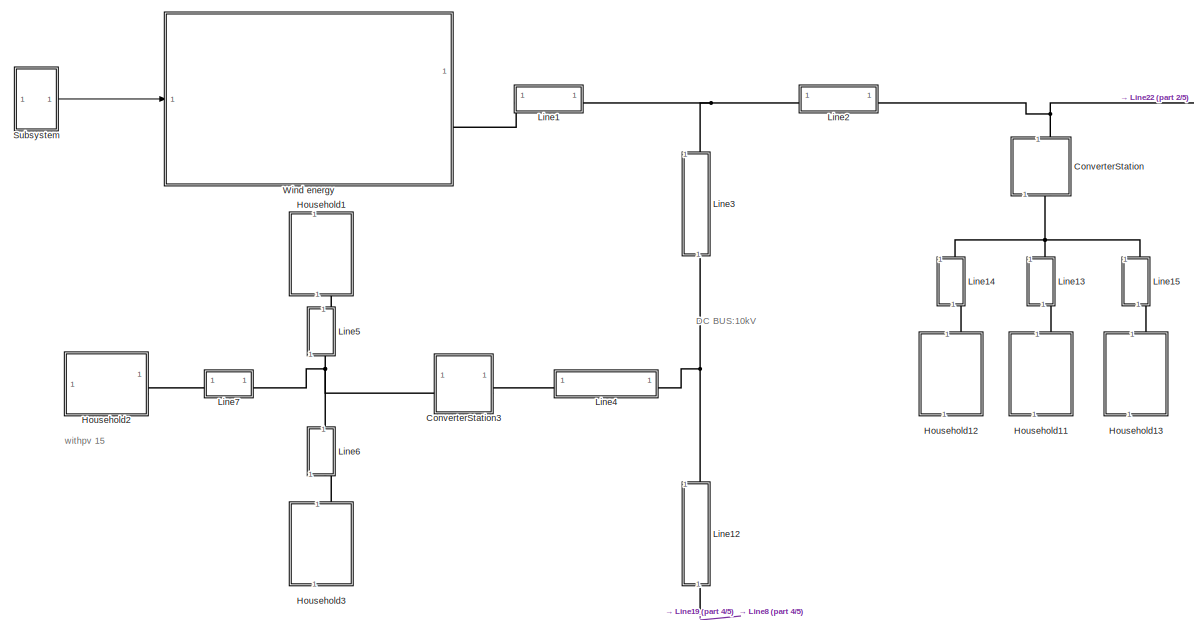
[diagram: root canvas - part 1/5, top center region]
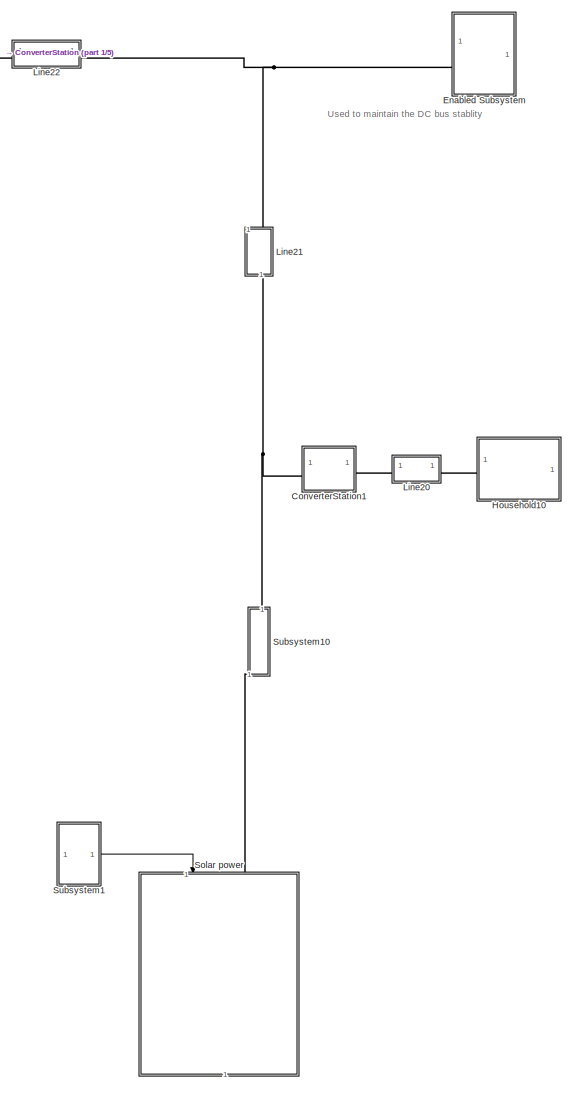
[diagram: root canvas - part 2/5, right side, full height]
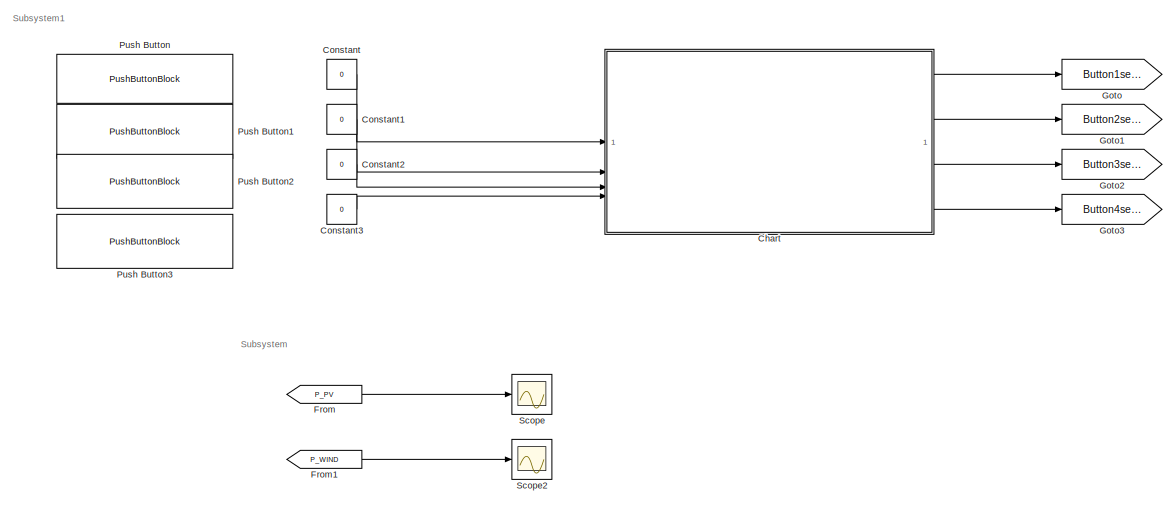
[diagram: root canvas - part 3/5, top left region]
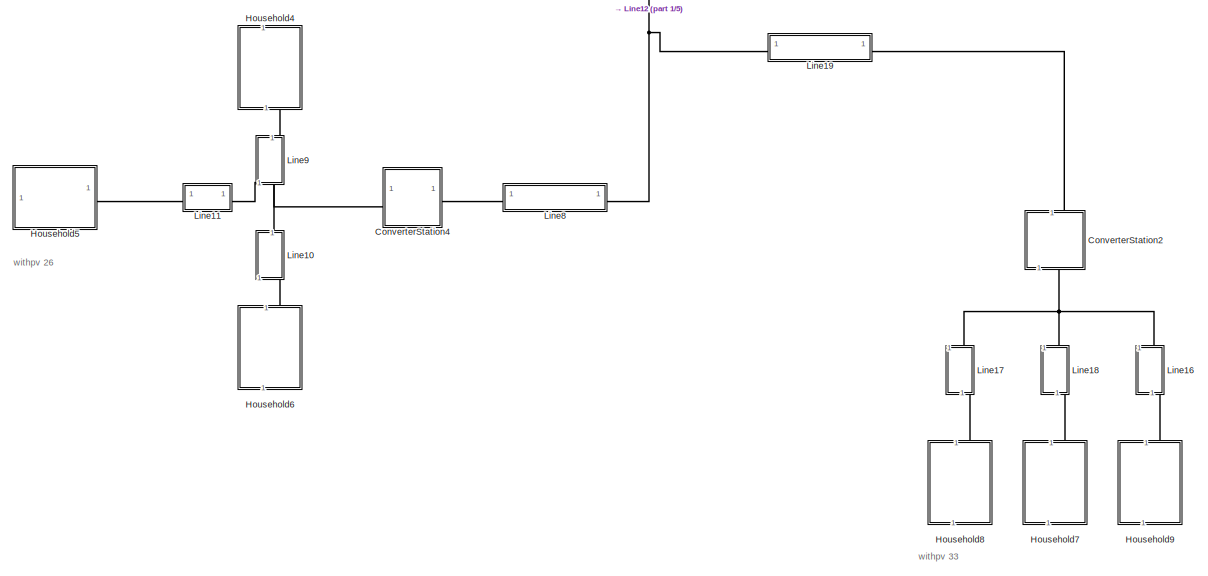
[diagram: root canvas - part 4/5, bottom center region]
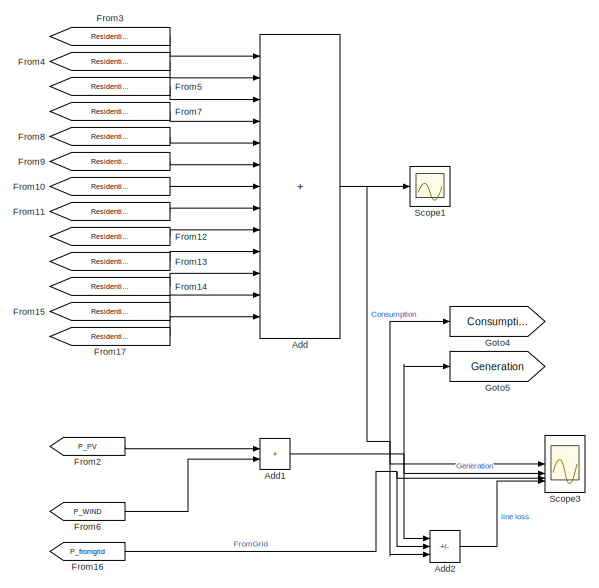
[diagram: root canvas - part 5/5, bottom left region]
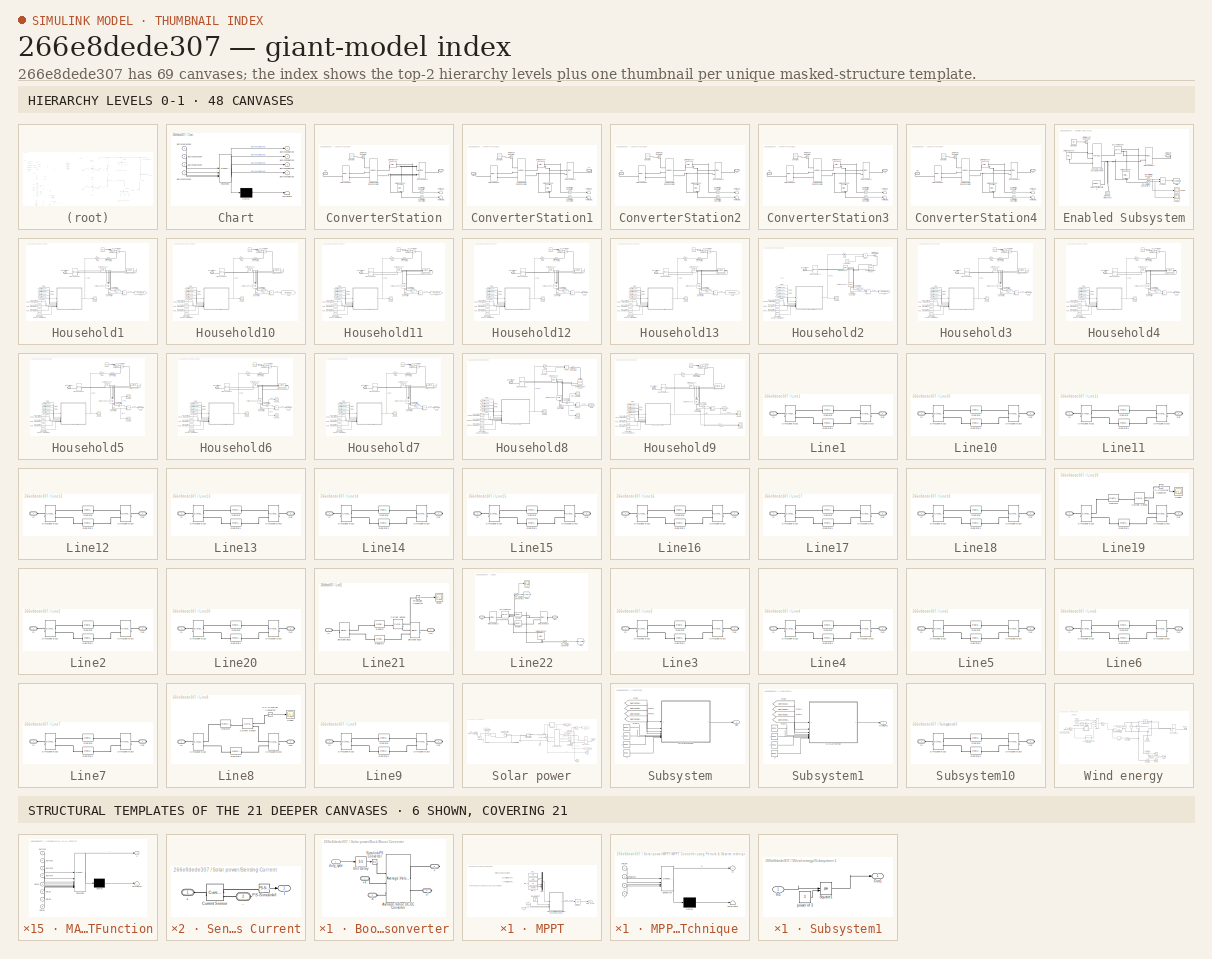
[diagram: thumbnail index - top-2 hierarchy levels (48 canvases) + 6 structural-template representatives of the remaining 21 canvases]
MODEL slx_266e8dede307
KIND model
CONFIG AbsTol = auto
CONFIG EnableMultiTasking = off
CONFIG FixedStep = 0.01
CONFIG MaxStep = auto
CONFIG MinStep = auto
CONFIG RelTol = 1e-3
CONFIG SampleTimeConstraint = Unconstrained
CONFIG SolverName = FixedStepAuto
CONFIG StartTime = 0.0
CONFIG StopTime = 48*4
BLOCK [Sum] Add
  IconShape = rectangular
  Inputs = +++++++++++++
BLOCK [Sum] Add1
  IconShape = rectangular
BLOCK [Sum] Add2
  IconShape = rectangular
  Inputs = ++-
BLOCK [SubSystem] Chart
  ErrorFcn = Stateflow.Translate.translate
  PermitHierarchicalResolution = ExplicitOnly
  SFBlockType = Chart
  TreatAsAtomicUnit = on
BLOCK [Outport] Chart/ Button1selected
BLOCK [Outport] Chart/ Button2selected
  Port = 2
BLOCK [Outport] Chart/ Button3selected
  Port = 3
BLOCK [Outport] Chart/ Button4selected
  Port = 4
BLOCK [Demux] Chart/ Demux 
  Outputs = 1
BLOCK [S-Function] Chart/ SFunction 
  EnableBusSupport = on
  FunctionName = sf_sfun
  PortCounts = [4 5]
  SFcnIsStateOwnerBlock = off
  SFunctionDeploymentMode = off
  Tag = Stateflow S-Function 4
BLOCK [Terminator] Chart/ Terminator 
BLOCK [Inport] Chart/Button1pressed
BLOCK [Inport] Chart/Button2pressed
  Port = 2
BLOCK [Inport] Chart/Button3pressed
  Port = 3
BLOCK [Inport] Chart/Button4pressed
  Port = 4
BLOCK [Constant] Constant
  OutDataTypeStr = boolean
  Value = 0
BLOCK [Constant] Constant1
  OutDataTypeStr = boolean
  Value = 0
BLOCK [Constant] Constant2
  OutDataTypeStr = boolean
  Value = 0
BLOCK [Constant] Constant3
  OutDataTypeStr = boolean
  Value = 0
BLOCK [SubSystem] ConverterStation
  NameLocation = right
BLOCK [Reference] ConverterStation/Average-Value DC-DC Converter  REF=ee_lib/Semiconductors &
Converters/Converters/Average-Value DC-DC
Converter
  SourceBlock = ee_lib/Semiconductors &\nConverters/Converters/Average-Value DC-DC\nConverter
  SourceType = Average-Value DC-DC\nConverter
BLOCK [Constant] ConverterStation/Constant
  Value = LV
BLOCK [Reference] ConverterStation/Current Sensor  REF=fl_lib/Electrical/Electrical Sensors/Current Sensor
  SourceBlock = fl_lib/Electrical/Electrical Sensors/Current Sensor
  SourceType = Current Sensor
BLOCK [PMIOPort] ConverterStation/LV
  NameLocation = top
  Side = Left
BLOCK [PMIOPort] ConverterStation/MV
  Port = 2
  Side = Right
BLOCK [Reference] ConverterStation/PS-Simulink Converter  REF=nesl_utility/PS-Simulink
Converter
  SourceBlock = nesl_utility/PS-Simulink\nConverter
  SourceType = PS-Simulink\nConverter
BLOCK [Reference] ConverterStation/PS-Simulink Converter1  REF=nesl_utility/PS-Simulink
Converter
  SourceBlock = nesl_utility/PS-Simulink\nConverter
  SourceType = PS-Simulink\nConverter
BLOCK [SimscapeBus] ConverterStation/Simscape Bus1
  HierarchyStrings = High;Low
BLOCK [SimscapeBus] ConverterStation/Simscape Bus2
  HierarchyStrings = High;Low
  NameLocation = top
BLOCK [Reference] ConverterStation/Simulink-PS Converter  REF=nesl_utility/Simulink-PS
Converter
  SourceBlock = nesl_utility/Simulink-PS\nConverter
  SourceType = Simulink-PS\nConverter
BLOCK [Terminator] ConverterStation/Terminator
BLOCK [Terminator] ConverterStation/Terminator1
BLOCK [Reference] ConverterStation/Voltage Sensor  REF=fl_lib/Electrical/Electrical Sensors/Voltage Sensor
  NameLocation = right
  SourceBlock = fl_lib/Electrical/Electrical Sensors/Voltage Sensor
  SourceType = Voltage Sensor
BLOCK [SubSystem] ConverterStation1
BLOCK [Reference] ConverterStation1/Average-Value DC-DC Converter  REF=ee_lib/Semiconductors &
Converters/Converters/Average-Value DC-DC
Converter
  SourceBlock = ee_lib/Semiconductors &\nConverters/Converters/Average-Value DC-DC\nConverter
  SourceType = Average-Value DC-DC\nConverter
BLOCK [Constant] ConverterStation1/Constant
  Value = LV
BLOCK [Reference] ConverterStation1/Current Sensor  REF=fl_lib/Electrical/Electrical Sensors/Current Sensor
  SourceBlock = fl_lib/Electrical/Electrical Sensors/Current Sensor
  SourceType = Current Sensor
BLOCK [PMIOPort] ConverterStation1/LV
  NameLocation = top
  Port = 2
  Side = Right
BLOCK [PMIOPort] ConverterStation1/MV
  Side = Left
BLOCK [Reference] ConverterStation1/PS-Simulink Converter  REF=nesl_utility/PS-Simulink
Converter
  SourceBlock = nesl_utility/PS-Simulink\nConverter
  SourceType = PS-Simulink\nConverter
BLOCK [Reference] ConverterStation1/PS-Simulink Converter1  REF=nesl_utility/PS-Simulink
Converter
  SourceBlock = nesl_utility/PS-Simulink\nConverter
  SourceType = PS-Simulink\nConverter
BLOCK [SimscapeBus] ConverterStation1/Simscape Bus1
  HierarchyStrings = High;Low
BLOCK [SimscapeBus] ConverterStation1/Simscape Bus2
  HierarchyStrings = High;Low
  NameLocation = top
BLOCK [Reference] ConverterStation1/Simulink-PS Converter  REF=nesl_utility/Simulink-PS
Converter
  SourceBlock = nesl_utility/Simulink-PS\nConverter
  SourceType = Simulink-PS\nConverter
BLOCK [Terminator] ConverterStation1/Terminator
BLOCK [Terminator] ConverterStation1/Terminator1
BLOCK [Reference] ConverterStation1/Voltage Sensor  REF=fl_lib/Electrical/Electrical Sensors/Voltage Sensor
  NameLocation = right
  SourceBlock = fl_lib/Electrical/Electrical Sensors/Voltage Sensor
  SourceType = Voltage Sensor
BLOCK [SubSystem] ConverterStation2
  NameLocation = right
BLOCK [Reference] ConverterStation2/Average-Value DC-DC Converter  REF=ee_lib/Semiconductors &
Converters/Converters/Average-Value DC-DC
Converter
  SourceBlock = ee_lib/Semiconductors &\nConverters/Converters/Average-Value DC-DC\nConverter
  SourceType = Average-Value DC-DC\nConverter
BLOCK [Constant] ConverterStation2/Constant
  Value = LV
BLOCK [Reference] ConverterStation2/Current Sensor  REF=fl_lib/Electrical/Electrical Sensors/Current Sensor
  SourceBlock = fl_lib/Electrical/Electrical Sensors/Current Sensor
  SourceType = Current Sensor
BLOCK [PMIOPort] ConverterStation2/LV
  NameLocation = top
  Side = Left
BLOCK [PMIOPort] ConverterStation2/MV
  Port = 2
  Side = Right
BLOCK [Reference] ConverterStation2/PS-Simulink Converter  REF=nesl_utility/PS-Simulink
Converter
  SourceBlock = nesl_utility/PS-Simulink\nConverter
  SourceType = PS-Simulink\nConverter
BLOCK [Reference] ConverterStation2/PS-Simulink Converter1  REF=nesl_utility/PS-Simulink
Converter
  SourceBlock = nesl_utility/PS-Simulink\nConverter
  SourceType = PS-Simulink\nConverter
BLOCK [SimscapeBus] ConverterStation2/Simscape Bus1
  HierarchyStrings = High;Low
BLOCK [SimscapeBus] ConverterStation2/Simscape Bus2
  HierarchyStrings = High;Low
  NameLocation = top
BLOCK [Reference] ConverterStation2/Simulink-PS Converter  REF=nesl_utility/Simulink-PS
Converter
  SourceBlock = nesl_utility/Simulink-PS\nConverter
  SourceType = Simulink-PS\nConverter
BLOCK [Terminator] ConverterStation2/Terminator
BLOCK [Terminator] ConverterStation2/Terminator1
BLOCK [Reference] ConverterStation2/Voltage Sensor  REF=fl_lib/Electrical/Electrical Sensors/Voltage Sensor
  NameLocation = right
  SourceBlock = fl_lib/Electrical/Electrical Sensors/Voltage Sensor
  SourceType = Voltage Sensor
BLOCK [SubSystem] ConverterStation3
BLOCK [Reference] ConverterStation3/Average-Value DC-DC Converter  REF=ee_lib/Semiconductors &
Converters/Converters/Average-Value DC-DC
Converter
  SourceBlock = ee_lib/Semiconductors &\nConverters/Converters/Average-Value DC-DC\nConverter
  SourceType = Average-Value DC-DC\nConverter
BLOCK [Constant] ConverterStation3/Constant
  Value = LV
BLOCK [Reference] ConverterStation3/Current Sensor  REF=fl_lib/Electrical/Electrical Sensors/Current Sensor
  SourceBlock = fl_lib/Electrical/Electrical Sensors/Current Sensor
  SourceType = Current Sensor
BLOCK [PMIOPort] ConverterStation3/LV
  NameLocation = top
  Side = Left
BLOCK [PMIOPort] ConverterStation3/MV
  Port = 2
  Side = Right
BLOCK [Reference] ConverterStation3/PS-Simulink Converter  REF=nesl_utility/PS-Simulink
Converter
  SourceBlock = nesl_utility/PS-Simulink\nConverter
  SourceType = PS-Simulink\nConverter
BLOCK [Reference] ConverterStation3/PS-Simulink Converter1  REF=nesl_utility/PS-Simulink
Converter
  SourceBlock = nesl_utility/PS-Simulink\nConverter
  SourceType = PS-Simulink\nConverter
BLOCK [SimscapeBus] ConverterStation3/Simscape Bus1
  HierarchyStrings = High;Low
BLOCK [SimscapeBus] ConverterStation3/Simscape Bus2
  HierarchyStrings = High;Low
  NameLocation = top
BLOCK [Reference] ConverterStation3/Simulink-PS Converter  REF=nesl_utility/Simulink-PS
Converter
  SourceBlock = nesl_utility/Simulink-PS\nConverter
  SourceType = Simulink-PS\nConverter
BLOCK [Terminator] ConverterStation3/Terminator
BLOCK [Terminator] ConverterStation3/Terminator1
BLOCK [Reference] ConverterStation3/Voltage Sensor  REF=fl_lib/Electrical/Electrical Sensors/Voltage Sensor
  NameLocation = right
  SourceBlock = fl_lib/Electrical/Electrical Sensors/Voltage Sensor
  SourceType = Voltage Sensor
BLOCK [SubSystem] ConverterStation4
BLOCK [Reference] ConverterStation4/Average-Value DC-DC Converter  REF=ee_lib/Semiconductors &
Converters/Converters/Average-Value DC-DC
Converter
  SourceBlock = ee_lib/Semiconductors &\nConverters/Converters/Average-Value DC-DC\nConverter
  SourceType = Average-Value DC-DC\nConverter
BLOCK [Constant] ConverterStation4/Constant
  Value = LV
BLOCK [Reference] ConverterStation4/Current Sensor  REF=fl_lib/Electrical/Electrical Sensors/Current Sensor
  SourceBlock = fl_lib/Electrical/Electrical Sensors/Current Sensor
  SourceType = Current Sensor
BLOCK [PMIOPort] ConverterStation4/LV
  NameLocation = top
  Side = Left
BLOCK [PMIOPort] ConverterStation4/MV
  Port = 2
  Side = Right
BLOCK [Reference] ConverterStation4/PS-Simulink Converter  REF=nesl_utility/PS-Simulink
Converter
  SourceBlock = nesl_utility/PS-Simulink\nConverter
  SourceType = PS-Simulink\nConverter
BLOCK [Reference] ConverterStation4/PS-Simulink Converter1  REF=nesl_utility/PS-Simulink
Converter
  SourceBlock = nesl_utility/PS-Simulink\nConverter
  SourceType = PS-Simulink\nConverter
BLOCK [SimscapeBus] ConverterStation4/Simscape Bus1
  HierarchyStrings = High;Low
BLOCK [SimscapeBus] ConverterStation4/Simscape Bus2
  HierarchyStrings = High;Low
  NameLocation = top
BLOCK [Reference] ConverterStation4/Simulink-PS Converter  REF=nesl_utility/Simulink-PS
Converter
  SourceBlock = nesl_utility/Simulink-PS\nConverter
  SourceType = Simulink-PS\nConverter
BLOCK [Terminator] ConverterStation4/Terminator
BLOCK [Terminator] ConverterStation4/Terminator1
BLOCK [Reference] ConverterStation4/Voltage Sensor  REF=fl_lib/Electrical/Electrical Sensors/Voltage Sensor
  NameLocation = right
  SourceBlock = fl_lib/Electrical/Electrical Sensors/Voltage Sensor
  SourceType = Voltage Sensor
BLOCK [SubSystem] Enabled Subsystem
  NameLocation = top
BLOCK [Reference] Enabled Subsystem/Average-Value DC-DC Converter  REF=ee_lib/Semiconductors &
Converters/Converters/Average-Value DC-DC
Converter
  SourceBlock = ee_lib/Semiconductors &\nConverters/Converters/Average-Value DC-DC\nConverter
  SourceType = Average-Value DC-DC\nConverter
BLOCK [Constant] Enabled Subsystem/Constant
  Value = MV
BLOCK [Reference] Enabled Subsystem/Current Sensor  REF=fl_lib/Electrical/Electrical Sensors/Current Sensor
  SourceBlock = fl_lib/Electrical/Electrical Sensors/Current Sensor
  SourceType = Current Sensor
BLOCK [Reference] Enabled Subsystem/Electrical Reference  REF=fl_lib/Electrical/Electrical Elements/Electrical Reference
  NameLocation = right
  SourceBlock = fl_lib/Electrical/Electrical Elements/Electrical Reference
  SourceType = Electrical Reference
BLOCK [Goto] Enabled Subsystem/Goto
  GotoTag = P_fromgrid
  TagVisibility = global
BLOCK [PMIOPort] Enabled Subsystem/Maingrid
  NameLocation = top
  Side = Right
BLOCK [Reference] Enabled Subsystem/PS-Simulink Converter  REF=nesl_utility/PS-Simulink
Converter
  SourceBlock = nesl_utility/PS-Simulink\nConverter
  SourceType = PS-Simulink\nConverter
BLOCK [Reference] Enabled Subsystem/PS-Simulink Converter1  REF=nesl_utility/PS-Simulink
Converter
  SourceBlock = nesl_utility/PS-Simulink\nConverter
  SourceType = PS-Simulink\nConverter
BLOCK [Product] Enabled Subsystem/Product
BLOCK [Scope] Enabled Subsystem/Scope
  Floating = off
  NumInputPorts = 1
  ScopeSpecificationString = Simulink.scopes.TimeScopeBlockCfg('CurrentConfiguration', extmgr.ConfigurationSet(extmgr.Configuration('Core','General UI',true),extmgr.Configuration('Core','Source UI',true),extmgr.Configuration('Sources','WiredSimulink',true,'DataLoggingVariableName','ScopeData1'),extmgr.Configuration('Visuals','Time Domain',true,'SerializedDisplays',{struct('MinYLimReal','-6548.04684','MaxYLimReal','58264.81243...<+1477ch>
BLOCK [Scope] Enabled Subsystem/Scope1
  Floating = off
  NumInputPorts = 1
  ScopeSpecificationString = Simulink.scopes.TimeScopeBlockCfg('CurrentConfiguration', extmgr.ConfigurationSet(extmgr.Configuration('Core','General UI',true),extmgr.Configuration('Core','Source UI',true),extmgr.Configuration('Sources','WiredSimulink',true,'DataLoggingVariableName','ScopeData1'),extmgr.Configuration('Visuals','Time Domain',true,'SerializedDisplays',{struct('MinYLimReal','9000.00000','MaxYLimReal','11000.00000'...<+1407ch>
BLOCK [SimscapeBus] Enabled Subsystem/Simscape Bus1
  HierarchyStrings = High;Low
BLOCK [Reference] Enabled Subsystem/Simulink-PS Converter  REF=nesl_utility/Simulink-PS
Converter
  SourceBlock = nesl_utility/Simulink-PS\nConverter
  SourceType = Simulink-PS\nConverter
BLOCK [Reference] Enabled Subsystem/Solver Configuration  REF=nesl_utility/Solver
Configuration
  SourceBlock = nesl_utility/Solver\nConfiguration
  SourceType = Solver\nConfiguration
BLOCK [Reference] Enabled Subsystem/Voltage Sensor  REF=fl_lib/Electrical/Electrical Sensors/Voltage Sensor
  NameLocation = right
  SourceBlock = fl_lib/Electrical/Electrical Sensors/Voltage Sensor
  SourceType = Voltage Sensor
BLOCK [Reference] Enabled Subsystem/Voltage Source  REF=ee_lib/Sources/Voltage Source
  NameLocation = right
  SourceBlock = ee_lib/Sources/Voltage Source
  SourceType = Voltage Source
BLOCK [From] From
  GotoTag = P_PV
  TagVisibility = global
BLOCK [From] From1
  GotoTag = P_WIND
  TagVisibility = global
BLOCK [From] From10
  GotoTag = Residential_power7
  TagVisibility = global
BLOCK [From] From11
  GotoTag = Residential_power8
  TagVisibility = global
BLOCK [From] From12
  GotoTag = Residential_power9
  TagVisibility = global
BLOCK [From] From13
  GotoTag = Residential_power11
  TagVisibility = global
BLOCK [From] From14
  GotoTag = Residential_power12
  TagVisibility = global
BLOCK [From] From15
  GotoTag = Residential_power13
  TagVisibility = global
BLOCK [From] From16
  GotoTag = P_fromgrid
  TagVisibility = global
BLOCK [From] From17
  GotoTag = Residential_power14
  TagVisibility = global
BLOCK [From] From2
  GotoTag = P_PV
  TagVisibility = global
BLOCK [From] From3
  GotoTag = Residential_power1
  TagVisibility = global
BLOCK [From] From4
  GotoTag = Residential_power2
  TagVisibility = global
BLOCK [From] From5
  GotoTag = Residential_power3
  TagVisibility = global
BLOCK [From] From6
  GotoTag = P_WIND
  TagVisibility = global
BLOCK [From] From7
  GotoTag = Residential_power4
  TagVisibility = global
BLOCK [From] From8
  GotoTag = Residential_power5
  TagVisibility = global
BLOCK [From] From9
  GotoTag = Residential_power6
  TagVisibility = global
BLOCK [Goto] Goto
  GotoTag = Button1selected
  TagVisibility = global
BLOCK [Goto] Goto1
  GotoTag = Button2selected
  TagVisibility = global
BLOCK [Goto] Goto2
  GotoTag = Button3selected
  TagVisibility = global
BLOCK [Goto] Goto3
  GotoTag = Button4selected
  TagVisibility = global
BLOCK [Goto] Goto4
  GotoTag = Consumption
  TagVisibility = global
BLOCK [Goto] Goto5
  GotoTag = Generation
  TagVisibility = global
BLOCK [SubSystem] Household1
  NameLocation = left
BLOCK [Reference] Household1/Current Sensor  REF=fl_lib/Electrical/Electrical Sensors/Current Sensor
  SourceBlock = fl_lib/Electrical/Electrical Sensors/Current Sensor
  SourceType = Current Sensor
BLOCK [From] Household1/From
  GotoTag = Button1selected
  TagVisibility = global
BLOCK [From] Household1/From1
  GotoTag = Button2selected
  TagVisibility = global
BLOCK [From] Household1/From2
  GotoTag = Button3selected
  TagVisibility = global
BLOCK [From] Household1/From3
  GotoTag = Button4selected
  TagVisibility = global
BLOCK [Gain] Household1/Gain
  Gain = Scaling_factor
BLOCK [Goto] Household1/Goto
  GotoTag = Residential_power1
  TagVisibility = global
BLOCK [PMIOPort] Household1/IndustrialOut
  Side = Right
BLOCK [SubSystem] Household1/MATLAB Function
  ErrorFcn = Stateflow.Translate.translate
  LibrarySourceBlock = simulink/User-Defined\nFunctions/MATLAB Function
  PermitHierarchicalResolution = ExplicitOnly
  SFBlockType = MATLAB Function
  TreatAsAtomicUnit = on
BLOCK [Demux] Household1/MATLAB Function/ Demux 
  Outputs = 1
BLOCK [S-Function] Household1/MATLAB Function/ SFunction 
  EnableBusSupport = on
  FunctionName = sf_sfun
  PortCounts = [8 2]
  SFcnIsStateOwnerBlock = off
  SFunctionDeploymentMode = off
  Tag = Stateflow S-Function 5
BLOCK [Terminator] Household1/MATLAB Function/ Terminator 
BLOCK [Inport] Household1/MATLAB Function/button1
BLOCK [Inport] Household1/MATLAB Function/button2
  Port = 2
BLOCK [Inport] Household1/MATLAB Function/button3
  Port = 3
BLOCK [Inport] Household1/MATLAB Function/button4
  Port = 4
BLOCK [Inport] Household1/MATLAB Function/data1
  Port = 5
BLOCK [Inport] Household1/MATLAB Function/data2
  Port = 6
BLOCK [Inport] Household1/MATLAB Function/data3
  Port = 7
BLOCK [Inport] Household1/MATLAB Function/data4
  Port = 8
BLOCK [Outport] Household1/MATLAB Function/y
BLOCK [Reference] Household1/PS Divide  REF=fl_lib/Physical Signals/Functions/PS Divide
  SourceBlock = fl_lib/Physical Signals/Functions/PS Divide
  SourceType = PS Divide
BLOCK [Reference] Household1/PS Product  REF=fl_lib/Physical Signals/Functions/PS Product
  SourceBlock = fl_lib/Physical Signals/Functions/PS Product
  SourceType = PS Product
BLOCK [Reference] Household1/PS-Simulink Converter  REF=nesl_utility/PS-Simulink
Converter
  SourceBlock = nesl_utility/PS-Simulink\nConverter
  SourceType = PS-Simulink\nConverter
BLOCK [Reference] Household1/PS-Simulink Converter1  REF=nesl_utility/PS-Simulink
Converter
  SourceBlock = nesl_utility/PS-Simulink\nConverter
  SourceType = PS-Simulink\nConverter
BLOCK [Product] Household1/Product
BLOCK [Reference] Household1/Repeating Sequence Interpolated  REF=simulink/Sources/Repeating
Sequence
Interpolated
  SourceBlock = simulink/Sources/Repeating\nSequence\nInterpolated
  SourceType = Repeating Sequence Interpolated
BLOCK [Reference] Household1/Repeating Sequence Interpolated1  REF=simulink/Sources/Repeating
Sequence
Interpolated
  SourceBlock = simulink/Sources/Repeating\nSequence\nInterpolated
  SourceType = Repeating Sequence Interpolated
BLOCK [Reference] Household1/Repeating Sequence Interpolated2  REF=simulink/Sources/Repeating
Sequence
Interpolated
  SourceBlock = simulink/Sources/Repeating\nSequence\nInterpolated
  SourceType = Repeating Sequence Interpolated
BLOCK [Reference] Household1/Repeating Sequence Interpolated3  REF=simulink/Sources/Repeating
Sequence
Interpolated
  SourceBlock = simulink/Sources/Repeating\nSequence\nInterpolated
  SourceType = Repeating Sequence Interpolated
BLOCK [Scope] Household1/Scope
  Floating = off
  NumInputPorts = 1
  ScopeSpecificationString = Simulink.scopes.TimeScopeBlockCfg('CurrentConfiguration', extmgr.ConfigurationSet(extmgr.Configuration('Core','General UI',true),extmgr.Configuration('Core','Source UI',true),extmgr.Configuration('Sources','WiredSimulink',true,'DataLoggingVariableName','ScopeData1'),extmgr.Configuration('Visuals','Time Domain',true,'SerializedDisplays',{struct('MinYLimReal','-499.54464','MaxYLimReal','5406.4776','...<+1476ch>
BLOCK [SimscapeBus] Household1/Simscape Bus1
  HierarchyStrings = High;Low
  NameLocation = top
BLOCK [Reference] Household1/Simulink-PS Converter1  REF=nesl_utility/Simulink-PS
Converter
  SourceBlock = nesl_utility/Simulink-PS\nConverter
  SourceType = Simulink-PS\nConverter
BLOCK [Reference] Household1/Variable Resistor  REF=fl_lib/Electrical/Electrical Elements/Variable Resistor
  SourceBlock = fl_lib/Electrical/Electrical Elements/Variable Resistor
  SourceType = Variable Resistor
BLOCK [Reference] Household1/Vnom  REF=fl_lib/Physical Signals/Sources/PS Constant
  SourceBlock = fl_lib/Physical Signals/Sources/PS Constant
  SourceType = PS Constant
BLOCK [Reference] Household1/Voltage Sensor  REF=fl_lib/Electrical/Electrical Sensors/Voltage Sensor
  NameLocation = right
  SourceBlock = fl_lib/Electrical/Electrical Sensors/Voltage Sensor
  SourceType = Voltage Sensor
BLOCK [SubSystem] Household10
  NameLocation = top
BLOCK [Reference] Household10/Current Sensor  REF=fl_lib/Electrical/Electrical Sensors/Current Sensor
  SourceBlock = fl_lib/Electrical/Electrical Sensors/Current Sensor
  SourceType = Current Sensor
BLOCK [From] Household10/From
  GotoTag = Button1selected
  TagVisibility = global
BLOCK [From] Household10/From1
  GotoTag = Button2selected
  TagVisibility = global
BLOCK [From] Household10/From2
  GotoTag = Button3selected
  TagVisibility = global
BLOCK [From] Household10/From3
  GotoTag = Button4selected
  TagVisibility = global
BLOCK [Gain] Household10/Gain
  Gain = Scaling_factor
BLOCK [Goto] Household10/Goto
  GotoTag = Residential_power14
  TagVisibility = global
BLOCK [PMIOPort] Household10/IndustrialOut
  Side = Right
BLOCK [SubSystem] Household10/MATLAB Function
  ErrorFcn = Stateflow.Translate.translate
  LibrarySourceBlock = simulink/User-Defined\nFunctions/MATLAB Function
  PermitHierarchicalResolution = ExplicitOnly
  SFBlockType = MATLAB Function
  TreatAsAtomicUnit = on
BLOCK [Demux] Household10/MATLAB Function/ Demux 
  Outputs = 1
BLOCK [S-Function] Household10/MATLAB Function/ SFunction 
  EnableBusSupport = on
  FunctionName = sf_sfun
  PortCounts = [8 2]
  SFcnIsStateOwnerBlock = off
  SFunctionDeploymentMode = off
  Tag = Stateflow S-Function 1
BLOCK [Terminator] Household10/MATLAB Function/ Terminator 
BLOCK [Inport] Household10/MATLAB Function/button1
BLOCK [Inport] Household10/MATLAB Function/button2
  Port = 2
BLOCK [Inport] Household10/MATLAB Function/button3
  Port = 3
BLOCK [Inport] Household10/MATLAB Function/button4
  Port = 4
BLOCK [Inport] Household10/MATLAB Function/data1
  Port = 5
BLOCK [Inport] Household10/MATLAB Function/data2
  Port = 6
BLOCK [Inport] Household10/MATLAB Function/data3
  Port = 7
BLOCK [Inport] Household10/MATLAB Function/data4
  Port = 8
BLOCK [Outport] Household10/MATLAB Function/y
BLOCK [Reference] Household10/PS Divide  REF=fl_lib/Physical Signals/Functions/PS Divide
  SourceBlock = fl_lib/Physical Signals/Functions/PS Divide
  SourceType = PS Divide
BLOCK [Reference] Household10/PS Product  REF=fl_lib/Physical Signals/Functions/PS Product
  SourceBlock = fl_lib/Physical Signals/Functions/PS Product
  SourceType = PS Product
BLOCK [Reference] Household10/PS-Simulink Converter  REF=nesl_utility/PS-Simulink
Converter
  SourceBlock = nesl_utility/PS-Simulink\nConverter
  SourceType = PS-Simulink\nConverter
BLOCK [Reference] Household10/PS-Simulink Converter1  REF=nesl_utility/PS-Simulink
Converter
  SourceBlock = nesl_utility/PS-Simulink\nConverter
  SourceType = PS-Simulink\nConverter
BLOCK [Product] Household10/Product
BLOCK [Reference] Household10/Repeating Sequence Interpolated  REF=simulink/Sources/Repeating
Sequence
Interpolated
  SourceBlock = simulink/Sources/Repeating\nSequence\nInterpolated
  SourceType = Repeating Sequence Interpolated
BLOCK [Reference] Household10/Repeating Sequence Interpolated1  REF=simulink/Sources/Repeating
Sequence
Interpolated
  SourceBlock = simulink/Sources/Repeating\nSequence\nInterpolated
  SourceType = Repeating Sequence Interpolated
BLOCK [Reference] Household10/Repeating Sequence Interpolated2  REF=simulink/Sources/Repeating
Sequence
Interpolated
  SourceBlock = simulink/Sources/Repeating\nSequence\nInterpolated
  SourceType = Repeating Sequence Interpolated
BLOCK [Reference] Household10/Repeating Sequence Interpolated3  REF=simulink/Sources/Repeating
Sequence
Interpolated
  SourceBlock = simulink/Sources/Repeating\nSequence\nInterpolated
  SourceType = Repeating Sequence Interpolated
BLOCK [Scope] Household10/Scope
  Floating = off
  NumInputPorts = 1
  ScopeSpecificationString = Simulink.scopes.TimeScopeBlockCfg('CurrentConfiguration', extmgr.ConfigurationSet(extmgr.Configuration('Core','General UI',true),extmgr.Configuration('Core','Source UI',true),extmgr.Configuration('Sources','WiredSimulink',true,'DataLoggingVariableName','ScopeData1'),extmgr.Configuration('Visuals','Time Domain',true,'SerializedDisplays',{struct('MinYLimReal','0.5','MaxYLimReal','5.5','YLabelReal','...<+1489ch>  <repeated x8 — deduplicated; at blocks: Scope>
BLOCK [SimscapeBus] Household10/Simscape Bus1
  HierarchyStrings = High;Low
  NameLocation = top
BLOCK [Reference] Household10/Simulink-PS Converter1  REF=nesl_utility/Simulink-PS
Converter
  SourceBlock = nesl_utility/Simulink-PS\nConverter
  SourceType = Simulink-PS\nConverter
BLOCK [Reference] Household10/Variable Resistor  REF=fl_lib/Electrical/Electrical Elements/Variable Resistor
  SourceBlock = fl_lib/Electrical/Electrical Elements/Variable Resistor
  SourceType = Variable Resistor
BLOCK [Reference] Household10/Vnom  REF=fl_lib/Physical Signals/Sources/PS Constant
  SourceBlock = fl_lib/Physical Signals/Sources/PS Constant
  SourceType = PS Constant
BLOCK [Reference] Household10/Voltage Sensor  REF=fl_lib/Electrical/Electrical Sensors/Voltage Sensor
  NameLocation = right
  SourceBlock = fl_lib/Electrical/Electrical Sensors/Voltage Sensor
  SourceType = Voltage Sensor
BLOCK [SubSystem] Household11
  NameLocation = right
BLOCK [Reference] Household11/Current Sensor  REF=fl_lib/Electrical/Electrical Sensors/Current Sensor
  SourceBlock = fl_lib/Electrical/Electrical Sensors/Current Sensor
  SourceType = Current Sensor
BLOCK [From] Household11/From
  GotoTag = Button1selected
  TagVisibility = global
BLOCK [From] Household11/From1
  GotoTag = Button2selected
  TagVisibility = global
BLOCK [From] Household11/From2
  GotoTag = Button3selected
  TagVisibility = global
BLOCK [From] Household11/From3
  GotoTag = Button4selected
  TagVisibility = global
BLOCK [Gain] Household11/Gain
  Gain = Scaling_factor
BLOCK [Goto] Household11/Goto
  GotoTag = Residential_power11
  TagVisibility = global
BLOCK [PMIOPort] Household11/IndustrialOut
  Side = Right
BLOCK [SubSystem] Household11/MATLAB Function
  ErrorFcn = Stateflow.Translate.translate
  LibrarySourceBlock = simulink/User-Defined\nFunctions/MATLAB Function
  PermitHierarchicalResolution = ExplicitOnly
  SFBlockType = MATLAB Function
  TreatAsAtomicUnit = on
BLOCK [Demux] Household11/MATLAB Function/ Demux 
  Outputs = 1
BLOCK [S-Function] Household11/MATLAB Function/ SFunction 
  EnableBusSupport = on
  FunctionName = sf_sfun
  PortCounts = [8 2]
  SFcnIsStateOwnerBlock = off
  SFunctionDeploymentMode = off
  Tag = Stateflow S-Function 14
BLOCK [Terminator] Household11/MATLAB Function/ Terminator 
BLOCK [Inport] Household11/MATLAB Function/button1
BLOCK [Inport] Household11/MATLAB Function/button2
  Port = 2
BLOCK [Inport] Household11/MATLAB Function/button3
  Port = 3
BLOCK [Inport] Household11/MATLAB Function/button4
  Port = 4
BLOCK [Inport] Household11/MATLAB Function/data1
  Port = 5
BLOCK [Inport] Household11/MATLAB Function/data2
  Port = 6
BLOCK [Inport] Household11/MATLAB Function/data3
  Port = 7
BLOCK [Inport] Household11/MATLAB Function/data4
  Port = 8
BLOCK [Outport] Household11/MATLAB Function/y
BLOCK [Reference] Household11/PS Divide  REF=fl_lib/Physical Signals/Functions/PS Divide
  SourceBlock = fl_lib/Physical Signals/Functions/PS Divide
  SourceType = PS Divide
BLOCK [Reference] Household11/PS Product  REF=fl_lib/Physical Signals/Functions/PS Product
  SourceBlock = fl_lib/Physical Signals/Functions/PS Product
  SourceType = PS Product
BLOCK [Reference] Household11/PS-Simulink Converter  REF=nesl_utility/PS-Simulink
Converter
  SourceBlock = nesl_utility/PS-Simulink\nConverter
  SourceType = PS-Simulink\nConverter
BLOCK [Reference] Household11/PS-Simulink Converter1  REF=nesl_utility/PS-Simulink
Converter
  SourceBlock = nesl_utility/PS-Simulink\nConverter
  SourceType = PS-Simulink\nConverter
BLOCK [Product] Household11/Product
BLOCK [Reference] Household11/Repeating Sequence Interpolated  REF=simulink/Sources/Repeating
Sequence
Interpolated
  SourceBlock = simulink/Sources/Repeating\nSequence\nInterpolated
  SourceType = Repeating Sequence Interpolated
BLOCK [Reference] Household11/Repeating Sequence Interpolated1  REF=simulink/Sources/Repeating
Sequence
Interpolated
  SourceBlock = simulink/Sources/Repeating\nSequence\nInterpolated
  SourceType = Repeating Sequence Interpolated
BLOCK [Reference] Household11/Repeating Sequence Interpolated2  REF=simulink/Sources/Repeating
Sequence
Interpolated
  SourceBlock = simulink/Sources/Repeating\nSequence\nInterpolated
  SourceType = Repeating Sequence Interpolated
BLOCK [Reference] Household11/Repeating Sequence Interpolated3  REF=simulink/Sources/Repeating
Sequence
Interpolated
  SourceBlock = simulink/Sources/Repeating\nSequence\nInterpolated
  SourceType = Repeating Sequence Interpolated
BLOCK [Scope] Household11/Scope
  Floating = off
  NumInputPorts = 1
BLOCK [SimscapeBus] Household11/Simscape Bus1
  HierarchyStrings = High;Low
  NameLocation = top
BLOCK [Reference] Household11/Simulink-PS Converter1  REF=nesl_utility/Simulink-PS
Converter
  SourceBlock = nesl_utility/Simulink-PS\nConverter
  SourceType = Simulink-PS\nConverter
BLOCK [Reference] Household11/Variable Resistor  REF=fl_lib/Electrical/Electrical Elements/Variable Resistor
  SourceBlock = fl_lib/Electrical/Electrical Elements/Variable Resistor
  SourceType = Variable Resistor
BLOCK [Reference] Household11/Vnom  REF=fl_lib/Physical Signals/Sources/PS Constant
  SourceBlock = fl_lib/Physical Signals/Sources/PS Constant
  SourceType = PS Constant
BLOCK [Reference] Household11/Voltage Sensor  REF=fl_lib/Electrical/Electrical Sensors/Voltage Sensor
  NameLocation = right
  SourceBlock = fl_lib/Electrical/Electrical Sensors/Voltage Sensor
  SourceType = Voltage Sensor
BLOCK [SubSystem] Household12
  NameLocation = right
BLOCK [Reference] Household12/Current Sensor  REF=fl_lib/Electrical/Electrical Sensors/Current Sensor
  SourceBlock = fl_lib/Electrical/Electrical Sensors/Current Sensor
  SourceType = Current Sensor
BLOCK [From] Household12/From
  GotoTag = Button1selected
  TagVisibility = global
BLOCK [From] Household12/From1
  GotoTag = Button2selected
  TagVisibility = global
BLOCK [From] Household12/From2
  GotoTag = Button3selected
  TagVisibility = global
BLOCK [From] Household12/From3
  GotoTag = Button4selected
  TagVisibility = global
BLOCK [Gain] Household12/Gain
  Gain = Scaling_factor
BLOCK [Goto] Household12/Goto
  GotoTag = Residential_power12
  TagVisibility = global
BLOCK [PMIOPort] Household12/IndustrialOut
  Side = Right
BLOCK [SubSystem] Household12/MATLAB Function
  ErrorFcn = Stateflow.Translate.translate
  LibrarySourceBlock = simulink/User-Defined\nFunctions/MATLAB Function
  PermitHierarchicalResolution = ExplicitOnly
  SFBlockType = MATLAB Function
  TreatAsAtomicUnit = on
BLOCK [Demux] Household12/MATLAB Function/ Demux 
  Outputs = 1
BLOCK [S-Function] Household12/MATLAB Function/ SFunction 
  EnableBusSupport = on
  FunctionName = sf_sfun
  PortCounts = [8 2]
  SFcnIsStateOwnerBlock = off
  SFunctionDeploymentMode = off
  Tag = Stateflow S-Function 15
BLOCK [Terminator] Household12/MATLAB Function/ Terminator 
BLOCK [Inport] Household12/MATLAB Function/button1
BLOCK [Inport] Household12/MATLAB Function/button2
  Port = 2
BLOCK [Inport] Household12/MATLAB Function/button3
  Port = 3
BLOCK [Inport] Household12/MATLAB Function/button4
  Port = 4
BLOCK [Inport] Household12/MATLAB Function/data1
  Port = 5
BLOCK [Inport] Household12/MATLAB Function/data2
  Port = 6
BLOCK [Inport] Household12/MATLAB Function/data3
  Port = 7
BLOCK [Inport] Household12/MATLAB Function/data4
  Port = 8
BLOCK [Outport] Household12/MATLAB Function/y
BLOCK [Reference] Household12/PS Divide  REF=fl_lib/Physical Signals/Functions/PS Divide
  SourceBlock = fl_lib/Physical Signals/Functions/PS Divide
  SourceType = PS Divide
BLOCK [Reference] Household12/PS Product  REF=fl_lib/Physical Signals/Functions/PS Product
  SourceBlock = fl_lib/Physical Signals/Functions/PS Product
  SourceType = PS Product
BLOCK [Reference] Household12/PS-Simulink Converter  REF=nesl_utility/PS-Simulink
Converter
  SourceBlock = nesl_utility/PS-Simulink\nConverter
  SourceType = PS-Simulink\nConverter
BLOCK [Reference] Household12/PS-Simulink Converter1  REF=nesl_utility/PS-Simulink
Converter
  SourceBlock = nesl_utility/PS-Simulink\nConverter
  SourceType = PS-Simulink\nConverter
BLOCK [Product] Household12/Product
BLOCK [Reference] Household12/Repeating Sequence Interpolated  REF=simulink/Sources/Repeating
Sequence
Interpolated
  SourceBlock = simulink/Sources/Repeating\nSequence\nInterpolated
  SourceType = Repeating Sequence Interpolated
BLOCK [Reference] Household12/Repeating Sequence Interpolated1  REF=simulink/Sources/Repeating
Sequence
Interpolated
  SourceBlock = simulink/Sources/Repeating\nSequence\nInterpolated
  SourceType = Repeating Sequence Interpolated
BLOCK [Reference] Household12/Repeating Sequence Interpolated2  REF=simulink/Sources/Repeating
Sequence
Interpolated
  SourceBlock = simulink/Sources/Repeating\nSequence\nInterpolated
  SourceType = Repeating Sequence Interpolated
BLOCK [Reference] Household12/Repeating Sequence Interpolated3  REF=simulink/Sources/Repeating
Sequence
Interpolated
  SourceBlock = simulink/Sources/Repeating\nSequence\nInterpolated
  SourceType = Repeating Sequence Interpolated
BLOCK [Scope] Household12/Scope
  Floating = off
  NumInputPorts = 1
BLOCK [SimscapeBus] Household12/Simscape Bus1
  HierarchyStrings = High;Low
  NameLocation = top
BLOCK [Reference] Household12/Simulink-PS Converter1  REF=nesl_utility/Simulink-PS
Converter
  SourceBlock = nesl_utility/Simulink-PS\nConverter
  SourceType = Simulink-PS\nConverter
BLOCK [Reference] Household12/Variable Resistor  REF=fl_lib/Electrical/Electrical Elements/Variable Resistor
  SourceBlock = fl_lib/Electrical/Electrical Elements/Variable Resistor
  SourceType = Variable Resistor
BLOCK [Reference] Household12/Vnom  REF=fl_lib/Physical Signals/Sources/PS Constant
  SourceBlock = fl_lib/Physical Signals/Sources/PS Constant
  SourceType = PS Constant
BLOCK [Reference] Household12/Voltage Sensor  REF=fl_lib/Electrical/Electrical Sensors/Voltage Sensor
  NameLocation = right
  SourceBlock = fl_lib/Electrical/Electrical Sensors/Voltage Sensor
  SourceType = Voltage Sensor
BLOCK [SubSystem] Household13
  NameLocation = right
BLOCK [Reference] Household13/Current Sensor  REF=fl_lib/Electrical/Electrical Sensors/Current Sensor
  SourceBlock = fl_lib/Electrical/Electrical Sensors/Current Sensor
  SourceType = Current Sensor
BLOCK [From] Household13/From
  GotoTag = Button1selected
  TagVisibility = global
BLOCK [From] Household13/From1
  GotoTag = Button2selected
  TagVisibility = global
BLOCK [From] Household13/From2
  GotoTag = Button3selected
  TagVisibility = global
BLOCK [From] Household13/From3
  GotoTag = Button4selected
  TagVisibility = global
BLOCK [Gain] Household13/Gain
  Gain = Scaling_factor
BLOCK [Goto] Household13/Goto
  GotoTag = Residential_power13
  TagVisibility = global
BLOCK [PMIOPort] Household13/IndustrialOut
  Side = Right
BLOCK [SubSystem] Household13/MATLAB Function
  ErrorFcn = Stateflow.Translate.translate
  LibrarySourceBlock = simulink/User-Defined\nFunctions/MATLAB Function
  PermitHierarchicalResolution = ExplicitOnly
  SFBlockType = MATLAB Function
  TreatAsAtomicUnit = on
BLOCK [Demux] Household13/MATLAB Function/ Demux 
  Outputs = 1
BLOCK [S-Function] Household13/MATLAB Function/ SFunction 
  EnableBusSupport = on
  FunctionName = sf_sfun
  PortCounts = [8 2]
  SFcnIsStateOwnerBlock = off
  SFunctionDeploymentMode = off
  Tag = Stateflow S-Function 16
BLOCK [Terminator] Household13/MATLAB Function/ Terminator 
BLOCK [Inport] Household13/MATLAB Function/button1
BLOCK [Inport] Household13/MATLAB Function/button2
  Port = 2
BLOCK [Inport] Household13/MATLAB Function/button3
  Port = 3
BLOCK [Inport] Household13/MATLAB Function/button4
  Port = 4
BLOCK [Inport] Household13/MATLAB Function/data1
  Port = 5
BLOCK [Inport] Household13/MATLAB Function/data2
  Port = 6
BLOCK [Inport] Household13/MATLAB Function/data3
  Port = 7
BLOCK [Inport] Household13/MATLAB Function/data4
  Port = 8
BLOCK [Outport] Household13/MATLAB Function/y
BLOCK [Reference] Household13/PS Divide  REF=fl_lib/Physical Signals/Functions/PS Divide
  SourceBlock = fl_lib/Physical Signals/Functions/PS Divide
  SourceType = PS Divide
BLOCK [Reference] Household13/PS Product  REF=fl_lib/Physical Signals/Functions/PS Product
  SourceBlock = fl_lib/Physical Signals/Functions/PS Product
  SourceType = PS Product
BLOCK [Reference] Household13/PS-Simulink Converter  REF=nesl_utility/PS-Simulink
Converter
  SourceBlock = nesl_utility/PS-Simulink\nConverter
  SourceType = PS-Simulink\nConverter
BLOCK [Reference] Household13/PS-Simulink Converter1  REF=nesl_utility/PS-Simulink
Converter
  SourceBlock = nesl_utility/PS-Simulink\nConverter
  SourceType = PS-Simulink\nConverter
BLOCK [Product] Household13/Product
BLOCK [Reference] Household13/Repeating Sequence Interpolated  REF=simulink/Sources/Repeating
Sequence
Interpolated
  SourceBlock = simulink/Sources/Repeating\nSequence\nInterpolated
  SourceType = Repeating Sequence Interpolated
BLOCK [Reference] Household13/Repeating Sequence Interpolated1  REF=simulink/Sources/Repeating
Sequence
Interpolated
  SourceBlock = simulink/Sources/Repeating\nSequence\nInterpolated
  SourceType = Repeating Sequence Interpolated
BLOCK [Reference] Household13/Repeating Sequence Interpolated2  REF=simulink/Sources/Repeating
Sequence
Interpolated
  SourceBlock = simulink/Sources/Repeating\nSequence\nInterpolated
  SourceType = Repeating Sequence Interpolated
BLOCK [Reference] Household13/Repeating Sequence Interpolated3  REF=simulink/Sources/Repeating
Sequence
Interpolated
  SourceBlock = simulink/Sources/Repeating\nSequence\nInterpolated
  SourceType = Repeating Sequence Interpolated
BLOCK [Scope] Household13/Scope
  Floating = off
  NumInputPorts = 1
BLOCK [SimscapeBus] Household13/Simscape Bus1
  HierarchyStrings = High;Low
  NameLocation = top
BLOCK [Reference] Household13/Simulink-PS Converter1  REF=nesl_utility/Simulink-PS
Converter
  SourceBlock = nesl_utility/Simulink-PS\nConverter
  SourceType = Simulink-PS\nConverter
BLOCK [Reference] Household13/Variable Resistor  REF=fl_lib/Electrical/Electrical Elements/Variable Resistor
  SourceBlock = fl_lib/Electrical/Electrical Elements/Variable Resistor
  SourceType = Variable Resistor
BLOCK [Reference] Household13/Vnom  REF=fl_lib/Physical Signals/Sources/PS Constant
  SourceBlock = fl_lib/Physical Signals/Sources/PS Constant
  SourceType = PS Constant
BLOCK [Reference] Household13/Voltage Sensor  REF=fl_lib/Electrical/Electrical Sensors/Voltage Sensor
  NameLocation = right
  SourceBlock = fl_lib/Electrical/Electrical Sensors/Voltage Sensor
  SourceType = Voltage Sensor
BLOCK [SubSystem] Household2
BLOCK [Constant] Household2/Constant
  Value = LV
BLOCK [Reference] Household2/Controlled Current Source  REF=fl_lib/Electrical/Electrical Sources/Controlled Current
Source
  NameLocation = left
  SourceBlock = fl_lib/Electrical/Electrical Sources/Controlled Current\nSource
  SourceType = Controlled Current\nSource
BLOCK [Reference] Household2/Current Sensor  REF=fl_lib/Electrical/Electrical Sensors/Current Sensor
  SourceBlock = fl_lib/Electrical/Electrical Sensors/Current Sensor
  SourceType = Current Sensor
BLOCK [Product] Household2/Divide
  Inputs = */
BLOCK [From] Household2/From
  GotoTag = Button1selected
  TagVisibility = global
BLOCK [From] Household2/From1
  GotoTag = Button2selected
  TagVisibility = global
BLOCK [From] Household2/From2
  GotoTag = Button3selected
  TagVisibility = global
BLOCK [From] Household2/From3
  GotoTag = Button4selected
  TagVisibility = global
BLOCK [Gain] Household2/Gain
  Gain = Scaling_factor
BLOCK [Goto] Household2/Goto
  GotoTag = Residential_power2
  TagVisibility = global
BLOCK [PMIOPort] Household2/IndustrialOut
  Side = Right
BLOCK [SubSystem] Household2/MATLAB Function
  ErrorFcn = Stateflow.Translate.translate
  LibrarySourceBlock = simulink/User-Defined\nFunctions/MATLAB Function
  PermitHierarchicalResolution = ExplicitOnly
  SFBlockType = MATLAB Function
  TreatAsAtomicUnit = on
BLOCK [Demux] Household2/MATLAB Function/ Demux 
  Outputs = 1
BLOCK [S-Function] Household2/MATLAB Function/ SFunction 
  EnableBusSupport = on
  FunctionName = sf_sfun
  PortCounts = [8 2]
  SFcnIsStateOwnerBlock = off
  SFunctionDeploymentMode = off
  Tag = Stateflow S-Function 6
BLOCK [Terminator] Household2/MATLAB Function/ Terminator 
BLOCK [Inport] Household2/MATLAB Function/button1
BLOCK [Inport] Household2/MATLAB Function/button2
  Port = 2
BLOCK [Inport] Household2/MATLAB Function/button3
  Port = 3
BLOCK [Inport] Household2/MATLAB Function/button4
  Port = 4
BLOCK [Inport] Household2/MATLAB Function/data1
  Port = 5
BLOCK [Inport] Household2/MATLAB Function/data2
  Port = 6
BLOCK [Inport] Household2/MATLAB Function/data3
  Port = 7
BLOCK [Inport] Household2/MATLAB Function/data4
  Port = 8
BLOCK [Outport] Household2/MATLAB Function/y
BLOCK [Reference] Household2/PS-Simulink Converter  REF=nesl_utility/PS-Simulink
Converter
  SourceBlock = nesl_utility/PS-Simulink\nConverter
  SourceType = PS-Simulink\nConverter
BLOCK [Reference] Household2/PS-Simulink Converter1  REF=nesl_utility/PS-Simulink
Converter
  SourceBlock = nesl_utility/PS-Simulink\nConverter
  SourceType = PS-Simulink\nConverter
BLOCK [Product] Household2/Product
BLOCK [Reference] Household2/Repeating Sequence Interpolated  REF=simulink/Sources/Repeating
Sequence
Interpolated
  SourceBlock = simulink/Sources/Repeating\nSequence\nInterpolated
  SourceType = Repeating Sequence Interpolated
BLOCK [Reference] Household2/Repeating Sequence Interpolated1  REF=simulink/Sources/Repeating
Sequence
Interpolated
  SourceBlock = simulink/Sources/Repeating\nSequence\nInterpolated
  SourceType = Repeating Sequence Interpolated
BLOCK [Reference] Household2/Repeating Sequence Interpolated2  REF=simulink/Sources/Repeating
Sequence
Interpolated
  SourceBlock = simulink/Sources/Repeating\nSequence\nInterpolated
  SourceType = Repeating Sequence Interpolated
BLOCK [Reference] Household2/Repeating Sequence Interpolated3  REF=simulink/Sources/Repeating
Sequence
Interpolated
  SourceBlock = simulink/Sources/Repeating\nSequence\nInterpolated
  SourceType = Repeating Sequence Interpolated
BLOCK [Scope] Household2/Scope
  Floating = off
  NumInputPorts = 1
BLOCK [SimscapeBus] Household2/Simscape Bus1
  HierarchyStrings = High;Low
  NameLocation = top
BLOCK [Reference] Household2/Simulink-PS Converter1  REF=nesl_utility/Simulink-PS
Converter
  SourceBlock = nesl_utility/Simulink-PS\nConverter
  SourceType = Simulink-PS\nConverter
BLOCK [Reference] Household2/Voltage Sensor  REF=fl_lib/Electrical/Electrical Sensors/Voltage Sensor
  NameLocation = right
  SourceBlock = fl_lib/Electrical/Electrical Sensors/Voltage Sensor
  SourceType = Voltage Sensor
BLOCK [SubSystem] Household3
  NameLocation = right
BLOCK [Reference] Household3/Current Sensor  REF=fl_lib/Electrical/Electrical Sensors/Current Sensor
  SourceBlock = fl_lib/Electrical/Electrical Sensors/Current Sensor
  SourceType = Current Sensor
BLOCK [From] Household3/From
  GotoTag = Button1selected
  TagVisibility = global
BLOCK [From] Household3/From1
  GotoTag = Button2selected
  TagVisibility = global
BLOCK [From] Household3/From2
  GotoTag = Button3selected
  TagVisibility = global
BLOCK [From] Household3/From3
  GotoTag = Button4selected
  TagVisibility = global
BLOCK [Gain] Household3/Gain
  Gain = Scaling_factor
BLOCK [Goto] Household3/Goto
  GotoTag = Residential_power3
  TagVisibility = global
BLOCK [PMIOPort] Household3/IndustrialOut
  Side = Right
BLOCK [SubSystem] Household3/MATLAB Function
  ErrorFcn = Stateflow.Translate.translate
  LibrarySourceBlock = simulink/User-Defined\nFunctions/MATLAB Function
  PermitHierarchicalResolution = ExplicitOnly
  SFBlockType = MATLAB Function
  TreatAsAtomicUnit = on
BLOCK [Demux] Household3/MATLAB Function/ Demux 
  Outputs = 1
BLOCK [S-Function] Household3/MATLAB Function/ SFunction 
  EnableBusSupport = on
  FunctionName = sf_sfun
  PortCounts = [8 2]
  SFcnIsStateOwnerBlock = off
  SFunctionDeploymentMode = off
  Tag = Stateflow S-Function 7
BLOCK [Terminator] Household3/MATLAB Function/ Terminator 
BLOCK [Inport] Household3/MATLAB Function/button1
BLOCK [Inport] Household3/MATLAB Function/button2
  Port = 2
BLOCK [Inport] Household3/MATLAB Function/button3
  Port = 3
BLOCK [Inport] Household3/MATLAB Function/button4
  Port = 4
BLOCK [Inport] Household3/MATLAB Function/data1
  Port = 5
BLOCK [Inport] Household3/MATLAB Function/data2
  Port = 6
BLOCK [Inport] Household3/MATLAB Function/data3
  Port = 7
BLOCK [Inport] Household3/MATLAB Function/data4
  Port = 8
BLOCK [Outport] Household3/MATLAB Function/y
BLOCK [Reference] Household3/PS Divide  REF=fl_lib/Physical Signals/Functions/PS Divide
  SourceBlock = fl_lib/Physical Signals/Functions/PS Divide
  SourceType = PS Divide
BLOCK [Reference] Household3/PS Product  REF=fl_lib/Physical Signals/Functions/PS Product
  SourceBlock = fl_lib/Physical Signals/Functions/PS Product
  SourceType = PS Product
BLOCK [Reference] Household3/PS-Simulink Converter  REF=nesl_utility/PS-Simulink
Converter
  SourceBlock = nesl_utility/PS-Simulink\nConverter
  SourceType = PS-Simulink\nConverter
BLOCK [Reference] Household3/PS-Simulink Converter1  REF=nesl_utility/PS-Simulink
Converter
  SourceBlock = nesl_utility/PS-Simulink\nConverter
  SourceType = PS-Simulink\nConverter
BLOCK [Product] Household3/Product
BLOCK [Reference] Household3/Repeating Sequence Interpolated  REF=simulink/Sources/Repeating
Sequence
Interpolated
  SourceBlock = simulink/Sources/Repeating\nSequence\nInterpolated
  SourceType = Repeating Sequence Interpolated
BLOCK [Reference] Household3/Repeating Sequence Interpolated1  REF=simulink/Sources/Repeating
Sequence
Interpolated
  SourceBlock = simulink/Sources/Repeating\nSequence\nInterpolated
  SourceType = Repeating Sequence Interpolated
BLOCK [Reference] Household3/Repeating Sequence Interpolated2  REF=simulink/Sources/Repeating
Sequence
Interpolated
  SourceBlock = simulink/Sources/Repeating\nSequence\nInterpolated
  SourceType = Repeating Sequence Interpolated
BLOCK [Reference] Household3/Repeating Sequence Interpolated3  REF=simulink/Sources/Repeating
Sequence
Interpolated
  SourceBlock = simulink/Sources/Repeating\nSequence\nInterpolated
  SourceType = Repeating Sequence Interpolated
BLOCK [Scope] Household3/Scope
  Floating = off
  NumInputPorts = 1
BLOCK [SimscapeBus] Household3/Simscape Bus1
  HierarchyStrings = High;Low
  NameLocation = top
BLOCK [Reference] Household3/Simulink-PS Converter1  REF=nesl_utility/Simulink-PS
Converter
  SourceBlock = nesl_utility/Simulink-PS\nConverter
  SourceType = Simulink-PS\nConverter
BLOCK [Reference] Household3/Variable Resistor  REF=fl_lib/Electrical/Electrical Elements/Variable Resistor
  SourceBlock = fl_lib/Electrical/Electrical Elements/Variable Resistor
  SourceType = Variable Resistor
BLOCK [Reference] Household3/Vnom  REF=fl_lib/Physical Signals/Sources/PS Constant
  SourceBlock = fl_lib/Physical Signals/Sources/PS Constant
  SourceType = PS Constant
BLOCK [Reference] Household3/Voltage Sensor  REF=fl_lib/Electrical/Electrical Sensors/Voltage Sensor
  NameLocation = right
  SourceBlock = fl_lib/Electrical/Electrical Sensors/Voltage Sensor
  SourceType = Voltage Sensor
BLOCK [SubSystem] Household4
  NameLocation = left
BLOCK [Reference] Household4/Current Sensor  REF=fl_lib/Electrical/Electrical Sensors/Current Sensor
  SourceBlock = fl_lib/Electrical/Electrical Sensors/Current Sensor
  SourceType = Current Sensor
BLOCK [From] Household4/From
  GotoTag = Button1selected
  TagVisibility = global
BLOCK [From] Household4/From1
  GotoTag = Button2selected
  TagVisibility = global
BLOCK [From] Household4/From2
  GotoTag = Button3selected
  TagVisibility = global
BLOCK [From] Household4/From3
  GotoTag = Button4selected
  TagVisibility = global
BLOCK [Gain] Household4/Gain
  Gain = Scaling_factor
BLOCK [Goto] Household4/Goto
  GotoTag = Residential_power4
  TagVisibility = global
BLOCK [PMIOPort] Household4/IndustrialOut
  Side = Right
BLOCK [SubSystem] Household4/MATLAB Function
  ErrorFcn = Stateflow.Translate.translate
  LibrarySourceBlock = simulink/User-Defined\nFunctions/MATLAB Function
  PermitHierarchicalResolution = ExplicitOnly
  SFBlockType = MATLAB Function
  TreatAsAtomicUnit = on
BLOCK [Demux] Household4/MATLAB Function/ Demux 
  Outputs = 1
BLOCK [S-Function] Household4/MATLAB Function/ SFunction 
  EnableBusSupport = on
  FunctionName = sf_sfun
  PortCounts = [8 2]
  SFcnIsStateOwnerBlock = off
  SFunctionDeploymentMode = off
  Tag = Stateflow S-Function 8
BLOCK [Terminator] Household4/MATLAB Function/ Terminator 
BLOCK [Inport] Household4/MATLAB Function/button1
BLOCK [Inport] Household4/MATLAB Function/button2
  Port = 2
BLOCK [Inport] Household4/MATLAB Function/button3
  Port = 3
BLOCK [Inport] Household4/MATLAB Function/button4
  Port = 4
BLOCK [Inport] Household4/MATLAB Function/data1
  Port = 5
BLOCK [Inport] Household4/MATLAB Function/data2
  Port = 6
BLOCK [Inport] Household4/MATLAB Function/data3
  Port = 7
BLOCK [Inport] Household4/MATLAB Function/data4
  Port = 8
BLOCK [Outport] Household4/MATLAB Function/y
BLOCK [Reference] Household4/PS Divide  REF=fl_lib/Physical Signals/Functions/PS Divide
  SourceBlock = fl_lib/Physical Signals/Functions/PS Divide
  SourceType = PS Divide
BLOCK [Reference] Household4/PS Product  REF=fl_lib/Physical Signals/Functions/PS Product
  SourceBlock = fl_lib/Physical Signals/Functions/PS Product
  SourceType = PS Product
BLOCK [Reference] Household4/PS-Simulink Converter  REF=nesl_utility/PS-Simulink
Converter
  SourceBlock = nesl_utility/PS-Simulink\nConverter
  SourceType = PS-Simulink\nConverter
BLOCK [Reference] Household4/PS-Simulink Converter1  REF=nesl_utility/PS-Simulink
Converter
  SourceBlock = nesl_utility/PS-Simulink\nConverter
  SourceType = PS-Simulink\nConverter
BLOCK [Product] Household4/Product
BLOCK [Reference] Household4/Repeating Sequence Interpolated  REF=simulink/Sources/Repeating
Sequence
Interpolated
  SourceBlock = simulink/Sources/Repeating\nSequence\nInterpolated
  SourceType = Repeating Sequence Interpolated
BLOCK [Reference] Household4/Repeating Sequence Interpolated1  REF=simulink/Sources/Repeating
Sequence
Interpolated
  SourceBlock = simulink/Sources/Repeating\nSequence\nInterpolated
  SourceType = Repeating Sequence Interpolated
BLOCK [Reference] Household4/Repeating Sequence Interpolated2  REF=simulink/Sources/Repeating
Sequence
Interpolated
  SourceBlock = simulink/Sources/Repeating\nSequence\nInterpolated
  SourceType = Repeating Sequence Interpolated
BLOCK [Reference] Household4/Repeating Sequence Interpolated3  REF=simulink/Sources/Repeating
Sequence
Interpolated
  SourceBlock = simulink/Sources/Repeating\nSequence\nInterpolated
  SourceType = Repeating Sequence Interpolated
BLOCK [Scope] Household4/Scope
  Floating = off
  NumInputPorts = 1
  ScopeSpecificationString = Simulink.scopes.TimeScopeBlockCfg('CurrentConfiguration', extmgr.ConfigurationSet(extmgr.Configuration('Core','General UI',true),extmgr.Configuration('Core','Source UI',true),extmgr.Configuration('Sources','WiredSimulink',true,'DataLoggingVariableName','ScopeData1'),extmgr.Configuration('Visuals','Time Domain',true,'SerializedDisplays',{struct('MinYLimReal','48.94205','MaxYLimReal','1606.42073','Y...<+1498ch>
BLOCK [SimscapeBus] Household4/Simscape Bus1
  HierarchyStrings = High;Low
  NameLocation = top
BLOCK [Reference] Household4/Simulink-PS Converter1  REF=nesl_utility/Simulink-PS
Converter
  SourceBlock = nesl_utility/Simulink-PS\nConverter
  SourceType = Simulink-PS\nConverter
BLOCK [Reference] Household4/Variable Resistor  REF=fl_lib/Electrical/Electrical Elements/Variable Resistor
  SourceBlock = fl_lib/Electrical/Electrical Elements/Variable Resistor
  SourceType = Variable Resistor
BLOCK [Reference] Household4/Vnom  REF=fl_lib/Physical Signals/Sources/PS Constant
  SourceBlock = fl_lib/Physical Signals/Sources/PS Constant
  SourceType = PS Constant
BLOCK [Reference] Household4/Voltage Sensor  REF=fl_lib/Electrical/Electrical Sensors/Voltage Sensor
  NameLocation = right
  SourceBlock = fl_lib/Electrical/Electrical Sensors/Voltage Sensor
  SourceType = Voltage Sensor
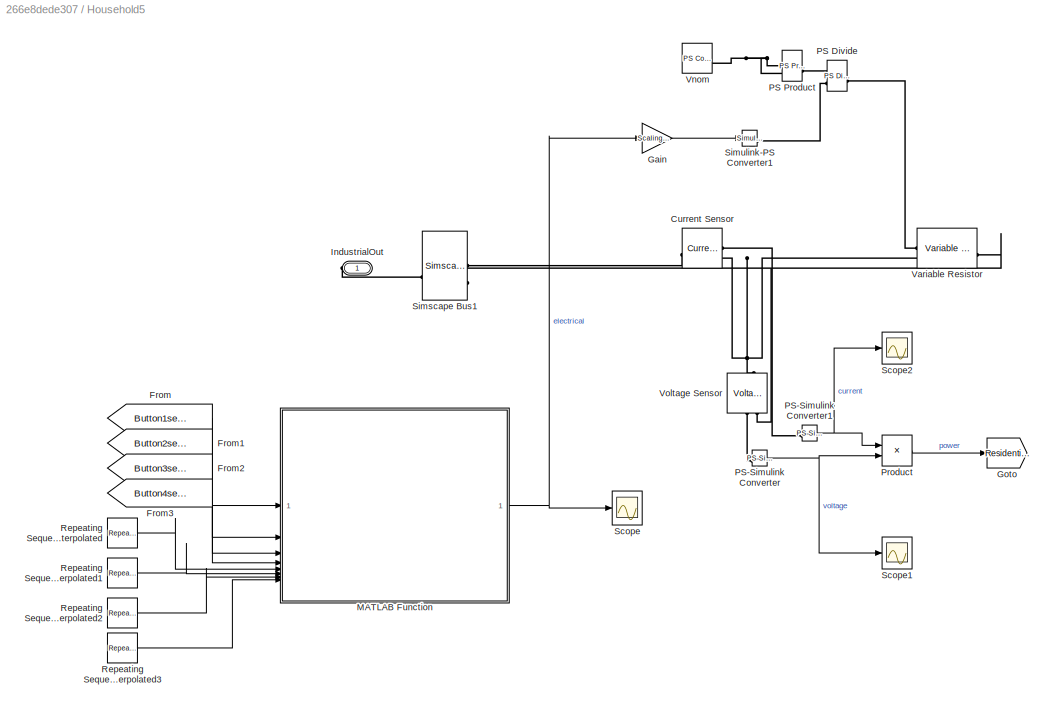
BLOCK [SubSystem] Household5
BLOCK [Reference] Household5/Current Sensor  REF=fl_lib/Electrical/Electrical Sensors/Current Sensor
  SourceBlock = fl_lib/Electrical/Electrical Sensors/Current Sensor
  SourceType = Current Sensor
BLOCK [From] Household5/From
  GotoTag = Button1selected
  TagVisibility = global
BLOCK [From] Household5/From1
  GotoTag = Button2selected
  TagVisibility = global
BLOCK [From] Household5/From2
  GotoTag = Button3selected
  TagVisibility = global
BLOCK [From] Household5/From3
  GotoTag = Button4selected
  TagVisibility = global
BLOCK [Gain] Household5/Gain
  Gain = Scaling_factor
BLOCK [Goto] Household5/Goto
  GotoTag = Residential_power5
  TagVisibility = global
BLOCK [PMIOPort] Household5/IndustrialOut
  Side = Right
BLOCK [SubSystem] Household5/MATLAB Function
  ErrorFcn = Stateflow.Translate.translate
  LibrarySourceBlock = simulink/User-Defined\nFunctions/MATLAB Function
  PermitHierarchicalResolution = ExplicitOnly
  SFBlockType = MATLAB Function
  TreatAsAtomicUnit = on
BLOCK [Demux] Household5/MATLAB Function/ Demux 
  Outputs = 1
BLOCK [S-Function] Household5/MATLAB Function/ SFunction 
  EnableBusSupport = on
  FunctionName = sf_sfun
  PortCounts = [8 2]
  SFcnIsStateOwnerBlock = off
  SFunctionDeploymentMode = off
  Tag = Stateflow S-Function 9
BLOCK [Terminator] Household5/MATLAB Function/ Terminator 
BLOCK [Inport] Household5/MATLAB Function/button1
BLOCK [Inport] Household5/MATLAB Function/button2
  Port = 2
BLOCK [Inport] Household5/MATLAB Function/button3
  Port = 3
BLOCK [Inport] Household5/MATLAB Function/button4
  Port = 4
BLOCK [Inport] Household5/MATLAB Function/data1
  Port = 5
BLOCK [Inport] Household5/MATLAB Function/data2
  Port = 6
BLOCK [Inport] Household5/MATLAB Function/data3
  Port = 7
BLOCK [Inport] Household5/MATLAB Function/data4
  Port = 8
BLOCK [Outport] Household5/MATLAB Function/y
BLOCK [Reference] Household5/PS Divide  REF=fl_lib/Physical Signals/Functions/PS Divide
  SourceBlock = fl_lib/Physical Signals/Functions/PS Divide
  SourceType = PS Divide
BLOCK [Reference] Household5/PS Product  REF=fl_lib/Physical Signals/Functions/PS Product
  SourceBlock = fl_lib/Physical Signals/Functions/PS Product
  SourceType = PS Product
BLOCK [Reference] Household5/PS-Simulink Converter  REF=nesl_utility/PS-Simulink
Converter
  SourceBlock = nesl_utility/PS-Simulink\nConverter
  SourceType = PS-Simulink\nConverter
BLOCK [Reference] Household5/PS-Simulink Converter1  REF=nesl_utility/PS-Simulink
Converter
  SourceBlock = nesl_utility/PS-Simulink\nConverter
  SourceType = PS-Simulink\nConverter
BLOCK [Product] Household5/Product
BLOCK [Reference] Household5/Repeating Sequence Interpolated  REF=simulink/Sources/Repeating
Sequence
Interpolated
  SourceBlock = simulink/Sources/Repeating\nSequence\nInterpolated
  SourceType = Repeating Sequence Interpolated
BLOCK [Reference] Household5/Repeating Sequence Interpolated1  REF=simulink/Sources/Repeating
Sequence
Interpolated
  SourceBlock = simulink/Sources/Repeating\nSequence\nInterpolated
  SourceType = Repeating Sequence Interpolated
BLOCK [Reference] Household5/Repeating Sequence Interpolated2  REF=simulink/Sources/Repeating
Sequence
Interpolated
  SourceBlock = simulink/Sources/Repeating\nSequence\nInterpolated
  SourceType = Repeating Sequence Interpolated
BLOCK [Reference] Household5/Repeating Sequence Interpolated3  REF=simulink/Sources/Repeating
Sequence
Interpolated
  SourceBlock = simulink/Sources/Repeating\nSequence\nInterpolated
  SourceType = Repeating Sequence Interpolated
BLOCK [Scope] Household5/Scope
  Floating = off
  NumInputPorts = 1
BLOCK [Scope] Household5/Scope1
  Floating = off
  NumInputPorts = 1
  ScopeSpecificationString = Simulink.scopes.TimeScopeBlockCfg('CurrentConfiguration', extmgr.ConfigurationSet(extmgr.Configuration('Core','General UI',true),extmgr.Configuration('Core','Source UI',true),extmgr.Configuration('Sources','WiredSimulink',true,'DataLoggingVariableName','ScopeData13'),extmgr.Configuration('Visuals','Time Domain',true,'SerializedDisplays',{struct('MinYLimReal','379.98241','MaxYLimReal','380.0013','Y...<+1377ch>
BLOCK [Scope] Household5/Scope2
  Floating = off
  NumInputPorts = 1
  ScopeSpecificationString = Simulink.scopes.TimeScopeBlockCfg('CurrentConfiguration', extmgr.ConfigurationSet(extmgr.Configuration('Core','General UI',true),extmgr.Configuration('Core','Source UI',true),extmgr.Configuration('Sources','WiredSimulink',true,'DataLoggingVariableName','ScopeData14'),extmgr.Configuration('Visuals','Time Domain',true,'SerializedDisplays',{struct('MinYLimReal','-2.3286','MaxYLimReal','31.41961','YLa...<+1369ch>
BLOCK [SimscapeBus] Household5/Simscape Bus1
  HierarchyStrings = High;Low
  NameLocation = top
BLOCK [Reference] Household5/Simulink-PS Converter1  REF=nesl_utility/Simulink-PS
Converter
  SourceBlock = nesl_utility/Simulink-PS\nConverter
  SourceType = Simulink-PS\nConverter
BLOCK [Reference] Household5/Variable Resistor  REF=fl_lib/Electrical/Electrical Elements/Variable Resistor
  SourceBlock = fl_lib/Electrical/Electrical Elements/Variable Resistor
  SourceType = Variable Resistor
BLOCK [Reference] Household5/Vnom  REF=fl_lib/Physical Signals/Sources/PS Constant
  SourceBlock = fl_lib/Physical Signals/Sources/PS Constant
  SourceType = PS Constant
BLOCK [Reference] Household5/Voltage Sensor  REF=fl_lib/Electrical/Electrical Sensors/Voltage Sensor
  NameLocation = right
  SourceBlock = fl_lib/Electrical/Electrical Sensors/Voltage Sensor
  SourceType = Voltage Sensor
BLOCK [SubSystem] Household6
  NameLocation = right
BLOCK [Reference] Household6/Current Sensor  REF=fl_lib/Electrical/Electrical Sensors/Current Sensor
  SourceBlock = fl_lib/Electrical/Electrical Sensors/Current Sensor
  SourceType = Current Sensor
BLOCK [From] Household6/From
  GotoTag = Button1selected
  TagVisibility = global
BLOCK [From] Household6/From1
  GotoTag = Button2selected
  TagVisibility = global
BLOCK [From] Household6/From2
  GotoTag = Button3selected
  TagVisibility = global
BLOCK [From] Household6/From3
  GotoTag = Button4selected
  TagVisibility = global
BLOCK [Gain] Household6/Gain
  Gain = Scaling_factor
BLOCK [Goto] Household6/Goto
  GotoTag = Residential_power6
  TagVisibility = global
BLOCK [PMIOPort] Household6/IndustrialOut
  Side = Right
BLOCK [SubSystem] Household6/MATLAB Function
  ErrorFcn = Stateflow.Translate.translate
  LibrarySourceBlock = simulink/User-Defined\nFunctions/MATLAB Function
  PermitHierarchicalResolution = ExplicitOnly
  SFBlockType = MATLAB Function
  TreatAsAtomicUnit = on
BLOCK [Demux] Household6/MATLAB Function/ Demux 
  Outputs = 1
BLOCK [S-Function] Household6/MATLAB Function/ SFunction 
  EnableBusSupport = on
  FunctionName = sf_sfun
  PortCounts = [8 2]
  SFcnIsStateOwnerBlock = off
  SFunctionDeploymentMode = off
  Tag = Stateflow S-Function 10
BLOCK [Terminator] Household6/MATLAB Function/ Terminator 
BLOCK [Inport] Household6/MATLAB Function/button1
BLOCK [Inport] Household6/MATLAB Function/button2
  Port = 2
BLOCK [Inport] Household6/MATLAB Function/button3
  Port = 3
BLOCK [Inport] Household6/MATLAB Function/button4
  Port = 4
BLOCK [Inport] Household6/MATLAB Function/data1
  Port = 5
BLOCK [Inport] Household6/MATLAB Function/data2
  Port = 6
BLOCK [Inport] Household6/MATLAB Function/data3
  Port = 7
BLOCK [Inport] Household6/MATLAB Function/data4
  Port = 8
BLOCK [Outport] Household6/MATLAB Function/y
BLOCK [Reference] Household6/PS Divide  REF=fl_lib/Physical Signals/Functions/PS Divide
  SourceBlock = fl_lib/Physical Signals/Functions/PS Divide
  SourceType = PS Divide
BLOCK [Reference] Household6/PS Product  REF=fl_lib/Physical Signals/Functions/PS Product
  SourceBlock = fl_lib/Physical Signals/Functions/PS Product
  SourceType = PS Product
BLOCK [Reference] Household6/PS-Simulink Converter  REF=nesl_utility/PS-Simulink
Converter
  SourceBlock = nesl_utility/PS-Simulink\nConverter
  SourceType = PS-Simulink\nConverter
BLOCK [Reference] Household6/PS-Simulink Converter1  REF=nesl_utility/PS-Simulink
Converter
  SourceBlock = nesl_utility/PS-Simulink\nConverter
  SourceType = PS-Simulink\nConverter
BLOCK [Product] Household6/Product
BLOCK [Reference] Household6/Repeating Sequence Interpolated  REF=simulink/Sources/Repeating
Sequence
Interpolated
  SourceBlock = simulink/Sources/Repeating\nSequence\nInterpolated
  SourceType = Repeating Sequence Interpolated
BLOCK [Reference] Household6/Repeating Sequence Interpolated1  REF=simulink/Sources/Repeating
Sequence
Interpolated
  SourceBlock = simulink/Sources/Repeating\nSequence\nInterpolated
  SourceType = Repeating Sequence Interpolated
BLOCK [Reference] Household6/Repeating Sequence Interpolated2  REF=simulink/Sources/Repeating
Sequence
Interpolated
  SourceBlock = simulink/Sources/Repeating\nSequence\nInterpolated
  SourceType = Repeating Sequence Interpolated
BLOCK [Reference] Household6/Repeating Sequence Interpolated3  REF=simulink/Sources/Repeating
Sequence
Interpolated
  SourceBlock = simulink/Sources/Repeating\nSequence\nInterpolated
  SourceType = Repeating Sequence Interpolated
BLOCK [Scope] Household6/Scope
  Floating = off
  NumInputPorts = 1
BLOCK [Scope] Household6/Scope1
  Floating = off
  NumInputPorts = 1
  ScopeSpecificationString = Simulink.scopes.TimeScopeBlockCfg('CurrentConfiguration', extmgr.ConfigurationSet(extmgr.Configuration('Core','General UI',true),extmgr.Configuration('Core','Source UI',true),extmgr.Configuration('Sources','WiredSimulink',true,'DataLoggingVariableName','ScopeData7'),extmgr.Configuration('Visuals','Time Domain',true,'SerializedDisplays',{struct('MinYLimReal','379.93734','MaxYLimReal','379.9985','YL...<+1376ch>
BLOCK [Scope] Household6/Scope2
  Floating = off
  NumInputPorts = 1
  ScopeSpecificationString = Simulink.scopes.TimeScopeBlockCfg('CurrentConfiguration', extmgr.ConfigurationSet(extmgr.Configuration('Core','General UI',true),extmgr.Configuration('Core','Source UI',true),extmgr.Configuration('Sources','WiredSimulink',true,'DataLoggingVariableName','ScopeData8'),extmgr.Configuration('Visuals','Time Domain',true,'SerializedDisplays',{struct('MinYLimReal','2.68468','MaxYLimReal','111.88654','YLa...<+1372ch>
BLOCK [SimscapeBus] Household6/Simscape Bus1
  HierarchyStrings = High;Low
  NameLocation = top
BLOCK [Reference] Household6/Simulink-PS Converter1  REF=nesl_utility/Simulink-PS
Converter
  SourceBlock = nesl_utility/Simulink-PS\nConverter
  SourceType = Simulink-PS\nConverter
BLOCK [Reference] Household6/Variable Resistor  REF=fl_lib/Electrical/Electrical Elements/Variable Resistor
  SourceBlock = fl_lib/Electrical/Electrical Elements/Variable Resistor
  SourceType = Variable Resistor
BLOCK [Reference] Household6/Vnom  REF=fl_lib/Physical Signals/Sources/PS Constant
  SourceBlock = fl_lib/Physical Signals/Sources/PS Constant
  SourceType = PS Constant
BLOCK [Reference] Household6/Voltage Sensor  REF=fl_lib/Electrical/Electrical Sensors/Voltage Sensor
  NameLocation = right
  SourceBlock = fl_lib/Electrical/Electrical Sensors/Voltage Sensor
  SourceType = Voltage Sensor
BLOCK [SubSystem] Household7
  NameLocation = right
BLOCK [Reference] Household7/Current Sensor  REF=fl_lib/Electrical/Electrical Sensors/Current Sensor
  SourceBlock = fl_lib/Electrical/Electrical Sensors/Current Sensor
  SourceType = Current Sensor
BLOCK [From] Household7/From
  GotoTag = Button1selected
  TagVisibility = global
BLOCK [From] Household7/From1
  GotoTag = Button2selected
  TagVisibility = global
BLOCK [From] Household7/From2
  GotoTag = Button3selected
  TagVisibility = global
BLOCK [From] Household7/From3
  GotoTag = Button4selected
  TagVisibility = global
BLOCK [Gain] Household7/Gain
  Gain = Scaling_factor
BLOCK [Goto] Household7/Goto
  GotoTag = Residential_power7
  TagVisibility = global
BLOCK [PMIOPort] Household7/IndustrialOut
  Side = Right
BLOCK [SubSystem] Household7/MATLAB Function
  ErrorFcn = Stateflow.Translate.translate
  LibrarySourceBlock = simulink/User-Defined\nFunctions/MATLAB Function
  PermitHierarchicalResolution = ExplicitOnly
  SFBlockType = MATLAB Function
  TreatAsAtomicUnit = on
BLOCK [Demux] Household7/MATLAB Function/ Demux 
  Outputs = 1
BLOCK [S-Function] Household7/MATLAB Function/ SFunction 
  EnableBusSupport = on
  FunctionName = sf_sfun
  PortCounts = [8 2]
  SFcnIsStateOwnerBlock = off
  SFunctionDeploymentMode = off
  Tag = Stateflow S-Function 11
BLOCK [Terminator] Household7/MATLAB Function/ Terminator 
BLOCK [Inport] Household7/MATLAB Function/button1
BLOCK [Inport] Household7/MATLAB Function/button2
  Port = 2
BLOCK [Inport] Household7/MATLAB Function/button3
  Port = 3
BLOCK [Inport] Household7/MATLAB Function/button4
  Port = 4
BLOCK [Inport] Household7/MATLAB Function/data1
  Port = 5
BLOCK [Inport] Household7/MATLAB Function/data2
  Port = 6
BLOCK [Inport] Household7/MATLAB Function/data3
  Port = 7
BLOCK [Inport] Household7/MATLAB Function/data4
  Port = 8
BLOCK [Outport] Household7/MATLAB Function/y
BLOCK [Reference] Household7/PS Divide  REF=fl_lib/Physical Signals/Functions/PS Divide
  SourceBlock = fl_lib/Physical Signals/Functions/PS Divide
  SourceType = PS Divide
BLOCK [Reference] Household7/PS Product  REF=fl_lib/Physical Signals/Functions/PS Product
  SourceBlock = fl_lib/Physical Signals/Functions/PS Product
  SourceType = PS Product
BLOCK [Reference] Household7/PS-Simulink Converter  REF=nesl_utility/PS-Simulink
Converter
  SourceBlock = nesl_utility/PS-Simulink\nConverter
  SourceType = PS-Simulink\nConverter
BLOCK [Reference] Household7/PS-Simulink Converter1  REF=nesl_utility/PS-Simulink
Converter
  SourceBlock = nesl_utility/PS-Simulink\nConverter
  SourceType = PS-Simulink\nConverter
BLOCK [Product] Household7/Product
BLOCK [Reference] Household7/Repeating Sequence Interpolated  REF=simulink/Sources/Repeating
Sequence
Interpolated
  SourceBlock = simulink/Sources/Repeating\nSequence\nInterpolated
  SourceType = Repeating Sequence Interpolated
BLOCK [Reference] Household7/Repeating Sequence Interpolated1  REF=simulink/Sources/Repeating
Sequence
Interpolated
  SourceBlock = simulink/Sources/Repeating\nSequence\nInterpolated
  SourceType = Repeating Sequence Interpolated
BLOCK [Reference] Household7/Repeating Sequence Interpolated2  REF=simulink/Sources/Repeating
Sequence
Interpolated
  SourceBlock = simulink/Sources/Repeating\nSequence\nInterpolated
  SourceType = Repeating Sequence Interpolated
BLOCK [Reference] Household7/Repeating Sequence Interpolated3  REF=simulink/Sources/Repeating
Sequence
Interpolated
  SourceBlock = simulink/Sources/Repeating\nSequence\nInterpolated
  SourceType = Repeating Sequence Interpolated
BLOCK [Scope] Household7/Scope
  Floating = off
  NumInputPorts = 1
  ScopeSpecificationString = Simulink.scopes.TimeScopeBlockCfg('CurrentConfiguration', extmgr.ConfigurationSet(extmgr.Configuration('Core','General UI',true),extmgr.Configuration('Core','Source UI',true),extmgr.Configuration('Sources','WiredSimulink',true,'DataLoggingVariableName','ScopeData1'),extmgr.Configuration('Visuals','Time Domain',true,'SerializedDisplays',{struct('MinYLimReal','327.29894','MaxYLimReal','2117.89678','...<+1502ch>
BLOCK [SimscapeBus] Household7/Simscape Bus1
  HierarchyStrings = High;Low
  NameLocation = top
BLOCK [Reference] Household7/Simulink-PS Converter1  REF=nesl_utility/Simulink-PS
Converter
  SourceBlock = nesl_utility/Simulink-PS\nConverter
  SourceType = Simulink-PS\nConverter
BLOCK [Reference] Household7/Variable Resistor  REF=fl_lib/Electrical/Electrical Elements/Variable Resistor
  SourceBlock = fl_lib/Electrical/Electrical Elements/Variable Resistor
  SourceType = Variable Resistor
BLOCK [Reference] Household7/Vnom  REF=fl_lib/Physical Signals/Sources/PS Constant
  SourceBlock = fl_lib/Physical Signals/Sources/PS Constant
  SourceType = PS Constant
BLOCK [Reference] Household7/Voltage Sensor  REF=fl_lib/Electrical/Electrical Sensors/Voltage Sensor
  NameLocation = right
  SourceBlock = fl_lib/Electrical/Electrical Sensors/Voltage Sensor
  SourceType = Voltage Sensor
BLOCK [SubSystem] Household8
  NameLocation = right
BLOCK [Constant] Household8/Constant
  Value = LV
BLOCK [Reference] Household8/Controlled Current Source  REF=fl_lib/Electrical/Electrical Sources/Controlled Current
Source
  NameLocation = left
  SourceBlock = fl_lib/Electrical/Electrical Sources/Controlled Current\nSource
  SourceType = Controlled Current\nSource
BLOCK [Reference] Household8/Current Sensor  REF=fl_lib/Electrical/Electrical Sensors/Current Sensor
  SourceBlock = fl_lib/Electrical/Electrical Sensors/Current Sensor
  SourceType = Current Sensor
BLOCK [Product] Household8/Divide
  Inputs = */
BLOCK [From] Household8/From
  GotoTag = Button1selected
  TagVisibility = global
BLOCK [From] Household8/From1
  GotoTag = Button2selected
  TagVisibility = global
BLOCK [From] Household8/From2
  GotoTag = Button3selected
  TagVisibility = global
BLOCK [From] Household8/From3
  GotoTag = Button4selected
  TagVisibility = global
BLOCK [Gain] Household8/Gain
  Gain = Scaling_factor
BLOCK [Goto] Household8/Goto
  GotoTag = Residential_power8
  TagVisibility = global
BLOCK [PMIOPort] Household8/IndustrialOut
  Side = Right
BLOCK [SubSystem] Household8/MATLAB Function
  ErrorFcn = Stateflow.Translate.translate
  LibrarySourceBlock = simulink/User-Defined\nFunctions/MATLAB Function
  PermitHierarchicalResolution = ExplicitOnly
  SFBlockType = MATLAB Function
  TreatAsAtomicUnit = on
BLOCK [Demux] Household8/MATLAB Function/ Demux 
  Outputs = 1
BLOCK [S-Function] Household8/MATLAB Function/ SFunction 
  EnableBusSupport = on
  FunctionName = sf_sfun
  PortCounts = [8 2]
  SFcnIsStateOwnerBlock = off
  SFunctionDeploymentMode = off
  Tag = Stateflow S-Function 12
BLOCK [Terminator] Household8/MATLAB Function/ Terminator 
BLOCK [Inport] Household8/MATLAB Function/button1
BLOCK [Inport] Household8/MATLAB Function/button2
  Port = 2
BLOCK [Inport] Household8/MATLAB Function/button3
  Port = 3
BLOCK [Inport] Household8/MATLAB Function/button4
  Port = 4
BLOCK [Inport] Household8/MATLAB Function/data1
  Port = 5
BLOCK [Inport] Household8/MATLAB Function/data2
  Port = 6
BLOCK [Inport] Household8/MATLAB Function/data3
  Port = 7
BLOCK [Inport] Household8/MATLAB Function/data4
  Port = 8
BLOCK [Outport] Household8/MATLAB Function/y
BLOCK [Reference] Household8/PS-Simulink Converter  REF=nesl_utility/PS-Simulink
Converter
  SourceBlock = nesl_utility/PS-Simulink\nConverter
  SourceType = PS-Simulink\nConverter
BLOCK [Reference] Household8/PS-Simulink Converter1  REF=nesl_utility/PS-Simulink
Converter
  SourceBlock = nesl_utility/PS-Simulink\nConverter
  SourceType = PS-Simulink\nConverter
BLOCK [Product] Household8/Product
BLOCK [Reference] Household8/Repeating Sequence Interpolated  REF=simulink/Sources/Repeating
Sequence
Interpolated
  SourceBlock = simulink/Sources/Repeating\nSequence\nInterpolated
  SourceType = Repeating Sequence Interpolated
BLOCK [Reference] Household8/Repeating Sequence Interpolated1  REF=simulink/Sources/Repeating
Sequence
Interpolated
  SourceBlock = simulink/Sources/Repeating\nSequence\nInterpolated
  SourceType = Repeating Sequence Interpolated
BLOCK [Reference] Household8/Repeating Sequence Interpolated2  REF=simulink/Sources/Repeating
Sequence
Interpolated
  SourceBlock = simulink/Sources/Repeating\nSequence\nInterpolated
  SourceType = Repeating Sequence Interpolated
BLOCK [Reference] Household8/Repeating Sequence Interpolated3  REF=simulink/Sources/Repeating
Sequence
Interpolated
  SourceBlock = simulink/Sources/Repeating\nSequence\nInterpolated
  SourceType = Repeating Sequence Interpolated
BLOCK [Scope] Household8/Scope
  Floating = off
  NumInputPorts = 1
  ScopeSpecificationString = Simulink.scopes.TimeScopeBlockCfg('CurrentConfiguration', extmgr.ConfigurationSet(extmgr.Configuration('Core','General UI',true),extmgr.Configuration('Core','Source UI',true),extmgr.Configuration('Sources','WiredSimulink',true,'DataLoggingVariableName','ScopeData1'),extmgr.Configuration('Visuals','Time Domain',true,'SerializedDisplays',{struct('MinYLimReal','-4075.21361','MaxYLimReal','1995.81059'...<+1534ch>
BLOCK [Scope] Household8/Scope1
  Floating = off
  NumInputPorts = 1
  ScopeSpecificationString = Simulink.scopes.TimeScopeBlockCfg('CurrentConfiguration', extmgr.ConfigurationSet(extmgr.Configuration('Core','General UI',true),extmgr.Configuration('Core','Source UI',true),extmgr.Configuration('Sources','WiredSimulink',true,'DataLoggingVariableName','ScopeData11'),extmgr.Configuration('Visuals','Time Domain',true,'SerializedDisplays',{struct('MinYLimReal','-47.5','MaxYLimReal','427.5','YLabelRe...<+1397ch>
BLOCK [Scope] Household8/Scope2
  Floating = off
  NumInputPorts = 1
  ScopeSpecificationString = Simulink.scopes.TimeScopeBlockCfg('CurrentConfiguration', extmgr.ConfigurationSet(extmgr.Configuration('Core','General UI',true),extmgr.Configuration('Core','Source UI',true),extmgr.Configuration('Sources','WiredSimulink',true,'DataLoggingVariableName','ScopeData12'),extmgr.Configuration('Visuals','Time Domain',true,'SerializedDisplays',{struct('MinYLimReal','-84821.42061','MaxYLimReal','729048.96...<+1420ch>
BLOCK [SimscapeBus] Household8/Simscape Bus1
  HierarchyStrings = High;Low
  NameLocation = top
BLOCK [Reference] Household8/Simulink-PS Converter1  REF=nesl_utility/Simulink-PS
Converter
  SourceBlock = nesl_utility/Simulink-PS\nConverter
  SourceType = Simulink-PS\nConverter
BLOCK [Reference] Household8/Voltage Sensor  REF=fl_lib/Electrical/Electrical Sensors/Voltage Sensor
  NameLocation = right
  SourceBlock = fl_lib/Electrical/Electrical Sensors/Voltage Sensor
  SourceType = Voltage Sensor
BLOCK [SubSystem] Household9
  NameLocation = right
BLOCK [Reference] Household9/Current Sensor  REF=fl_lib/Electrical/Electrical Sensors/Current Sensor
  SourceBlock = fl_lib/Electrical/Electrical Sensors/Current Sensor
  SourceType = Current Sensor
BLOCK [From] Household9/From
  GotoTag = Button1selected
  TagVisibility = global
BLOCK [From] Household9/From1
  GotoTag = Button2selected
  TagVisibility = global
BLOCK [From] Household9/From2
  GotoTag = Button3selected
  TagVisibility = global
BLOCK [From] Household9/From3
  GotoTag = Button4selected
  TagVisibility = global
BLOCK [Gain] Household9/Gain
  Gain = Scaling_factor
BLOCK [Goto] Household9/Goto
  GotoTag = Residential_power9
  TagVisibility = global
BLOCK [PMIOPort] Household9/IndustrialOut
  Side = Right
BLOCK [SubSystem] Household9/MATLAB Function
  ErrorFcn = Stateflow.Translate.translate
  LibrarySourceBlock = simulink/User-Defined\nFunctions/MATLAB Function
  PermitHierarchicalResolution = ExplicitOnly
  SFBlockType = MATLAB Function
  TreatAsAtomicUnit = on
BLOCK [Demux] Household9/MATLAB Function/ Demux 
  Outputs = 1
BLOCK [S-Function] Household9/MATLAB Function/ SFunction 
  EnableBusSupport = on
  FunctionName = sf_sfun
  PortCounts = [8 2]
  SFcnIsStateOwnerBlock = off
  SFunctionDeploymentMode = off
  Tag = Stateflow S-Function 13
BLOCK [Terminator] Household9/MATLAB Function/ Terminator 
BLOCK [Inport] Household9/MATLAB Function/button1
BLOCK [Inport] Household9/MATLAB Function/button2
  Port = 2
BLOCK [Inport] Household9/MATLAB Function/button3
  Port = 3
BLOCK [Inport] Household9/MATLAB Function/button4
  Port = 4
BLOCK [Inport] Household9/MATLAB Function/data1
  Port = 5
BLOCK [Inport] Household9/MATLAB Function/data2
  Port = 6
BLOCK [Inport] Household9/MATLAB Function/data3
  Port = 7
BLOCK [Inport] Household9/MATLAB Function/data4
  Port = 8
BLOCK [Outport] Household9/MATLAB Function/y
BLOCK [Reference] Household9/PS Divide  REF=fl_lib/Physical Signals/Functions/PS Divide
  SourceBlock = fl_lib/Physical Signals/Functions/PS Divide
  SourceType = PS Divide
BLOCK [Reference] Household9/PS Product  REF=fl_lib/Physical Signals/Functions/PS Product
  SourceBlock = fl_lib/Physical Signals/Functions/PS Product
  SourceType = PS Product
BLOCK [Reference] Household9/PS-Simulink Converter  REF=nesl_utility/PS-Simulink
Converter
  SourceBlock = nesl_utility/PS-Simulink\nConverter
  SourceType = PS-Simulink\nConverter
BLOCK [Reference] Household9/PS-Simulink Converter1  REF=nesl_utility/PS-Simulink
Converter
  SourceBlock = nesl_utility/PS-Simulink\nConverter
  SourceType = PS-Simulink\nConverter
BLOCK [Product] Household9/Product
BLOCK [Reference] Household9/Repeating Sequence Interpolated  REF=simulink/Sources/Repeating
Sequence
Interpolated
  SourceBlock = simulink/Sources/Repeating\nSequence\nInterpolated
  SourceType = Repeating Sequence Interpolated
BLOCK [Reference] Household9/Repeating Sequence Interpolated1  REF=simulink/Sources/Repeating
Sequence
Interpolated
  SourceBlock = simulink/Sources/Repeating\nSequence\nInterpolated
  SourceType = Repeating Sequence Interpolated
BLOCK [Reference] Household9/Repeating Sequence Interpolated2  REF=simulink/Sources/Repeating
Sequence
Interpolated
  SourceBlock = simulink/Sources/Repeating\nSequence\nInterpolated
  SourceType = Repeating Sequence Interpolated
BLOCK [Reference] Household9/Repeating Sequence Interpolated3  REF=simulink/Sources/Repeating
Sequence
Interpolated
  SourceBlock = simulink/Sources/Repeating\nSequence\nInterpolated
  SourceType = Repeating Sequence Interpolated
BLOCK [Scope] Household9/Scope
  Floating = off
  NumInputPorts = 2
  ScopeSpecificationString = Simulink.scopes.TimeScopeBlockCfg('CurrentConfiguration', extmgr.ConfigurationSet(extmgr.Configuration('Core','General UI',true),extmgr.Configuration('Core','Source UI',true),extmgr.Configuration('Sources','WiredSimulink',true,'DataLoggingVariableName','ScopeData1'),extmgr.Configuration('Visuals','Time Domain',true,'SerializedDisplays',{struct('MinYLimReal','373.62128','MaxYLimReal','2238.69767','...<+1488ch>
BLOCK [Scope] Household9/Scope1
  Floating = off
  NumInputPorts = 2
  ScopeSpecificationString = Simulink.scopes.TimeScopeBlockCfg('CurrentConfiguration', extmgr.ConfigurationSet(extmgr.Configuration('Core','General UI',true),extmgr.Configuration('Core','Source UI',true),extmgr.Configuration('Sources','WiredSimulink',true,'DataLoggingVariableName','ScopeData5'),extmgr.Configuration('Visuals','Time Domain',true,'SerializedDisplays',{struct('MinYLimReal','-46.19318','MaxYLimReal','428.14366','Y...<+1479ch>
BLOCK [SimscapeBus] Household9/Simscape Bus1
  HierarchyStrings = High;Low
  NameLocation = top
BLOCK [Reference] Household9/Simulink-PS Converter1  REF=nesl_utility/Simulink-PS
Converter
  SourceBlock = nesl_utility/Simulink-PS\nConverter
  SourceType = Simulink-PS\nConverter
BLOCK [Reference] Household9/Variable Resistor  REF=fl_lib/Electrical/Electrical Elements/Variable Resistor
  SourceBlock = fl_lib/Electrical/Electrical Elements/Variable Resistor
  SourceType = Variable Resistor
BLOCK [Reference] Household9/Vnom  REF=fl_lib/Physical Signals/Sources/PS Constant
  SourceBlock = fl_lib/Physical Signals/Sources/PS Constant
  SourceType = PS Constant
BLOCK [Reference] Household9/Voltage Sensor  REF=fl_lib/Electrical/Electrical Sensors/Voltage Sensor
  NameLocation = right
  SourceBlock = fl_lib/Electrical/Electrical Sensors/Voltage Sensor
  SourceType = Voltage Sensor
BLOCK [SubSystem] Line1
  NameLocation = top
BLOCK [PMIOPort] Line1/In
  Side = Left
BLOCK [PMIOPort] Line1/Out
  Port = 2
  Side = Right
BLOCK [Reference] Line1/Resistor  REF=fl_lib/Electrical/Electrical Elements/Resistor
  SourceBlock = fl_lib/Electrical/Electrical Elements/Resistor
  SourceType = Resistor
BLOCK [Reference] Line1/Resistor1  REF=fl_lib/Electrical/Electrical Elements/Resistor
  SourceBlock = fl_lib/Electrical/Electrical Elements/Resistor
  SourceType = Resistor
BLOCK [SimscapeBus] Line1/Simscape Bus2
  HierarchyStrings = High;Low
  NameLocation = top
BLOCK [SimscapeBus] Line1/Simscape Bus3
  HierarchyStrings = High;Low
BLOCK [SubSystem] Line10
  NameLocation = left
BLOCK [PMIOPort] Line10/In
  Side = Left
BLOCK [PMIOPort] Line10/Out
  Port = 2
  Side = Right
BLOCK [Reference] Line10/Resistor  REF=fl_lib/Electrical/Electrical Elements/Resistor
  SourceBlock = fl_lib/Electrical/Electrical Elements/Resistor
  SourceType = Resistor
BLOCK [Reference] Line10/Resistor1  REF=fl_lib/Electrical/Electrical Elements/Resistor
  SourceBlock = fl_lib/Electrical/Electrical Elements/Resistor
  SourceType = Resistor
BLOCK [SimscapeBus] Line10/Simscape Bus2
  HierarchyStrings = High;Low
  NameLocation = top
BLOCK [SimscapeBus] Line10/Simscape Bus3
  HierarchyStrings = High;Low
BLOCK [SubSystem] Line11
BLOCK [PMIOPort] Line11/In
  Side = Left
BLOCK [PMIOPort] Line11/Out
  Port = 2
  Side = Right
BLOCK [Reference] Line11/Resistor  REF=fl_lib/Electrical/Electrical Elements/Resistor
  SourceBlock = fl_lib/Electrical/Electrical Elements/Resistor
  SourceType = Resistor
BLOCK [Reference] Line11/Resistor1  REF=fl_lib/Electrical/Electrical Elements/Resistor
  SourceBlock = fl_lib/Electrical/Electrical Elements/Resistor
  SourceType = Resistor
BLOCK [SimscapeBus] Line11/Simscape Bus2
  HierarchyStrings = High;Low
  NameLocation = top
BLOCK [SimscapeBus] Line11/Simscape Bus3
  HierarchyStrings = High;Low
BLOCK [SubSystem] Line12
  NameLocation = right
BLOCK [PMIOPort] Line12/In
  Side = Left
BLOCK [PMIOPort] Line12/Out
  Port = 2
  Side = Right
BLOCK [Reference] Line12/Resistor  REF=fl_lib/Electrical/Electrical Elements/Resistor
  SourceBlock = fl_lib/Electrical/Electrical Elements/Resistor
  SourceType = Resistor
BLOCK [Reference] Line12/Resistor1  REF=fl_lib/Electrical/Electrical Elements/Resistor
  SourceBlock = fl_lib/Electrical/Electrical Elements/Resistor
  SourceType = Resistor
BLOCK [SimscapeBus] Line12/Simscape Bus2
  HierarchyStrings = High;Low
  NameLocation = top
BLOCK [SimscapeBus] Line12/Simscape Bus3
  HierarchyStrings = High;Low
BLOCK [SubSystem] Line13
  NameLocation = right
BLOCK [PMIOPort] Line13/In
  Side = Left
BLOCK [PMIOPort] Line13/Out
  Port = 2
  Side = Right
BLOCK [Reference] Line13/Resistor  REF=fl_lib/Electrical/Electrical Elements/Resistor
  SourceBlock = fl_lib/Electrical/Electrical Elements/Resistor
  SourceType = Resistor
BLOCK [Reference] Line13/Resistor1  REF=fl_lib/Electrical/Electrical Elements/Resistor
  SourceBlock = fl_lib/Electrical/Electrical Elements/Resistor
  SourceType = Resistor
BLOCK [SimscapeBus] Line13/Simscape Bus2
  HierarchyStrings = High;Low
  NameLocation = top
BLOCK [SimscapeBus] Line13/Simscape Bus3
  HierarchyStrings = High;Low
BLOCK [SubSystem] Line14
  NameLocation = right
BLOCK [PMIOPort] Line14/In
  Side = Left
BLOCK [PMIOPort] Line14/Out
  Port = 2
  Side = Right
BLOCK [Reference] Line14/Resistor  REF=fl_lib/Electrical/Electrical Elements/Resistor
  SourceBlock = fl_lib/Electrical/Electrical Elements/Resistor
  SourceType = Resistor
BLOCK [Reference] Line14/Resistor1  REF=fl_lib/Electrical/Electrical Elements/Resistor
  SourceBlock = fl_lib/Electrical/Electrical Elements/Resistor
  SourceType = Resistor
BLOCK [SimscapeBus] Line14/Simscape Bus2
  HierarchyStrings = High;Low
  NameLocation = top
BLOCK [SimscapeBus] Line14/Simscape Bus3
  HierarchyStrings = High;Low
BLOCK [SubSystem] Line15
  NameLocation = right
BLOCK [PMIOPort] Line15/In
  Side = Left
BLOCK [PMIOPort] Line15/Out
  Port = 2
  Side = Right
BLOCK [Reference] Line15/Resistor  REF=fl_lib/Electrical/Electrical Elements/Resistor
  SourceBlock = fl_lib/Electrical/Electrical Elements/Resistor
  SourceType = Resistor
BLOCK [Reference] Line15/Resistor1  REF=fl_lib/Electrical/Electrical Elements/Resistor
  SourceBlock = fl_lib/Electrical/Electrical Elements/Resistor
  SourceType = Resistor
BLOCK [SimscapeBus] Line15/Simscape Bus2
  HierarchyStrings = High;Low
  NameLocation = top
BLOCK [SimscapeBus] Line15/Simscape Bus3
  HierarchyStrings = High;Low
BLOCK [SubSystem] Line16
  NameLocation = right
BLOCK [PMIOPort] Line16/In
  Side = Left
BLOCK [PMIOPort] Line16/Out
  Port = 2
  Side = Right
BLOCK [Reference] Line16/Resistor  REF=fl_lib/Electrical/Electrical Elements/Resistor
  SourceBlock = fl_lib/Electrical/Electrical Elements/Resistor
  SourceType = Resistor
BLOCK [Reference] Line16/Resistor1  REF=fl_lib/Electrical/Electrical Elements/Resistor
  SourceBlock = fl_lib/Electrical/Electrical Elements/Resistor
  SourceType = Resistor
BLOCK [SimscapeBus] Line16/Simscape Bus2
  HierarchyStrings = High;Low
  NameLocation = top
BLOCK [SimscapeBus] Line16/Simscape Bus3
  HierarchyStrings = High;Low
BLOCK [SubSystem] Line17
  NameLocation = right
BLOCK [PMIOPort] Line17/In
  Side = Left
BLOCK [PMIOPort] Line17/Out
  Port = 2
  Side = Right
BLOCK [Reference] Line17/Resistor  REF=fl_lib/Electrical/Electrical Elements/Resistor
  SourceBlock = fl_lib/Electrical/Electrical Elements/Resistor
  SourceType = Resistor
BLOCK [Reference] Line17/Resistor1  REF=fl_lib/Electrical/Electrical Elements/Resistor
  SourceBlock = fl_lib/Electrical/Electrical Elements/Resistor
  SourceType = Resistor
BLOCK [SimscapeBus] Line17/Simscape Bus2
  HierarchyStrings = High;Low
  NameLocation = top
BLOCK [SimscapeBus] Line17/Simscape Bus3
  HierarchyStrings = High;Low
BLOCK [SubSystem] Line18
  NameLocation = right
BLOCK [PMIOPort] Line18/In
  Side = Left
BLOCK [PMIOPort] Line18/Out
  Port = 2
  Side = Right
BLOCK [Reference] Line18/Resistor  REF=fl_lib/Electrical/Electrical Elements/Resistor
  SourceBlock = fl_lib/Electrical/Electrical Elements/Resistor
  SourceType = Resistor
BLOCK [Reference] Line18/Resistor1  REF=fl_lib/Electrical/Electrical Elements/Resistor
  SourceBlock = fl_lib/Electrical/Electrical Elements/Resistor
  SourceType = Resistor
BLOCK [SimscapeBus] Line18/Simscape Bus2
  HierarchyStrings = High;Low
  NameLocation = top
BLOCK [SimscapeBus] Line18/Simscape Bus3
  HierarchyStrings = High;Low
BLOCK [SubSystem] Line19
  NameLocation = top
BLOCK [Reference] Line19/Current Sensor  REF=fl_lib/Electrical/Electrical Sensors/Current Sensor
  SourceBlock = fl_lib/Electrical/Electrical Sensors/Current Sensor
  SourceType = Current Sensor
BLOCK [PMIOPort] Line19/In
  Side = Left
BLOCK [PMIOPort] Line19/Out
  Port = 2
  Side = Right
BLOCK [Reference] Line19/PS-Simulink Converter  REF=nesl_utility/PS-Simulink
Converter
  SourceBlock = nesl_utility/PS-Simulink\nConverter
  SourceType = PS-Simulink\nConverter
BLOCK [Reference] Line19/Resistor  REF=fl_lib/Electrical/Electrical Elements/Resistor
  SourceBlock = fl_lib/Electrical/Electrical Elements/Resistor
  SourceType = Resistor
BLOCK [Reference] Line19/Resistor1  REF=fl_lib/Electrical/Electrical Elements/Resistor
  SourceBlock = fl_lib/Electrical/Electrical Elements/Resistor
  SourceType = Resistor
BLOCK [Scope] Line19/Scope
  Floating = off
  NumInputPorts = 1
  ScopeSpecificationString = Simulink.scopes.TimeScopeBlockCfg('CurrentConfiguration', extmgr.ConfigurationSet(extmgr.Configuration('Core','General UI',true),extmgr.Configuration('Core','Source UI',true),extmgr.Configuration('Sources','WiredSimulink',true,'DataLoggingVariableName','ScopeData10'),extmgr.Configuration('Visuals','Time Domain',true,'SerializedDisplays',{struct('MinYLimReal','-3237.78076','MaxYLimReal','29152.8123...<+1407ch>
BLOCK [SimscapeBus] Line19/Simscape Bus2
  HierarchyStrings = High;Low
  NameLocation = top
BLOCK [SimscapeBus] Line19/Simscape Bus3
  HierarchyStrings = High;Low
BLOCK [SubSystem] Line2
  NameLocation = top
BLOCK [PMIOPort] Line2/In
  Side = Left
BLOCK [PMIOPort] Line2/Out
  Port = 2
  Side = Right
BLOCK [Reference] Line2/Resistor  REF=fl_lib/Electrical/Electrical Elements/Resistor
  SourceBlock = fl_lib/Electrical/Electrical Elements/Resistor
  SourceType = Resistor
BLOCK [Reference] Line2/Resistor1  REF=fl_lib/Electrical/Electrical Elements/Resistor
  SourceBlock = fl_lib/Electrical/Electrical Elements/Resistor
  SourceType = Resistor
BLOCK [SimscapeBus] Line2/Simscape Bus2
  HierarchyStrings = High;Low
  NameLocation = top
BLOCK [SimscapeBus] Line2/Simscape Bus3
  HierarchyStrings = High;Low
BLOCK [SubSystem] Line20
  NameLocation = top
BLOCK [PMIOPort] Line20/In
  Side = Left
BLOCK [PMIOPort] Line20/Out
  Port = 2
  Side = Right
BLOCK [Reference] Line20/Resistor  REF=fl_lib/Electrical/Electrical Elements/Resistor
  SourceBlock = fl_lib/Electrical/Electrical Elements/Resistor
  SourceType = Resistor
BLOCK [Reference] Line20/Resistor1  REF=fl_lib/Electrical/Electrical Elements/Resistor
  SourceBlock = fl_lib/Electrical/Electrical Elements/Resistor
  SourceType = Resistor
BLOCK [SimscapeBus] Line20/Simscape Bus2
  HierarchyStrings = High;Low
  NameLocation = top
BLOCK [SimscapeBus] Line20/Simscape Bus3
  HierarchyStrings = High;Low
BLOCK [SubSystem] Line21
  NameLocation = right
BLOCK [Reference] Line21/Current Sensor  REF=fl_lib/Electrical/Electrical Sensors/Current Sensor
  SourceBlock = fl_lib/Electrical/Electrical Sensors/Current Sensor
  SourceType = Current Sensor
BLOCK [PMIOPort] Line21/In
  Side = Left
BLOCK [PMIOPort] Line21/Out
  Port = 2
  Side = Right
BLOCK [Reference] Line21/PS-Simulink Converter  REF=nesl_utility/PS-Simulink
Converter
  SourceBlock = nesl_utility/PS-Simulink\nConverter
  SourceType = PS-Simulink\nConverter
BLOCK [Reference] Line21/Resistor  REF=fl_lib/Electrical/Electrical Elements/Resistor
  SourceBlock = fl_lib/Electrical/Electrical Elements/Resistor
  SourceType = Resistor
BLOCK [Reference] Line21/Resistor1  REF=fl_lib/Electrical/Electrical Elements/Resistor
  SourceBlock = fl_lib/Electrical/Electrical Elements/Resistor
  SourceType = Resistor
BLOCK [Scope] Line21/Scope
  Floating = off
  NumInputPorts = 1
  ScopeSpecificationString = Simulink.scopes.TimeScopeBlockCfg('CurrentConfiguration', extmgr.ConfigurationSet(extmgr.Configuration('Core','General UI',true),extmgr.Configuration('Core','Source UI',true),extmgr.Configuration('Sources','WiredSimulink',true,'DataLoggingVariableName','ScopeData6'),extmgr.Configuration('Visuals','Time Domain',true,'SerializedDisplays',{struct('MinYLimReal','-91.40855','MaxYLimReal','14.21488','YL...<+1386ch>
BLOCK [SimscapeBus] Line21/Simscape Bus2
  HierarchyStrings = High;Low
  NameLocation = top
BLOCK [SimscapeBus] Line21/Simscape Bus3
  HierarchyStrings = High;Low
BLOCK [SubSystem] Line22
  NameLocation = top
BLOCK [Reference] Line22/Current Sensor  REF=fl_lib/Electrical/Electrical Sensors/Current Sensor
  SourceBlock = fl_lib/Electrical/Electrical Sensors/Current Sensor
  SourceType = Current Sensor
BLOCK [Goto] Line22/Goto
  GotoTag = Bus_Voltage
  TagVisibility = global
BLOCK [Goto] Line22/Goto1
  GotoTag = Bus_Current
  TagVisibility = global
BLOCK [PMIOPort] Line22/In
  Side = Left
BLOCK [PMIOPort] Line22/Out
  Port = 2
  Side = Right
BLOCK [Reference] Line22/PS-Simulink Converter  REF=nesl_utility/PS-Simulink
Converter
  SourceBlock = nesl_utility/PS-Simulink\nConverter
  SourceType = PS-Simulink\nConverter
BLOCK [Reference] Line22/PS-Simulink Converter1  REF=nesl_utility/PS-Simulink
Converter
  SourceBlock = nesl_utility/PS-Simulink\nConverter
  SourceType = PS-Simulink\nConverter
BLOCK [Reference] Line22/Resistor  REF=fl_lib/Electrical/Electrical Elements/Resistor
  SourceBlock = fl_lib/Electrical/Electrical Elements/Resistor
  SourceType = Resistor
BLOCK [Reference] Line22/Resistor1  REF=fl_lib/Electrical/Electrical Elements/Resistor
  SourceBlock = fl_lib/Electrical/Electrical Elements/Resistor
  SourceType = Resistor
BLOCK [Scope] Line22/Scope
  Floating = off
  NumInputPorts = 1
  ScopeSpecificationString = Simulink.scopes.TimeScopeBlockCfg('CurrentConfiguration', extmgr.ConfigurationSet(extmgr.Configuration('Core','General UI',true),extmgr.Configuration('Core','Source UI',true),extmgr.Configuration('Sources','WiredSimulink',true,'DataLoggingVariableName','ScopeData5'),extmgr.Configuration('Visuals','Time Domain',true,'SerializedDisplays',{struct('MinYLimReal','-58292.74688','MaxYLimReal','6480.80344...<+1409ch>
BLOCK [SimscapeBus] Line22/Simscape Bus2
  HierarchyStrings = High;Low
  NameLocation = top
BLOCK [SimscapeBus] Line22/Simscape Bus3
  HierarchyStrings = High;Low
BLOCK [Reference] Line22/Voltage Sensor  REF=fl_lib/Electrical/Electrical Sensors/Voltage Sensor
  NameLocation = right
  SourceBlock = fl_lib/Electrical/Electrical Sensors/Voltage Sensor
  SourceType = Voltage Sensor
BLOCK [SubSystem] Line3
  NameLocation = right
BLOCK [PMIOPort] Line3/In
  Side = Left
BLOCK [PMIOPort] Line3/Out
  Port = 2
  Side = Right
BLOCK [Reference] Line3/Resistor  REF=fl_lib/Electrical/Electrical Elements/Resistor
  SourceBlock = fl_lib/Electrical/Electrical Elements/Resistor
  SourceType = Resistor
BLOCK [Reference] Line3/Resistor1  REF=fl_lib/Electrical/Electrical Elements/Resistor
  SourceBlock = fl_lib/Electrical/Electrical Elements/Resistor
  SourceType = Resistor
BLOCK [SimscapeBus] Line3/Simscape Bus2
  HierarchyStrings = High;Low
  NameLocation = top
BLOCK [SimscapeBus] Line3/Simscape Bus3
  HierarchyStrings = High;Low
BLOCK [SubSystem] Line4
BLOCK [PMIOPort] Line4/In
  Side = Left
BLOCK [PMIOPort] Line4/Out
  Port = 2
  Side = Right
BLOCK [Reference] Line4/Resistor  REF=fl_lib/Electrical/Electrical Elements/Resistor
  SourceBlock = fl_lib/Electrical/Electrical Elements/Resistor
  SourceType = Resistor
BLOCK [Reference] Line4/Resistor1  REF=fl_lib/Electrical/Electrical Elements/Resistor
  SourceBlock = fl_lib/Electrical/Electrical Elements/Resistor
  SourceType = Resistor
BLOCK [SimscapeBus] Line4/Simscape Bus2
  HierarchyStrings = High;Low
  NameLocation = top
BLOCK [SimscapeBus] Line4/Simscape Bus3
  HierarchyStrings = High;Low
BLOCK [SubSystem] Line5
  NameLocation = left
BLOCK [PMIOPort] Line5/In
  Side = Left
BLOCK [PMIOPort] Line5/Out
  Port = 2
  Side = Right
BLOCK [Reference] Line5/Resistor  REF=fl_lib/Electrical/Electrical Elements/Resistor
  SourceBlock = fl_lib/Electrical/Electrical Elements/Resistor
  SourceType = Resistor
BLOCK [Reference] Line5/Resistor1  REF=fl_lib/Electrical/Electrical Elements/Resistor
  SourceBlock = fl_lib/Electrical/Electrical Elements/Resistor
  SourceType = Resistor
BLOCK [SimscapeBus] Line5/Simscape Bus2
  HierarchyStrings = High;Low
  NameLocation = top
BLOCK [SimscapeBus] Line5/Simscape Bus3
  HierarchyStrings = High;Low
BLOCK [SubSystem] Line6
  NameLocation = left
BLOCK [PMIOPort] Line6/In
  Side = Left
BLOCK [PMIOPort] Line6/Out
  Port = 2
  Side = Right
BLOCK [Reference] Line6/Resistor  REF=fl_lib/Electrical/Electrical Elements/Resistor
  SourceBlock = fl_lib/Electrical/Electrical Elements/Resistor
  SourceType = Resistor
BLOCK [Reference] Line6/Resistor1  REF=fl_lib/Electrical/Electrical Elements/Resistor
  SourceBlock = fl_lib/Electrical/Electrical Elements/Resistor
  SourceType = Resistor
BLOCK [SimscapeBus] Line6/Simscape Bus2
  HierarchyStrings = High;Low
  NameLocation = top
BLOCK [SimscapeBus] Line6/Simscape Bus3
  HierarchyStrings = High;Low
BLOCK [SubSystem] Line7
BLOCK [PMIOPort] Line7/In
  Side = Left
BLOCK [PMIOPort] Line7/Out
  Port = 2
  Side = Right
BLOCK [Reference] Line7/Resistor  REF=fl_lib/Electrical/Electrical Elements/Resistor
  SourceBlock = fl_lib/Electrical/Electrical Elements/Resistor
  SourceType = Resistor
BLOCK [Reference] Line7/Resistor1  REF=fl_lib/Electrical/Electrical Elements/Resistor
  SourceBlock = fl_lib/Electrical/Electrical Elements/Resistor
  SourceType = Resistor
BLOCK [SimscapeBus] Line7/Simscape Bus2
  HierarchyStrings = High;Low
  NameLocation = top
BLOCK [SimscapeBus] Line7/Simscape Bus3
  HierarchyStrings = High;Low
BLOCK [SubSystem] Line8
BLOCK [Reference] Line8/Current Sensor  REF=fl_lib/Electrical/Electrical Sensors/Current Sensor
  SourceBlock = fl_lib/Electrical/Electrical Sensors/Current Sensor
  SourceType = Current Sensor
BLOCK [PMIOPort] Line8/In
  Side = Left
BLOCK [PMIOPort] Line8/Out
  Port = 2
  Side = Right
BLOCK [Reference] Line8/PS-Simulink Converter  REF=nesl_utility/PS-Simulink
Converter
  SourceBlock = nesl_utility/PS-Simulink\nConverter
  SourceType = PS-Simulink\nConverter
BLOCK [Reference] Line8/Resistor  REF=fl_lib/Electrical/Electrical Elements/Resistor
  SourceBlock = fl_lib/Electrical/Electrical Elements/Resistor
  SourceType = Resistor
BLOCK [Reference] Line8/Resistor1  REF=fl_lib/Electrical/Electrical Elements/Resistor
  SourceBlock = fl_lib/Electrical/Electrical Elements/Resistor
  SourceType = Resistor
BLOCK [Scope] Line8/Scope
  Floating = off
  NumInputPorts = 1
  ScopeSpecificationString = Simulink.scopes.TimeScopeBlockCfg('CurrentConfiguration', extmgr.ConfigurationSet(extmgr.Configuration('Core','General UI',true),extmgr.Configuration('Core','Source UI',true),extmgr.Configuration('Sources','WiredSimulink',true,'DataLoggingVariableName','ScopeData9'),extmgr.Configuration('Visuals','Time Domain',true,'SerializedDisplays',{struct('MinYLimReal','0.81069','MaxYLimReal','5.21151','YLabe...<+1378ch>
BLOCK [SimscapeBus] Line8/Simscape Bus2
  HierarchyStrings = High;Low
  NameLocation = top
BLOCK [SimscapeBus] Line8/Simscape Bus3
  HierarchyStrings = High;Low
BLOCK [SubSystem] Line9
  NameLocation = left
BLOCK [PMIOPort] Line9/In
  Side = Left
BLOCK [PMIOPort] Line9/Out
  Port = 2
  Side = Right
BLOCK [Reference] Line9/Resistor  REF=fl_lib/Electrical/Electrical Elements/Resistor
  SourceBlock = fl_lib/Electrical/Electrical Elements/Resistor
  SourceType = Resistor
BLOCK [Reference] Line9/Resistor1  REF=fl_lib/Electrical/Electrical Elements/Resistor
  SourceBlock = fl_lib/Electrical/Electrical Elements/Resistor
  SourceType = Resistor
BLOCK [SimscapeBus] Line9/Simscape Bus2
  HierarchyStrings = High;Low
  NameLocation = top
BLOCK [SimscapeBus] Line9/Simscape Bus3
  HierarchyStrings = High;Low
BLOCK [PushButtonBlock] Push Button
  ButtonText = Button_SpringAllday
  OffValue = 0.000000
BLOCK [PushButtonBlock] Push Button1
  ButtonText = Button_SummerAllday
  OffValue = 0.000000
BLOCK [PushButtonBlock] Push Button2
  ButtonText = Button_AutumnAllday
  OffValue = 0.000000
BLOCK [PushButtonBlock] Push Button3
  ButtonText = Button_WinterAllday
  OffValue = 0.000000
BLOCK [Scope] Scope
  Floating = off
  NumInputPorts = 1
  ScopeSpecificationString = Simulink.scopes.TimeScopeBlockCfg('CurrentConfiguration', extmgr.ConfigurationSet(extmgr.Configuration('Core','General UI',true),extmgr.Configuration('Core','Source UI',true),extmgr.Configuration('Sources','WiredSimulink',true,'DataLoggingVariableName','ScopeData1'),extmgr.Configuration('Visuals','Time Domain',true,'SerializedDisplays',{struct('MinYLimReal','-971.27067','MaxYLimReal','7148.10635',...<+1652ch>
BLOCK [Scope] Scope1
  Floating = off
  NumInputPorts = 1
  ScopeSpecificationString = Simulink.scopes.TimeScopeBlockCfg('CurrentConfiguration', extmgr.ConfigurationSet(extmgr.Configuration('Core','General UI',true),extmgr.Configuration('Core','Source UI',true),extmgr.Configuration('Sources','WiredSimulink',true,'DataLoggingVariableName','ScopeData2'),extmgr.Configuration('Visuals','Time Domain',true,'SerializedDisplays',{struct('MinYLimReal','-5558.05902','MaxYLimReal','149861.3264...<+1478ch>
BLOCK [Scope] Scope2
  Floating = off
  NumInputPorts = 1
  ScopeSpecificationString = Simulink.scopes.TimeScopeBlockCfg('CurrentConfiguration', extmgr.ConfigurationSet(extmgr.Configuration('Core','General UI',true),extmgr.Configuration('Core','Source UI',true),extmgr.Configuration('Sources','WiredSimulink',true,'DataLoggingVariableName','ScopeData2'),extmgr.Configuration('Visuals','Time Domain',true,'SerializedDisplays',{struct('MinYLimReal','-84560.57598','MaxYLimReal','761045.173...<+1506ch>
BLOCK [Scope] Scope3
  Floating = off
  NumInputPorts = 4
  ScopeSpecificationString = Simulink.scopes.TimeScopeBlockCfg('CurrentConfiguration', extmgr.ConfigurationSet(extmgr.Configuration('Core','General UI',true),extmgr.Configuration('Core','Source UI',true),extmgr.Configuration('Sources','WiredSimulink',true,'DataLoggingVariableName','ScopeData3'),extmgr.Configuration('Visuals','Time Domain',true,'SerializedDisplays',{struct('MinYLimReal','-731983.55874','MaxYLimReal','833157.70...<+1986ch>
BLOCK [SubSystem] Solar power
  NameLocation = left
BLOCK [SubSystem] Solar power/Buck//Boost Converter
  PortSchema = {"entries":[{"content":{"sides":[{"content":{"connectorIds":["LConn1","LConn2"]},"type":"ConnectorPlacement.EquallySpacedRectSide","uuid":"5c021c6f-6d43-4834-8d7d-5513bb4d55a2"},{"content":{"connectorIds":["RConn1","RConn2"],"side":"RIGHT"},"type":"ConnectorPlacement.EquallySpacedRectSide","uuid":"9a583822-2cc1-49ae-b5aa-706b08d37e90"},{"content":{"connectorIds":["In1"],"side":"TOP"},"type":"Conne...<+268ch>
BLOCK [PMIOPort] Solar power/Buck//Boost Converter/+l
  Port = 4
  Side = Right
BLOCK [PMIOPort] Solar power/Buck//Boost Converter/+s
  Side = Left
BLOCK [PMIOPort] Solar power/Buck//Boost Converter/-l
  Port = 3
  Side = Right
BLOCK [PMIOPort] Solar power/Buck//Boost Converter/-s
  Port = 2
  Side = Left
BLOCK [Reference] Solar power/Buck//Boost Converter/Average-Value DC-DC Converter  REF=ee_lib/Semiconductors &
Converters/Converters/Average-Value DC-DC
Converter
  SourceBlock = ee_lib/Semiconductors &\nConverters/Converters/Average-Value DC-DC\nConverter
  SourceType = Average-Value DC-DC\nConverter
BLOCK [Reference] Solar power/Buck//Boost Converter/Simulink-PS Converter  REF=nesl_utility/Simulink-PS
Converter
  SourceBlock = nesl_utility/Simulink-PS\nConverter
  SourceType = Simulink-PS\nConverter
BLOCK [UnitDelay] Solar power/Buck//Boost Converter/Unit Delay
  HasFrameUpgradeWarning = on
  InitialCondition = 0.8
  SampleTime = -1
BLOCK [Inport] Solar power/Buck//Boost Converter/duty_cycle
BLOCK [Reference] Solar power/Current Sensor2  REF=fl_lib/Electrical/Electrical Sensors/Current Sensor
  SourceBlock = fl_lib/Electrical/Electrical Sensors/Current Sensor
  SourceType = Current Sensor
BLOCK [Reference] Solar power/Current-Controlled Current Source  REF=fl_lib/Electrical/Electrical Sources/Current-Controlled
Current Source
  SourceBlock = fl_lib/Electrical/Electrical Sources/Current-Controlled\nCurrent Source
  SourceType = Current-Controlled\nCurrent Source
BLOCK [Reference] Solar power/Current-Controlled Current Source- Scale panel current to Np parallel strings  REF=fl_lib/Electrical/Electrical Sources/Current-Controlled
Current Source
  SourceBlock = fl_lib/Electrical/Electrical Sources/Current-Controlled\nCurrent Source
  SourceType = Current-Controlled\nCurrent Source
BLOCK [Reference] Solar power/ERef  REF=fl_lib/Electrical/Electrical Elements/Electrical Reference
  NameLocation = right
  SourceBlock = fl_lib/Electrical/Electrical Elements/Electrical Reference
  SourceType = Electrical Reference
BLOCK [Goto] Solar power/Goto
  GotoTag = V_PV
  TagVisibility = global
BLOCK [Goto] Solar power/Goto1
  GotoTag = MPPT_duty_cycle
  TagVisibility = global
BLOCK [Goto] Solar power/Goto2
  GotoTag = P_PV
  TagVisibility = global
BLOCK [Goto] Solar power/Goto3
  GotoTag = V_PV_load
  TagVisibility = global
BLOCK [Inport] Solar power/Irradiance2
BLOCK [SubSystem] Solar power/MPPT
BLOCK [Step] Solar power/MPPT/Enable MPPT
  NameLocation = top
  SampleTime = 0.01
  Time = 0.1
BLOCK [Inport] Solar power/MPPT/I
BLOCK [Constant] Solar power/MPPT/Iph_
  Value = 0.8
BLOCK [Constant] Solar power/MPPT/Iph_1
  Value = 0.85
BLOCK [Constant] Solar power/MPPT/Iph_2
  Value = 0.1
BLOCK [Constant] Solar power/MPPT/Iph_3
  Value = 3e-3*0.5
BLOCK [SubSystem] Solar power/MPPT/MPPT Controller using Perturb & Observe technique 
  ErrorFcn = Stateflow.Translate.translate
  NameLocation = top
  PermitHierarchicalResolution = ExplicitOnly
  SFBlockType = MATLAB Function
  SystemSampleTime = Ts
  TreatAsGroupedWhenPropagatingVariantConditions = off
BLOCK [Demux] Solar power/MPPT/MPPT Controller using Perturb & Observe technique / Demux 
  Outputs = 1
BLOCK [S-Function] Solar power/MPPT/MPPT Controller using Perturb & Observe technique / SFunction 
  EnableBusSupport = on
  FunctionName = sf_sfun
  PortCounts = [4 2]
  SFcnIsStateOwnerBlock = off
  SFunctionDeploymentMode = off
  Tag = Stateflow S-Function 3
BLOCK [Terminator] Solar power/MPPT/MPPT Controller using Perturb & Observe technique / Terminator 
BLOCK [Outport] Solar power/MPPT/MPPT Controller using Perturb & Observe technique /D
  VectorParamsAs1DForOutWhenUnconnected = off
BLOCK [Inport] Solar power/MPPT/MPPT Controller using Perturb & Observe technique /Enabled
  Port = 2
BLOCK [Inport] Solar power/MPPT/MPPT Controller using Perturb & Observe technique /I
  Port = 4
BLOCK [Inport] Solar power/MPPT/MPPT Controller using Perturb & Observe technique /Param
BLOCK [Inport] Solar power/MPPT/MPPT Controller using Perturb & Observe technique /V
  Port = 3
BLOCK [Mux] Solar power/MPPT/Mux
  DisplayOption = bar
BLOCK [UnitDelay] Solar power/MPPT/Unit Delay
  HasFrameUpgradeWarning = on
  InitialCondition = 0.6
  SampleTime = -1
BLOCK [Inport] Solar power/MPPT/V
  Port = 2
BLOCK [Outport] Solar power/MPPT/duty_cycle
BLOCK [Reference] Solar power/PS-Simulink Converter1  REF=nesl_utility/PS-Simulink
Converter
  SourceBlock = nesl_utility/PS-Simulink\nConverter
  SourceType = PS-Simulink\nConverter
BLOCK [Reference] Solar power/PS-Simulink Converter4  REF=nesl_utility/PS-Simulink
Converter
  SourceBlock = nesl_utility/PS-Simulink\nConverter
  SourceType = PS-Simulink\nConverter
BLOCK [Product] Solar power/Product3
BLOCK [Scope] Solar power/Scope
  Floating = off
  NumInputPorts = 1
  ScopeSpecificationString = Simulink.scopes.TimeScopeBlockCfg('CurrentConfiguration', extmgr.ConfigurationSet(extmgr.Configuration('Core','General UI',true),extmgr.Configuration('Core','Source UI',true),extmgr.Configuration('Sources','WiredSimulink',true,'DataLoggingVariableName','ScopeData1'),extmgr.Configuration('Visuals','Time Domain',true,'SerializedDisplays',{struct('MinYLimReal','-64.41682','MaxYLimReal','354.62202','Y...<+1448ch>
BLOCK [SubSystem] Solar power/Sensing Current
  PortSchema = {"entries":[{"content":{"sides":[{"content":{"connectorIds":["LConn1"]},"type":"ConnectorPlacement.EquallySpacedRectSide","uuid":"08eaf192-3836-4d70-9f6a-c3aee0977ea6"},{"content":{"connectorIds":["RConn1"],"side":"RIGHT"},"type":"ConnectorPlacement.EquallySpacedRectSide","uuid":"69615d36-c1bf-4d31-b3e4-77c73286e7c7"},{"content":{"connectorIds":["Out1"],"side":"TOP"},"type":"ConnectorPlacement.Equ...<+251ch>
BLOCK [PMIOPort] Solar power/Sensing Current/+
  Side = Left
BLOCK [PMIOPort] Solar power/Sensing Current/-
  Port = 2
  Side = Right
BLOCK [Reference] Solar power/Sensing Current/Current Sensor  REF=fl_lib/Electrical/Electrical Sensors/Current Sensor
  SourceBlock = fl_lib/Electrical/Electrical Sensors/Current Sensor
  SourceType = Current Sensor
BLOCK [Outport] Solar power/Sensing Current/I
BLOCK [Reference] Solar power/Sensing Current/PS-Simulink//I  REF=nesl_utility/PS-Simulink
Converter
  SourceBlock = nesl_utility/PS-Simulink\nConverter
  SourceType = PS-Simulink\nConverter
BLOCK [SimscapeBus] Solar power/Simscape Bus1
  HierarchyStrings = High;Low
BLOCK [Reference] Solar power/Simulink-PS Converter2  REF=nesl_utility/Simulink-PS
Converter
  SourceBlock = nesl_utility/Simulink-PS\nConverter
  SourceType = Simulink-PS\nConverter
BLOCK [Reference] Solar power/Solar Cell1  REF=ee_lib/Sources/Solar Cell
  AttributesFormatString = Amerisolar:AS_6M30_HC_320W
  NameLocation = right
  SourceBlock = ee_lib/Sources/Solar Cell
  SourceType = Solar Cell
  Tag = {'toolbox/physmod/elec/library/m/ee_lib_parts';'Sources/Solar_Cell/Amerisolar/AS_6M30_HC_320W.xml'}
BLOCK [Reference] Solar power/Voltage Sensor2  REF=fl_lib/Electrical/Electrical Sensors/Voltage Sensor
  NameLocation = right
  SourceBlock = fl_lib/Electrical/Electrical Sensors/Voltage Sensor
  SourceType = Voltage Sensor
BLOCK [Reference] Solar power/Voltage-Controlled Voltage Source - Scale panel voltage to Ns series panel  REF=fl_lib/Electrical/Electrical Sources/Voltage-Controlled
Voltage Source
  SourceBlock = fl_lib/Electrical/Electrical Sources/Voltage-Controlled\nVoltage Source
  SourceType = Voltage-Controlled\nVoltage Source
BLOCK [SubSystem] Solar power/sensing voltage
  NameLocation = left
  PortSchema = {"entries":[{"content":{"sides":[{"content":{"connectorIds":["LConn1"]},"type":"ConnectorPlacement.EquallySpacedRectSide","uuid":"08eaf192-3836-4d70-9f6a-c3aee0977ea6"},{"content":{"connectorIds":["RConn1"],"side":"RIGHT"},"type":"ConnectorPlacement.EquallySpacedRectSide","uuid":"69615d36-c1bf-4d31-b3e4-77c73286e7c7"},{"content":{"connectorIds":[],"side":"TOP"},"type":"ConnectorPlacement.EquallySp...<+395ch>
BLOCK [PMIOPort] Solar power/sensing voltage/+
  NameLocation = left
  Side = Left
BLOCK [PMIOPort] Solar power/sensing voltage/-
  NameLocation = left
  Port = 2
  Side = Right
BLOCK [Reference] Solar power/sensing voltage/PS-Simulink Converter  REF=nesl_utility/PS-Simulink
Converter
  SourceBlock = nesl_utility/PS-Simulink\nConverter
  SourceType = PS-Simulink\nConverter
BLOCK [Outport] Solar power/sensing voltage/V
BLOCK [Reference] Solar power/sensing voltage/Voltage Sensor  REF=fl_lib/Electrical/Electrical Sensors/Voltage Sensor
  NameLocation = right
  SourceBlock = fl_lib/Electrical/Electrical Sensors/Voltage Sensor
  SourceType = Voltage Sensor
BLOCK [PMIOPort] Solar power/solaroutput2
  NameLocation = top
  Side = Left
BLOCK [SubSystem] Subsystem
BLOCK [Reference] Subsystem/    REF=simulink/Sources/Repeating
Sequence
Interpolated
  NameLocation = top
  SourceBlock = simulink/Sources/Repeating\nSequence\nInterpolated
  SourceType = Repeating Sequence Interpolated
BLOCK [Reference] Subsystem/  1  REF=simulink/Sources/Repeating
Sequence
Interpolated
  NameLocation = top
  SourceBlock = simulink/Sources/Repeating\nSequence\nInterpolated
  SourceType = Repeating Sequence Interpolated
BLOCK [Reference] Subsystem/  2  REF=simulink/Sources/Repeating
Sequence
Interpolated
  NameLocation = top
  SourceBlock = simulink/Sources/Repeating\nSequence\nInterpolated
  SourceType = Repeating Sequence Interpolated
BLOCK [Reference] Subsystem/  3  REF=simulink/Sources/Repeating
Sequence
Interpolated
  NameLocation = top
  SourceBlock = simulink/Sources/Repeating\nSequence\nInterpolated
  SourceType = Repeating Sequence Interpolated
BLOCK [From] Subsystem/From
  GotoTag = Button1selected
  TagVisibility = global
BLOCK [From] Subsystem/From1
  GotoTag = Button2selected
  TagVisibility = global
BLOCK [From] Subsystem/From2
  GotoTag = Button3selected
  TagVisibility = global
BLOCK [From] Subsystem/From3
  GotoTag = Button4selected
  TagVisibility = global
BLOCK [SubSystem] Subsystem/MATLAB Function
  ErrorFcn = Stateflow.Translate.translate
  LibrarySourceBlock = simulink/User-Defined\nFunctions/MATLAB Function
  PermitHierarchicalResolution = ExplicitOnly
  SFBlockType = MATLAB Function
  TreatAsAtomicUnit = on
BLOCK [Demux] Subsystem/MATLAB Function/ Demux 
  Outputs = 1
BLOCK [S-Function] Subsystem/MATLAB Function/ SFunction 
  EnableBusSupport = on
  FunctionName = sf_sfun
  PortCounts = [8 2]
  SFcnIsStateOwnerBlock = off
  SFunctionDeploymentMode = off
  Tag = Stateflow S-Function 2
BLOCK [Terminator] Subsystem/MATLAB Function/ Terminator 
BLOCK [Inport] Subsystem/MATLAB Function/button1
BLOCK [Inport] Subsystem/MATLAB Function/button2
  Port = 2
BLOCK [Inport] Subsystem/MATLAB Function/button3
  Port = 3
BLOCK [Inport] Subsystem/MATLAB Function/button4
  Port = 4
BLOCK [Inport] Subsystem/MATLAB Function/data1
  Port = 5
BLOCK [Inport] Subsystem/MATLAB Function/data2
  Port = 6
BLOCK [Inport] Subsystem/MATLAB Function/data3
  Port = 7
BLOCK [Inport] Subsystem/MATLAB Function/data4
  Port = 8
BLOCK [Outport] Subsystem/MATLAB Function/y
BLOCK [Outport] Subsystem/wind
BLOCK [SubSystem] Subsystem1
BLOCK [Reference] Subsystem1/    REF=simulink/Sources/Repeating
Sequence
Interpolated
  NameLocation = top
  SourceBlock = simulink/Sources/Repeating\nSequence\nInterpolated
  SourceType = Repeating Sequence Interpolated
BLOCK [Reference] Subsystem1/  1  REF=simulink/Sources/Repeating
Sequence
Interpolated
  NameLocation = top
  SourceBlock = simulink/Sources/Repeating\nSequence\nInterpolated
  SourceType = Repeating Sequence Interpolated
BLOCK [Reference] Subsystem1/  2  REF=simulink/Sources/Repeating
Sequence
Interpolated
  NameLocation = top
  SourceBlock = simulink/Sources/Repeating\nSequence\nInterpolated
  SourceType = Repeating Sequence Interpolated
BLOCK [Reference] Subsystem1/  3  REF=simulink/Sources/Repeating
Sequence
Interpolated
  NameLocation = top
  SourceBlock = simulink/Sources/Repeating\nSequence\nInterpolated
  SourceType = Repeating Sequence Interpolated
BLOCK [From] Subsystem1/From
  GotoTag = Button1selected
  TagVisibility = global
BLOCK [From] Subsystem1/From1
  GotoTag = Button2selected
  TagVisibility = global
BLOCK [From] Subsystem1/From2
  GotoTag = Button3selected
  TagVisibility = global
BLOCK [From] Subsystem1/From3
  GotoTag = Button4selected
  TagVisibility = global
BLOCK [SubSystem] Subsystem1/MATLAB Function
  ErrorFcn = Stateflow.Translate.translate
  LibrarySourceBlock = simulink/User-Defined\nFunctions/MATLAB Function
  PermitHierarchicalResolution = ExplicitOnly
  SFBlockType = MATLAB Function
  TreatAsAtomicUnit = on
BLOCK [Demux] Subsystem1/MATLAB Function/ Demux 
  Outputs = 1
BLOCK [S-Function] Subsystem1/MATLAB Function/ SFunction 
  EnableBusSupport = on
  FunctionName = sf_sfun
  PortCounts = [8 2]
  SFcnIsStateOwnerBlock = off
  SFunctionDeploymentMode = off
  Tag = Stateflow S-Function 17
BLOCK [Terminator] Subsystem1/MATLAB Function/ Terminator 
BLOCK [Inport] Subsystem1/MATLAB Function/button1
BLOCK [Inport] Subsystem1/MATLAB Function/button2
  Port = 2
BLOCK [Inport] Subsystem1/MATLAB Function/button3
  Port = 3
BLOCK [Inport] Subsystem1/MATLAB Function/button4
  Port = 4
BLOCK [Inport] Subsystem1/MATLAB Function/data1
  Port = 5
BLOCK [Inport] Subsystem1/MATLAB Function/data2
  Port = 6
BLOCK [Inport] Subsystem1/MATLAB Function/data3
  Port = 7
BLOCK [Inport] Subsystem1/MATLAB Function/data4
  Port = 8
BLOCK [Outport] Subsystem1/MATLAB Function/y
BLOCK [Outport] Subsystem1/irradiance
BLOCK [SubSystem] Subsystem10
  NameLocation = right
BLOCK [PMIOPort] Subsystem10/In
  Side = Left
BLOCK [PMIOPort] Subsystem10/Out
  Port = 2
  Side = Right
BLOCK [Reference] Subsystem10/Resistor  REF=fl_lib/Electrical/Electrical Elements/Resistor
  SourceBlock = fl_lib/Electrical/Electrical Elements/Resistor
  SourceType = Resistor
BLOCK [Reference] Subsystem10/Resistor1  REF=fl_lib/Electrical/Electrical Elements/Resistor
  SourceBlock = fl_lib/Electrical/Electrical Elements/Resistor
  SourceType = Resistor
BLOCK [SimscapeBus] Subsystem10/Simscape Bus2
  HierarchyStrings = High;Low
  NameLocation = top
BLOCK [SimscapeBus] Subsystem10/Simscape Bus3
  HierarchyStrings = High;Low
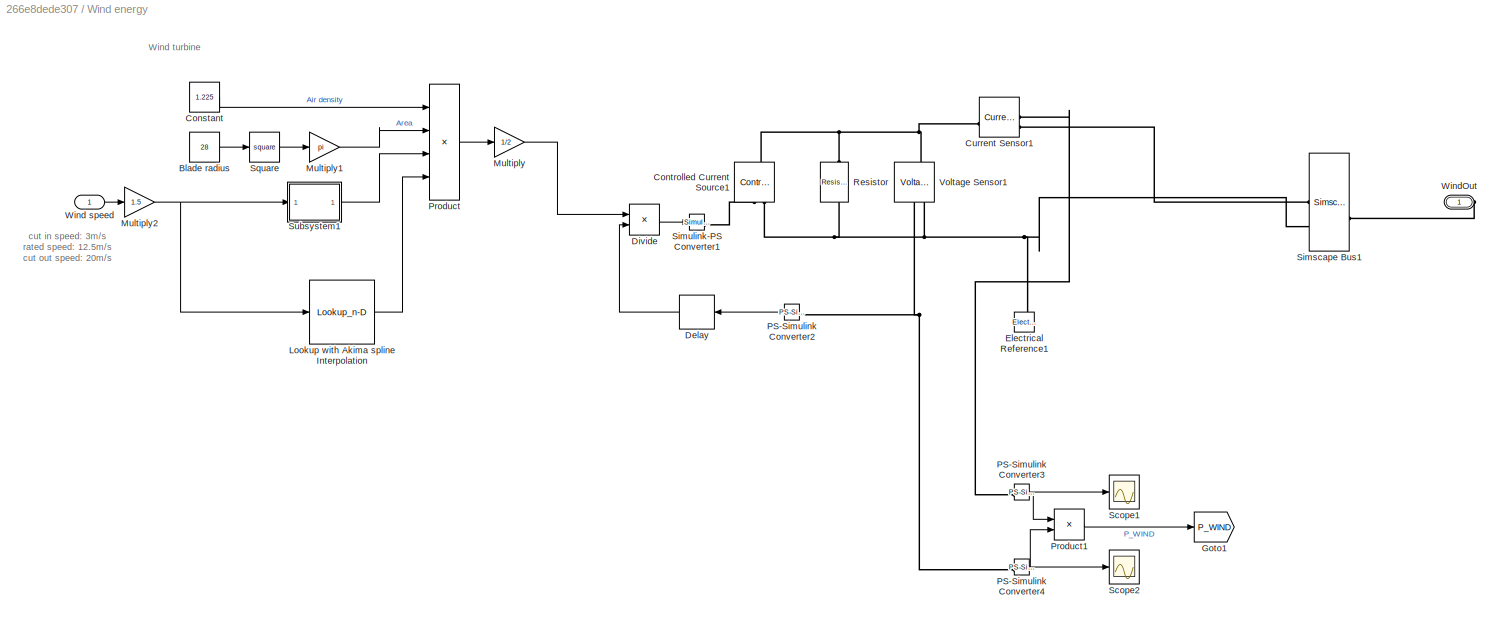
BLOCK [SubSystem] Wind energy
BLOCK [Constant] Wind energy/Blade radius
  Value = 28
BLOCK [Constant] Wind energy/Constant
  Value = 1.225
BLOCK [Reference] Wind energy/Controlled Current Source1  REF=fl_lib/Electrical/Electrical Sources/Controlled Current
Source
  NameLocation = right
  SourceBlock = fl_lib/Electrical/Electrical Sources/Controlled Current\nSource
  SourceType = Controlled Current\nSource
BLOCK [Reference] Wind energy/Current Sensor1  REF=fl_lib/Electrical/Electrical Sensors/Current Sensor
  SourceBlock = fl_lib/Electrical/Electrical Sensors/Current Sensor
  SourceType = Current Sensor
BLOCK [Delay] Wind energy/Delay
  DelayLength = 1
  InitialCondition = MV
  InputPortMap = u0
  NameLocation = top
BLOCK [Product] Wind energy/Divide
  Inputs = */
BLOCK [Reference] Wind energy/Electrical Reference1  REF=fl_lib/Electrical/Electrical Elements/Electrical Reference
  NameLocation = right
  SourceBlock = fl_lib/Electrical/Electrical Elements/Electrical Reference
  SourceType = Electrical Reference
BLOCK [Goto] Wind energy/Goto1
  GotoTag = P_WIND
  TagVisibility = global
BLOCK [Lookup_n-D] Wind energy/Lookup with Akima spline Interpolation
  BreakpointsForDimension1 = [0;1;2;3;4;5;6;7;8;9;10;11;12;13;14;15;16;17;18;19;20;21;22;23;24;25;26;27;28]
  InputPortMap = u0
  InternalRulePriority = Speed
  InterpMethod = Akima spline
  NumberOfTableDimensions = 1
  OutDataTypeStr = double
  RndMeth = Simplest
  Table = [0;0;0;0.228;0.322;0.38;0.408;0.413;0.418;0.419;0.419;0.401;0.378;0.305;0.244;0.199;0.164;0.136;0.115;0.098;0.084;0.072;0.063;0.055;0.048;0.042;0;0;0]
BLOCK [Gain] Wind energy/Multiply
  Gain = 1/2
BLOCK [Gain] Wind energy/Multiply1
  Gain = pi
BLOCK [Gain] Wind energy/Multiply2
  Gain = 1.5
BLOCK [Reference] Wind energy/PS-Simulink Converter2  REF=nesl_utility/PS-Simulink
Converter
  NameLocation = top
  SourceBlock = nesl_utility/PS-Simulink\nConverter
  SourceType = PS-Simulink\nConverter
BLOCK [Reference] Wind energy/PS-Simulink Converter3  REF=nesl_utility/PS-Simulink
Converter
  SourceBlock = nesl_utility/PS-Simulink\nConverter
  SourceType = PS-Simulink\nConverter
BLOCK [Reference] Wind energy/PS-Simulink Converter4  REF=nesl_utility/PS-Simulink
Converter
  SourceBlock = nesl_utility/PS-Simulink\nConverter
  SourceType = PS-Simulink\nConverter
BLOCK [Product] Wind energy/Product
  Inputs = 4
BLOCK [Product] Wind energy/Product1
BLOCK [Reference] Wind energy/Resistor  REF=fl_lib/Electrical/Electrical Elements/Resistor
  NameLocation = left
  SourceBlock = fl_lib/Electrical/Electrical Elements/Resistor
  SourceType = Resistor
BLOCK [Scope] Wind energy/Scope1
  Floating = off
  NumInputPorts = 1
  ScopeSpecificationString = Simulink.scopes.TimeScopeBlockCfg('CurrentConfiguration', extmgr.ConfigurationSet(extmgr.Configuration('Core','General UI',true),extmgr.Configuration('Core','Source UI',true),extmgr.Configuration('Sources','WiredSimulink',true,'DataLoggingVariableName','ScopeData1'),extmgr.Configuration('Visuals','Time Domain',true,'SerializedDisplays',{struct('MinYLimReal','-1.21628','MaxYLimReal','10.94639','YLa...<+1410ch>
BLOCK [Scope] Wind energy/Scope2
  Floating = off
  NumInputPorts = 1
  ScopeSpecificationString = Simulink.scopes.TimeScopeBlockCfg('CurrentConfiguration', extmgr.ConfigurationSet(extmgr.Configuration('Core','General UI',true),extmgr.Configuration('Core','Source UI',true),extmgr.Configuration('Sources','WiredSimulink',true,'DataLoggingVariableName','ScopeData2'),extmgr.Configuration('Visuals','Time Domain',true,'SerializedDisplays',{struct('MinYLimReal','9983.6784','MaxYLimReal','10001.81628',...<+1428ch>
BLOCK [SimscapeBus] Wind energy/Simscape Bus1
  HierarchyStrings = High;Low
BLOCK [Reference] Wind energy/Simulink-PS Converter1  REF=nesl_utility/Simulink-PS
Converter
  SourceBlock = nesl_utility/Simulink-PS\nConverter
  SourceType = Simulink-PS\nConverter
BLOCK [Math] Wind energy/Square
  Operator = square
BLOCK [SubSystem] Wind energy/Subsystem1
BLOCK [Inport] Wind energy/Subsystem1/In1
BLOCK [Outport] Wind energy/Subsystem1/Out1
BLOCK [Math] Wind energy/Subsystem1/Square1
  Operator = pow
BLOCK [Constant] Wind energy/Subsystem1/power of 3
  Value = 3
BLOCK [Reference] Wind energy/Voltage Sensor1  REF=fl_lib/Electrical/Electrical Sensors/Voltage Sensor
  NameLocation = right
  SourceBlock = fl_lib/Electrical/Electrical Sensors/Voltage Sensor
  SourceType = Voltage Sensor
BLOCK [Inport] Wind energy/Wind speed
BLOCK [PMIOPort] Wind energy/WindOut
  Side = Right
ANNOTATION (root): Used to maintain the DC bus stablity
ANNOTATION (root): DC BUS:10kV
ANNOTATION (root): Subsystem
ANNOTATION (root): Subsystem1
ANNOTATION (root): withpv 15
ANNOTATION (root): withpv 26
ANNOTATION (root): withpv 33
ANNOTATION Household2: I = P / U
ANNOTATION Solar power: -4
ANNOTATION Solar power: -9
ANNOTATION Solar power: Ns series panel
ANNOTATION Solar power/MPPT: Increment value used to increase/decrease (DeltaD)
ANNOTATION Solar power/MPPT: Initial value for D output (Dinit)
ANNOTATION Solar power/MPPT: Lower limit for D (Dmin)
ANNOTATION Solar power/MPPT: Upper limit for D (Dmax)
ANNOTATION Wind energy: Wind turbine
ANNOTATION Wind energy: cut in speed: 3m/s rated speed: 12.5m/s cut out speed: 20m/s
NET Add1:1 -> Add2:1, Goto5:1, Scope3:2
LINE Add2:1 -> Scope3:4
NET Add:1 -> Add2:3, Goto4:1, Scope1:1, Scope3:1
LINE Chart:1 -> Goto:1
LINE Chart:2 -> Goto1:1
LINE Chart:3 -> Goto2:1
LINE Chart:4 -> Goto3:1
LINE Constant1:1 -> Chart:2
LINE Constant2:1 -> Chart:3
LINE Constant3:1 -> Chart:4
LINE Constant:1 -> Chart:1
LINE ConverterStation/Constant:1 -> ConverterStation/Simulink-PS Converter:1
LINE ConverterStation/PS-Simulink Converter1:1 -> ConverterStation/Terminator1:1
LINE ConverterStation/PS-Simulink Converter:1 -> ConverterStation/Terminator:1
LINE ConverterStation1/Constant:1 -> ConverterStation1/Simulink-PS Converter:1
LINE ConverterStation1/PS-Simulink Converter1:1 -> ConverterStation1/Terminator1:1
LINE ConverterStation1/PS-Simulink Converter:1 -> ConverterStation1/Terminator:1
LINE ConverterStation2/Constant:1 -> ConverterStation2/Simulink-PS Converter:1
LINE ConverterStation2/PS-Simulink Converter1:1 -> ConverterStation2/Terminator1:1
LINE ConverterStation2/PS-Simulink Converter:1 -> ConverterStation2/Terminator:1
LINE ConverterStation3/Constant:1 -> ConverterStation3/Simulink-PS Converter:1
LINE ConverterStation3/PS-Simulink Converter1:1 -> ConverterStation3/Terminator1:1
LINE ConverterStation3/PS-Simulink Converter:1 -> ConverterStation3/Terminator:1
LINE ConverterStation4/Constant:1 -> ConverterStation4/Simulink-PS Converter:1
LINE ConverterStation4/PS-Simulink Converter1:1 -> ConverterStation4/Terminator1:1
LINE ConverterStation4/PS-Simulink Converter:1 -> ConverterStation4/Terminator:1
LINE Enabled Subsystem/Constant:1 -> Enabled Subsystem/Simulink-PS Converter:1
NET Enabled Subsystem/PS-Simulink Converter1:1 -> Enabled Subsystem/Product:2, Enabled Subsystem/Scope1:1
NET Enabled Subsystem/PS-Simulink Converter:1 -> Enabled Subsystem/Product:1, Enabled Subsystem/Scope:1
LINE Enabled Subsystem/Product:1 -> Enabled Subsystem/Goto:1
LINE From10:1 -> Add:7
LINE From11:1 -> Add:8
LINE From12:1 -> Add:9
LINE From13:1 -> Add:10
LINE From14:1 -> Add:11
LINE From15:1 -> Add:12
NET From16:1 -> Add2:2, Scope3:3
LINE From17:1 -> Add:13
LINE From1:1 -> Scope2:1
LINE From2:1 -> Add1:1
LINE From3:1 -> Add:1
LINE From4:1 -> Add:2
LINE From5:1 -> Add:3
LINE From6:1 -> Add1:2
LINE From7:1 -> Add:4
LINE From8:1 -> Add:5
LINE From9:1 -> Add:6
LINE From:1 -> Scope:1
LINE Household1/From1:1 -> Household1/MATLAB Function:2
LINE Household1/From2:1 -> Household1/MATLAB Function:3
LINE Household1/From3:1 -> Household1/MATLAB Function:4
LINE Household1/From:1 -> Household1/MATLAB Function:1
LINE Household1/Gain:1 -> Household1/Simulink-PS Converter1:1
NET Household1/MATLAB Function:1 -> Household1/Gain:1, Household1/Scope:1
LINE Household1/PS-Simulink Converter1:1 -> Household1/Product:1
LINE Household1/PS-Simulink Converter:1 -> Household1/Product:2
LINE Household1/Product:1 -> Household1/Goto:1
LINE Household1/Repeating Sequence Interpolated1:1 -> Household1/MATLAB Function:6
LINE Household1/Repeating Sequence Interpolated2:1 -> Household1/MATLAB Function:7
LINE Household1/Repeating Sequence Interpolated3:1 -> Household1/MATLAB Function:8
LINE Household1/Repeating Sequence Interpolated:1 -> Household1/MATLAB Function:5
LINE Household10/From1:1 -> Household10/MATLAB Function:2
LINE Household10/From2:1 -> Household10/MATLAB Function:3
LINE Household10/From3:1 -> Household10/MATLAB Function:4
LINE Household10/From:1 -> Household10/MATLAB Function:1
LINE Household10/Gain:1 -> Household10/Simulink-PS Converter1:1
NET Household10/MATLAB Function:1 -> Household10/Gain:1, Household10/Scope:1
LINE Household10/PS-Simulink Converter1:1 -> Household10/Product:1
LINE Household10/PS-Simulink Converter:1 -> Household10/Product:2
LINE Household10/Product:1 -> Household10/Goto:1
LINE Household10/Repeating Sequence Interpolated1:1 -> Household10/MATLAB Function:6
LINE Household10/Repeating Sequence Interpolated2:1 -> Household10/MATLAB Function:7
LINE Household10/Repeating Sequence Interpolated3:1 -> Household10/MATLAB Function:8
LINE Household10/Repeating Sequence Interpolated:1 -> Household10/MATLAB Function:5
LINE Household11/From1:1 -> Household11/MATLAB Function:2
LINE Household11/From2:1 -> Household11/MATLAB Function:3
LINE Household11/From3:1 -> Household11/MATLAB Function:4
LINE Household11/From:1 -> Household11/MATLAB Function:1
LINE Household11/Gain:1 -> Household11/Simulink-PS Converter1:1
NET Household11/MATLAB Function:1 -> Household11/Gain:1, Household11/Scope:1
LINE Household11/PS-Simulink Converter1:1 -> Household11/Product:1
LINE Household11/PS-Simulink Converter:1 -> Household11/Product:2
LINE Household11/Product:1 -> Household11/Goto:1
LINE Household11/Repeating Sequence Interpolated1:1 -> Household11/MATLAB Function:6
LINE Household11/Repeating Sequence Interpolated2:1 -> Household11/MATLAB Function:7
LINE Household11/Repeating Sequence Interpolated3:1 -> Household11/MATLAB Function:8
LINE Household11/Repeating Sequence Interpolated:1 -> Household11/MATLAB Function:5
LINE Household12/From1:1 -> Household12/MATLAB Function:2
LINE Household12/From2:1 -> Household12/MATLAB Function:3
LINE Household12/From3:1 -> Household12/MATLAB Function:4
LINE Household12/From:1 -> Household12/MATLAB Function:1
LINE Household12/Gain:1 -> Household12/Simulink-PS Converter1:1
NET Household12/MATLAB Function:1 -> Household12/Gain:1, Household12/Scope:1
LINE Household12/PS-Simulink Converter1:1 -> Household12/Product:1
LINE Household12/PS-Simulink Converter:1 -> Household12/Product:2
LINE Household12/Product:1 -> Household12/Goto:1
LINE Household12/Repeating Sequence Interpolated1:1 -> Household12/MATLAB Function:6
LINE Household12/Repeating Sequence Interpolated2:1 -> Household12/MATLAB Function:7
LINE Household12/Repeating Sequence Interpolated3:1 -> Household12/MATLAB Function:8
LINE Household12/Repeating Sequence Interpolated:1 -> Household12/MATLAB Function:5
LINE Household13/From1:1 -> Household13/MATLAB Function:2
LINE Household13/From2:1 -> Household13/MATLAB Function:3
LINE Household13/From3:1 -> Household13/MATLAB Function:4
LINE Household13/From:1 -> Household13/MATLAB Function:1
LINE Household13/Gain:1 -> Household13/Simulink-PS Converter1:1
NET Household13/MATLAB Function:1 -> Household13/Gain:1, Household13/Scope:1
LINE Household13/PS-Simulink Converter1:1 -> Household13/Product:1
LINE Household13/PS-Simulink Converter:1 -> Household13/Product:2
LINE Household13/Product:1 -> Household13/Goto:1
LINE Household13/Repeating Sequence Interpolated1:1 -> Household13/MATLAB Function:6
LINE Household13/Repeating Sequence Interpolated2:1 -> Household13/MATLAB Function:7
LINE Household13/Repeating Sequence Interpolated3:1 -> Household13/MATLAB Function:8
LINE Household13/Repeating Sequence Interpolated:1 -> Household13/MATLAB Function:5
LINE Household2/Constant:1 -> Household2/Divide:2
LINE Household2/Divide:1 -> Household2/Simulink-PS Converter1:1
LINE Household2/From1:1 -> Household2/MATLAB Function:2
LINE Household2/From2:1 -> Household2/MATLAB Function:3
LINE Household2/From3:1 -> Household2/MATLAB Function:4
LINE Household2/From:1 -> Household2/MATLAB Function:1
LINE Household2/Gain:1 -> Household2/Divide:1
NET Household2/MATLAB Function:1 -> Household2/Gain:1, Household2/Scope:1
LINE Household2/PS-Simulink Converter1:1 -> Household2/Product:1
LINE Household2/PS-Simulink Converter:1 -> Household2/Product:2
LINE Household2/Product:1 -> Household2/Goto:1
LINE Household2/Repeating Sequence Interpolated1:1 -> Household2/MATLAB Function:6
LINE Household2/Repeating Sequence Interpolated2:1 -> Household2/MATLAB Function:7
LINE Household2/Repeating Sequence Interpolated3:1 -> Household2/MATLAB Function:8
LINE Household2/Repeating Sequence Interpolated:1 -> Household2/MATLAB Function:5
LINE Household3/From1:1 -> Household3/MATLAB Function:2
LINE Household3/From2:1 -> Household3/MATLAB Function:3
LINE Household3/From3:1 -> Household3/MATLAB Function:4
LINE Household3/From:1 -> Household3/MATLAB Function:1
LINE Household3/Gain:1 -> Household3/Simulink-PS Converter1:1
NET Household3/MATLAB Function:1 -> Household3/Gain:1, Household3/Scope:1
LINE Household3/PS-Simulink Converter1:1 -> Household3/Product:1
LINE Household3/PS-Simulink Converter:1 -> Household3/Product:2
LINE Household3/Product:1 -> Household3/Goto:1
LINE Household3/Repeating Sequence Interpolated1:1 -> Household3/MATLAB Function:6
LINE Household3/Repeating Sequence Interpolated2:1 -> Household3/MATLAB Function:7
LINE Household3/Repeating Sequence Interpolated3:1 -> Household3/MATLAB Function:8
LINE Household3/Repeating Sequence Interpolated:1 -> Household3/MATLAB Function:5
LINE Household4/From1:1 -> Household4/MATLAB Function:2
LINE Household4/From2:1 -> Household4/MATLAB Function:3
LINE Household4/From3:1 -> Household4/MATLAB Function:4
LINE Household4/From:1 -> Household4/MATLAB Function:1
LINE Household4/Gain:1 -> Household4/Simulink-PS Converter1:1
NET Household4/MATLAB Function:1 -> Household4/Gain:1, Household4/Scope:1
LINE Household4/PS-Simulink Converter1:1 -> Household4/Product:1
LINE Household4/PS-Simulink Converter:1 -> Household4/Product:2
LINE Household4/Product:1 -> Household4/Goto:1
LINE Household4/Repeating Sequence Interpolated1:1 -> Household4/MATLAB Function:6
LINE Household4/Repeating Sequence Interpolated2:1 -> Household4/MATLAB Function:7
LINE Household4/Repeating Sequence Interpolated3:1 -> Household4/MATLAB Function:8
LINE Household4/Repeating Sequence Interpolated:1 -> Household4/MATLAB Function:5
LINE Household5/From1:1 -> Household5/MATLAB Function:2
LINE Household5/From2:1 -> Household5/MATLAB Function:3
LINE Household5/From3:1 -> Household5/MATLAB Function:4
LINE Household5/From:1 -> Household5/MATLAB Function:1
LINE Household5/Gain:1 -> Household5/Simulink-PS Converter1:1
NET Household5/MATLAB Function:1 -> Household5/Gain:1, Household5/Scope:1
NET Household5/PS-Simulink Converter1:1 -> Household5/Product:1, Household5/Scope2:1
NET Household5/PS-Simulink Converter:1 -> Household5/Product:2, Household5/Scope1:1
LINE Household5/Product:1 -> Household5/Goto:1
LINE Household5/Repeating Sequence Interpolated1:1 -> Household5/MATLAB Function:6
LINE Household5/Repeating Sequence Interpolated2:1 -> Household5/MATLAB Function:7
LINE Household5/Repeating Sequence Interpolated3:1 -> Household5/MATLAB Function:8
LINE Household5/Repeating Sequence Interpolated:1 -> Household5/MATLAB Function:5
LINE Household6/From1:1 -> Household6/MATLAB Function:2
LINE Household6/From2:1 -> Household6/MATLAB Function:3
LINE Household6/From3:1 -> Household6/MATLAB Function:4
LINE Household6/From:1 -> Household6/MATLAB Function:1
LINE Household6/Gain:1 -> Household6/Simulink-PS Converter1:1
NET Household6/MATLAB Function:1 -> Household6/Gain:1, Household6/Scope:1
NET Household6/PS-Simulink Converter1:1 -> Household6/Product:1, Household6/Scope2:1
NET Household6/PS-Simulink Converter:1 -> Household6/Product:2, Household6/Scope1:1
LINE Household6/Product:1 -> Household6/Goto:1
LINE Household6/Repeating Sequence Interpolated1:1 -> Household6/MATLAB Function:6
LINE Household6/Repeating Sequence Interpolated2:1 -> Household6/MATLAB Function:7
LINE Household6/Repeating Sequence Interpolated3:1 -> Household6/MATLAB Function:8
LINE Household6/Repeating Sequence Interpolated:1 -> Household6/MATLAB Function:5
LINE Household7/From1:1 -> Household7/MATLAB Function:2
LINE Household7/From2:1 -> Household7/MATLAB Function:3
LINE Household7/From3:1 -> Household7/MATLAB Function:4
LINE Household7/From:1 -> Household7/MATLAB Function:1
LINE Household7/Gain:1 -> Household7/Simulink-PS Converter1:1
NET Household7/MATLAB Function:1 -> Household7/Gain:1, Household7/Scope:1
LINE Household7/PS-Simulink Converter1:1 -> Household7/Product:1
LINE Household7/PS-Simulink Converter:1 -> Household7/Product:2
LINE Household7/Product:1 -> Household7/Goto:1
LINE Household7/Repeating Sequence Interpolated1:1 -> Household7/MATLAB Function:6
LINE Household7/Repeating Sequence Interpolated2:1 -> Household7/MATLAB Function:7
LINE Household7/Repeating Sequence Interpolated3:1 -> Household7/MATLAB Function:8
LINE Household7/Repeating Sequence Interpolated:1 -> Household7/MATLAB Function:5
LINE Household8/Constant:1 -> Household8/Divide:2
LINE Household8/Divide:1 -> Household8/Simulink-PS Converter1:1
LINE Household8/From1:1 -> Household8/MATLAB Function:2
LINE Household8/From2:1 -> Household8/MATLAB Function:3
LINE Household8/From3:1 -> Household8/MATLAB Function:4
LINE Household8/From:1 -> Household8/MATLAB Function:1
LINE Household8/Gain:1 -> Household8/Divide:1
NET Household8/MATLAB Function:1 -> Household8/Gain:1, Household8/Scope:1
NET Household8/PS-Simulink Converter1:1 -> Household8/Product:1, Household8/Scope2:1
NET Household8/PS-Simulink Converter:1 -> Household8/Product:2, Household8/Scope1:1
LINE Household8/Product:1 -> Household8/Goto:1
LINE Household8/Repeating Sequence Interpolated1:1 -> Household8/MATLAB Function:6
LINE Household8/Repeating Sequence Interpolated2:1 -> Household8/MATLAB Function:7
LINE Household8/Repeating Sequence Interpolated3:1 -> Household8/MATLAB Function:8
LINE Household8/Repeating Sequence Interpolated:1 -> Household8/MATLAB Function:5
LINE Household9/From1:1 -> Household9/MATLAB Function:2
LINE Household9/From2:1 -> Household9/MATLAB Function:3
LINE Household9/From3:1 -> Household9/MATLAB Function:4
LINE Household9/From:1 -> Household9/MATLAB Function:1
LINE Household9/Gain:1 -> Household9/Simulink-PS Converter1:1
NET Household9/MATLAB Function:1 -> Household9/Gain:1, Household9/Scope:2
NET Household9/PS-Simulink Converter1:1 -> Household9/Product:1, Household9/Scope1:2
NET Household9/PS-Simulink Converter:1 -> Household9/Product:2, Household9/Scope1:1
NET Household9/Product:1 -> Household9/Goto:1, Household9/Scope:1
LINE Household9/Repeating Sequence Interpolated1:1 -> Household9/MATLAB Function:6
LINE Household9/Repeating Sequence Interpolated2:1 -> Household9/MATLAB Function:7
LINE Household9/Repeating Sequence Interpolated3:1 -> Household9/MATLAB Function:8
LINE Household9/Repeating Sequence Interpolated:1 -> Household9/MATLAB Function:5
LINE Line19/PS-Simulink Converter:1 -> Line19/Scope:1
LINE Line21/PS-Simulink Converter:1 -> Line21/Scope:1
NET Line22/PS-Simulink Converter1:1 -> Line22/Goto1:1, Line22/Scope:1
LINE Line22/PS-Simulink Converter:1 -> Line22/Goto:1
LINE Line8/PS-Simulink Converter:1 -> Line8/Scope:1
LINE Solar power/Buck//Boost Converter/Unit Delay:1 -> Solar power/Buck//Boost Converter/Simulink-PS Converter:1
LINE Solar power/Buck//Boost Converter/duty_cycle:1 -> Solar power/Buck//Boost Converter/Unit Delay:1
LINE Solar power/Irradiance2:1 -> Solar power/Simulink-PS Converter2:1
LINE Solar power/MPPT/Enable MPPT:1 -> Solar power/MPPT/MPPT Controller using Perturb & Observe technique :2
LINE Solar power/MPPT/I:1 -> Solar power/MPPT/MPPT Controller using Perturb & Observe technique :4
LINE Solar power/MPPT/Iph_1:1 -> Solar power/MPPT/Mux:2
LINE Solar power/MPPT/Iph_2:1 -> Solar power/MPPT/Mux:3
LINE Solar power/MPPT/Iph_3:1 -> Solar power/MPPT/Mux:4
LINE Solar power/MPPT/Iph_:1 -> Solar power/MPPT/Mux:1
LINE Solar power/MPPT/MPPT Controller using Perturb & Observe technique :1 -> Solar power/MPPT/Unit Delay:1
LINE Solar power/MPPT/Mux:1 -> Solar power/MPPT/MPPT Controller using Perturb & Observe technique :1
LINE Solar power/MPPT/Unit Delay:1 -> Solar power/MPPT/duty_cycle:1
LINE Solar power/MPPT/V:1 -> Solar power/MPPT/MPPT Controller using Perturb & Observe technique :3
NET Solar power/MPPT:1 -> Solar power/Buck//Boost Converter:1, Solar power/Goto1:1
NET Solar power/PS-Simulink Converter1:1 -> Solar power/Product3:1, Solar power/Scope:1
NET Solar power/PS-Simulink Converter4:1 -> Solar power/Goto3:1, Solar power/Product3:2
LINE Solar power/Product3:1 -> Solar power/Goto2:1
LINE Solar power/Sensing Current/PS-Simulink//I:1 -> Solar power/Sensing Current/I:1
LINE Solar power/Sensing Current:1 -> Solar power/MPPT:1
LINE Solar power/sensing voltage/PS-Simulink Converter:1 -> Solar power/sensing voltage/V:1
NET Solar power/sensing voltage:1 -> Solar power/Goto:1, Solar power/MPPT:2
LINE Subsystem/  1:1 -> Subsystem/MATLAB Function:6
LINE Subsystem/  2:1 -> Subsystem/MATLAB Function:7
LINE Subsystem/  3:1 -> Subsystem/MATLAB Function:8
LINE Subsystem/  :1 -> Subsystem/MATLAB Function:5
LINE Subsystem/From1:1 -> Subsystem/MATLAB Function:2
LINE Subsystem/From2:1 -> Subsystem/MATLAB Function:3
LINE Subsystem/From3:1 -> Subsystem/MATLAB Function:4
LINE Subsystem/From:1 -> Subsystem/MATLAB Function:1
LINE Subsystem/MATLAB Function:1 -> Subsystem/wind:1
LINE Subsystem1/  1:1 -> Subsystem1/MATLAB Function:6
LINE Subsystem1/  2:1 -> Subsystem1/MATLAB Function:7
LINE Subsystem1/  3:1 -> Subsystem1/MATLAB Function:8
LINE Subsystem1/  :1 -> Subsystem1/MATLAB Function:5
LINE Subsystem1/From1:1 -> Subsystem1/MATLAB Function:2
LINE Subsystem1/From2:1 -> Subsystem1/MATLAB Function:3
LINE Subsystem1/From3:1 -> Subsystem1/MATLAB Function:4
LINE Subsystem1/From:1 -> Subsystem1/MATLAB Function:1
LINE Subsystem1/MATLAB Function:1 -> Subsystem1/irradiance:1
LINE Subsystem1:1 -> Solar power:1
LINE Subsystem:1 -> Wind energy:1
LINE Wind energy/Blade radius:1 -> Wind energy/Square:1
LINE Wind energy/Constant:1 -> Wind energy/Product:1
LINE Wind energy/Delay:1 -> Wind energy/Divide:2
LINE Wind energy/Divide:1 -> Wind energy/Simulink-PS Converter1:1
LINE Wind energy/Lookup with Akima spline Interpolation:1 -> Wind energy/Product:4
LINE Wind energy/Multiply1:1 -> Wind energy/Product:2
NET Wind energy/Multiply2:1 -> Wind energy/Lookup with Akima spline Interpolation:1, Wind energy/Subsystem1:1
LINE Wind energy/Multiply:1 -> Wind energy/Divide:1
LINE Wind energy/PS-Simulink Converter2:1 -> Wind energy/Delay:1
NET Wind energy/PS-Simulink Converter3:1 -> Wind energy/Product1:1, Wind energy/Scope1:1
NET Wind energy/PS-Simulink Converter4:1 -> Wind energy/Product1:2, Wind energy/Scope2:1
LINE Wind energy/Product1:1 -> Wind energy/Goto1:1
LINE Wind energy/Product:1 -> Wind energy/Multiply:1
LINE Wind energy/Square:1 -> Wind energy/Multiply1:1
LINE Wind energy/Subsystem1/In1:1 -> Wind energy/Subsystem1/Square1:1
LINE Wind energy/Subsystem1/Square1:1 -> Wind energy/Subsystem1/Out1:1
LINE Wind energy/Subsystem1/power of 3:1 -> Wind energy/Subsystem1/Square1:2
LINE Wind energy/Subsystem1:1 -> Wind energy/Product:3
LINE Wind energy/Wind speed:1 -> Wind energy/Multiply2:1
PLINE ConverterStation/Average-Value DC-DC Converter:LConn1 -- ConverterStation/Simulink-PS Converter:RConn1
PLINE ConverterStation/Average-Value DC-DC Converter:LConn2 -- ConverterStation/Simscape Bus2:LConn1
PLINE ConverterStation/Average-Value DC-DC Converter:LConn3 -- ConverterStation/Simscape Bus2:LConn2
PLINE ConverterStation/Average-Value DC-DC Converter:RConn1 -- ConverterStation/Current Sensor:LConn1
PNET net1: ConverterStation/Average-Value DC-DC Converter:RConn2 -- ConverterStation/Simscape Bus1:LConn2 -- ConverterStation/Voltage Sensor:RConn2
PLINE ConverterStation/Current Sensor:RConn1 -- ConverterStation/PS-Simulink Converter:LConn1
PNET net2: ConverterStation/Current Sensor:RConn2 -- ConverterStation/Simscape Bus1:LConn1 -- ConverterStation/Voltage Sensor:LConn1
PLINE ConverterStation/LV:RConn1 -- ConverterStation/Simscape Bus1:RConn1
PLINE ConverterStation/MV:RConn1 -- ConverterStation/Simscape Bus2:RConn1
PLINE ConverterStation/PS-Simulink Converter1:LConn1 -- ConverterStation/Voltage Sensor:RConn1
PLINE ConverterStation1/Average-Value DC-DC Converter:LConn1 -- ConverterStation1/Simulink-PS Converter:RConn1
PLINE ConverterStation1/Average-Value DC-DC Converter:LConn2 -- ConverterStation1/Simscape Bus2:LConn1
PLINE ConverterStation1/Average-Value DC-DC Converter:LConn3 -- ConverterStation1/Simscape Bus2:LConn2
PLINE ConverterStation1/Average-Value DC-DC Converter:RConn1 -- ConverterStation1/Current Sensor:LConn1
PNET net3: ConverterStation1/Average-Value DC-DC Converter:RConn2 -- ConverterStation1/Simscape Bus1:LConn2 -- ConverterStation1/Voltage Sensor:RConn2
PLINE ConverterStation1/Current Sensor:RConn1 -- ConverterStation1/PS-Simulink Converter:LConn1
PNET net4: ConverterStation1/Current Sensor:RConn2 -- ConverterStation1/Simscape Bus1:LConn1 -- ConverterStation1/Voltage Sensor:LConn1
PLINE ConverterStation1/LV:RConn1 -- ConverterStation1/Simscape Bus1:RConn1
PLINE ConverterStation1/MV:RConn1 -- ConverterStation1/Simscape Bus2:RConn1
PLINE ConverterStation1/PS-Simulink Converter1:LConn1 -- ConverterStation1/Voltage Sensor:RConn1
PNET net5: ConverterStation1:LConn1 -- Line21:RConn1 -- Subsystem10:RConn1
PLINE ConverterStation1:RConn1 -- Line20:LConn1
PLINE ConverterStation2/Average-Value DC-DC Converter:LConn1 -- ConverterStation2/Simulink-PS Converter:RConn1
PLINE ConverterStation2/Average-Value DC-DC Converter:LConn2 -- ConverterStation2/Simscape Bus2:LConn1
PLINE ConverterStation2/Average-Value DC-DC Converter:LConn3 -- ConverterStation2/Simscape Bus2:LConn2
PLINE ConverterStation2/Average-Value DC-DC Converter:RConn1 -- ConverterStation2/Current Sensor:LConn1
PNET net6: ConverterStation2/Average-Value DC-DC Converter:RConn2 -- ConverterStation2/Simscape Bus1:LConn2 -- ConverterStation2/Voltage Sensor:RConn2
PLINE ConverterStation2/Current Sensor:RConn1 -- ConverterStation2/PS-Simulink Converter:LConn1
PNET net7: ConverterStation2/Current Sensor:RConn2 -- ConverterStation2/Simscape Bus1:LConn1 -- ConverterStation2/Voltage Sensor:LConn1
PLINE ConverterStation2/LV:RConn1 -- ConverterStation2/Simscape Bus1:RConn1
PLINE ConverterStation2/MV:RConn1 -- ConverterStation2/Simscape Bus2:RConn1
PLINE ConverterStation2/PS-Simulink Converter1:LConn1 -- ConverterStation2/Voltage Sensor:RConn1
PNET net8: ConverterStation2:LConn1 -- Line16:LConn1 -- Line17:LConn1 -- Line18:LConn1
PLINE ConverterStation2:RConn1 -- Line19:RConn1
PLINE ConverterStation3/Average-Value DC-DC Converter:LConn1 -- ConverterStation3/Simulink-PS Converter:RConn1
PLINE ConverterStation3/Average-Value DC-DC Converter:LConn2 -- ConverterStation3/Simscape Bus2:LConn1
PLINE ConverterStation3/Average-Value DC-DC Converter:LConn3 -- ConverterStation3/Simscape Bus2:LConn2
PLINE ConverterStation3/Average-Value DC-DC Converter:RConn1 -- ConverterStation3/Current Sensor:LConn1
PNET net9: ConverterStation3/Average-Value DC-DC Converter:RConn2 -- ConverterStation3/Simscape Bus1:LConn2 -- ConverterStation3/Voltage Sensor:RConn2
PLINE ConverterStation3/Current Sensor:RConn1 -- ConverterStation3/PS-Simulink Converter:LConn1
PNET net10: ConverterStation3/Current Sensor:RConn2 -- ConverterStation3/Simscape Bus1:LConn1 -- ConverterStation3/Voltage Sensor:LConn1
PLINE ConverterStation3/LV:RConn1 -- ConverterStation3/Simscape Bus1:RConn1
PLINE ConverterStation3/MV:RConn1 -- ConverterStation3/Simscape Bus2:RConn1
PLINE ConverterStation3/PS-Simulink Converter1:LConn1 -- ConverterStation3/Voltage Sensor:RConn1
PNET net11: ConverterStation3:LConn1 -- Line5:LConn1 -- Line6:RConn1 -- Line7:LConn1
PLINE ConverterStation3:RConn1 -- Line4:RConn1
PLINE ConverterStation4/Average-Value DC-DC Converter:LConn1 -- ConverterStation4/Simulink-PS Converter:RConn1
PLINE ConverterStation4/Average-Value DC-DC Converter:LConn2 -- ConverterStation4/Simscape Bus2:LConn1
PLINE ConverterStation4/Average-Value DC-DC Converter:LConn3 -- ConverterStation4/Simscape Bus2:LConn2
PLINE ConverterStation4/Average-Value DC-DC Converter:RConn1 -- ConverterStation4/Current Sensor:LConn1
PNET net12: ConverterStation4/Average-Value DC-DC Converter:RConn2 -- ConverterStation4/Simscape Bus1:LConn2 -- ConverterStation4/Voltage Sensor:RConn2
PLINE ConverterStation4/Current Sensor:RConn1 -- ConverterStation4/PS-Simulink Converter:LConn1
PNET net13: ConverterStation4/Current Sensor:RConn2 -- ConverterStation4/Simscape Bus1:LConn1 -- ConverterStation4/Voltage Sensor:LConn1
PLINE ConverterStation4/LV:RConn1 -- ConverterStation4/Simscape Bus1:RConn1
PLINE ConverterStation4/MV:RConn1 -- ConverterStation4/Simscape Bus2:RConn1
PLINE ConverterStation4/PS-Simulink Converter1:LConn1 -- ConverterStation4/Voltage Sensor:RConn1
PNET net14: ConverterStation4:LConn1 -- Line10:RConn1 -- Line11:LConn1 -- Line9:LConn1
PLINE ConverterStation4:RConn1 -- Line8:RConn1
PNET net15: ConverterStation:LConn1 -- Line13:LConn1 -- Line14:LConn1 -- Line15:LConn1
PNET net16: ConverterStation:RConn1 -- Line22:LConn1 -- Line2:RConn1
PLINE Enabled Subsystem/Average-Value DC-DC Converter:LConn1 -- Enabled Subsystem/Simulink-PS Converter:RConn1
PLINE Enabled Subsystem/Average-Value DC-DC Converter:LConn2 -- Enabled Subsystem/Voltage Source:LConn1
PLINE Enabled Subsystem/Average-Value DC-DC Converter:LConn3 -- Enabled Subsystem/Voltage Source:RConn1
PLINE Enabled Subsystem/Average-Value DC-DC Converter:RConn1 -- Enabled Subsystem/Current Sensor:LConn1
PNET net17: Enabled Subsystem/Average-Value DC-DC Converter:RConn2 -- Enabled Subsystem/Electrical Reference:LConn1 -- Enabled Subsystem/Simscape Bus1:LConn2 -- Enabled Subsystem/Solver Configuration:RConn1 -- Enabled Subsystem/Voltage Sensor:RConn2
PLINE Enabled Subsystem/Current Sensor:RConn1 -- Enabled Subsystem/PS-Simulink Converter:LConn1
PNET net18: Enabled Subsystem/Current Sensor:RConn2 -- Enabled Subsystem/Simscape Bus1:LConn1 -- Enabled Subsystem/Voltage Sensor:LConn1
PLINE Enabled Subsystem/Maingrid:RConn1 -- Enabled Subsystem/Simscape Bus1:RConn1
PLINE Enabled Subsystem/PS-Simulink Converter1:LConn1 -- Enabled Subsystem/Voltage Sensor:RConn1
PNET net19: Enabled Subsystem:RConn1 -- Line21:LConn1 -- Line22:RConn1
PLINE Household1/Current Sensor:LConn1 -- Household1/Simscape Bus1:LConn1
PLINE Household1/Current Sensor:RConn1 -- Household1/PS-Simulink Converter1:LConn1
PNET net20: Household1/Current Sensor:RConn2 -- Household1/Variable Resistor:LConn2 -- Household1/Voltage Sensor:LConn1
PLINE Household1/IndustrialOut:RConn1 -- Household1/Simscape Bus1:RConn1
PLINE Household1/PS Divide:LConn1 -- Household1/PS Product:RConn1
PLINE Household1/PS Divide:LConn2 -- Household1/Simulink-PS Converter1:RConn1
PLINE Household1/PS Divide:RConn1 -- Household1/Variable Resistor:LConn1
PNET net21: Household1/PS Product:LConn1 -- Household1/PS Product:LConn2 -- Household1/Vnom:RConn1
PLINE Household1/PS-Simulink Converter:LConn1 -- Household1/Voltage Sensor:RConn1
PNET net22: Household1/Simscape Bus1:LConn2 -- Household1/Variable Resistor:RConn1 -- Household1/Voltage Sensor:RConn2
PLINE Household10/Current Sensor:LConn1 -- Household10/Simscape Bus1:LConn1
PLINE Household10/Current Sensor:RConn1 -- Household10/PS-Simulink Converter1:LConn1
PNET net23: Household10/Current Sensor:RConn2 -- Household10/Variable Resistor:LConn2 -- Household10/Voltage Sensor:LConn1
PLINE Household10/IndustrialOut:RConn1 -- Household10/Simscape Bus1:RConn1
PLINE Household10/PS Divide:LConn1 -- Household10/PS Product:RConn1
PLINE Household10/PS Divide:LConn2 -- Household10/Simulink-PS Converter1:RConn1
PLINE Household10/PS Divide:RConn1 -- Household10/Variable Resistor:LConn1
PNET net24: Household10/PS Product:LConn1 -- Household10/PS Product:LConn2 -- Household10/Vnom:RConn1
PLINE Household10/PS-Simulink Converter:LConn1 -- Household10/Voltage Sensor:RConn1
PNET net25: Household10/Simscape Bus1:LConn2 -- Household10/Variable Resistor:RConn1 -- Household10/Voltage Sensor:RConn2
PLINE Household10:RConn1 -- Line20:RConn1
PLINE Household11/Current Sensor:LConn1 -- Household11/Simscape Bus1:LConn1
PLINE Household11/Current Sensor:RConn1 -- Household11/PS-Simulink Converter1:LConn1
PNET net26: Household11/Current Sensor:RConn2 -- Household11/Variable Resistor:LConn2 -- Household11/Voltage Sensor:LConn1
PLINE Household11/IndustrialOut:RConn1 -- Household11/Simscape Bus1:RConn1
PLINE Household11/PS Divide:LConn1 -- Household11/PS Product:RConn1
PLINE Household11/PS Divide:LConn2 -- Household11/Simulink-PS Converter1:RConn1
PLINE Household11/PS Divide:RConn1 -- Household11/Variable Resistor:LConn1
PNET net27: Household11/PS Product:LConn1 -- Household11/PS Product:LConn2 -- Household11/Vnom:RConn1
PLINE Household11/PS-Simulink Converter:LConn1 -- Household11/Voltage Sensor:RConn1
PNET net28: Household11/Simscape Bus1:LConn2 -- Household11/Variable Resistor:RConn1 -- Household11/Voltage Sensor:RConn2
PLINE Household11:RConn1 -- Line13:RConn1
PLINE Household12/Current Sensor:LConn1 -- Household12/Simscape Bus1:LConn1
PLINE Household12/Current Sensor:RConn1 -- Household12/PS-Simulink Converter1:LConn1
PNET net29: Household12/Current Sensor:RConn2 -- Household12/Variable Resistor:LConn2 -- Household12/Voltage Sensor:LConn1
PLINE Household12/IndustrialOut:RConn1 -- Household12/Simscape Bus1:RConn1
PLINE Household12/PS Divide:LConn1 -- Household12/PS Product:RConn1
PLINE Household12/PS Divide:LConn2 -- Household12/Simulink-PS Converter1:RConn1
PLINE Household12/PS Divide:RConn1 -- Household12/Variable Resistor:LConn1
PNET net30: Household12/PS Product:LConn1 -- Household12/PS Product:LConn2 -- Household12/Vnom:RConn1
PLINE Household12/PS-Simulink Converter:LConn1 -- Household12/Voltage Sensor:RConn1
PNET net31: Household12/Simscape Bus1:LConn2 -- Household12/Variable Resistor:RConn1 -- Household12/Voltage Sensor:RConn2
PLINE Household12:RConn1 -- Line14:RConn1
PLINE Household13/Current Sensor:LConn1 -- Household13/Simscape Bus1:LConn1
PLINE Household13/Current Sensor:RConn1 -- Household13/PS-Simulink Converter1:LConn1
PNET net32: Household13/Current Sensor:RConn2 -- Household13/Variable Resistor:LConn2 -- Household13/Voltage Sensor:LConn1
PLINE Household13/IndustrialOut:RConn1 -- Household13/Simscape Bus1:RConn1
PLINE Household13/PS Divide:LConn1 -- Household13/PS Product:RConn1
PLINE Household13/PS Divide:LConn2 -- Household13/Simulink-PS Converter1:RConn1
PLINE Household13/PS Divide:RConn1 -- Household13/Variable Resistor:LConn1
PNET net33: Household13/PS Product:LConn1 -- Household13/PS Product:LConn2 -- Household13/Vnom:RConn1
PLINE Household13/PS-Simulink Converter:LConn1 -- Household13/Voltage Sensor:RConn1
PNET net34: Household13/Simscape Bus1:LConn2 -- Household13/Variable Resistor:RConn1 -- Household13/Voltage Sensor:RConn2
PLINE Household13:RConn1 -- Line15:RConn1
PLINE Household1:RConn1 -- Line5:RConn1
PNET net35: Household2/Controlled Current Source:LConn1 -- Household2/Simscape Bus1:LConn2 -- Household2/Voltage Sensor:RConn2
PLINE Household2/Controlled Current Source:RConn1 -- Household2/Simulink-PS Converter1:RConn1
PNET net36: Household2/Controlled Current Source:RConn2 -- Household2/Current Sensor:RConn2 -- Household2/Voltage Sensor:LConn1
PLINE Household2/Current Sensor:LConn1 -- Household2/Simscape Bus1:LConn1
PLINE Household2/Current Sensor:RConn1 -- Household2/PS-Simulink Converter1:LConn1
PLINE Household2/IndustrialOut:RConn1 -- Household2/Simscape Bus1:RConn1
PLINE Household2/PS-Simulink Converter:LConn1 -- Household2/Voltage Sensor:RConn1
PLINE Household2:RConn1 -- Line7:RConn1
PLINE Household3/Current Sensor:LConn1 -- Household3/Simscape Bus1:LConn1
PLINE Household3/Current Sensor:RConn1 -- Household3/PS-Simulink Converter1:LConn1
PNET net37: Household3/Current Sensor:RConn2 -- Household3/Variable Resistor:LConn2 -- Household3/Voltage Sensor:LConn1
PLINE Household3/IndustrialOut:RConn1 -- Household3/Simscape Bus1:RConn1
PLINE Household3/PS Divide:LConn1 -- Household3/PS Product:RConn1
PLINE Household3/PS Divide:LConn2 -- Household3/Simulink-PS Converter1:RConn1
PLINE Household3/PS Divide:RConn1 -- Household3/Variable Resistor:LConn1
PNET net38: Household3/PS Product:LConn1 -- Household3/PS Product:LConn2 -- Household3/Vnom:RConn1
PLINE Household3/PS-Simulink Converter:LConn1 -- Household3/Voltage Sensor:RConn1
PNET net39: Household3/Simscape Bus1:LConn2 -- Household3/Variable Resistor:RConn1 -- Household3/Voltage Sensor:RConn2
PLINE Household3:RConn1 -- Line6:LConn1
PLINE Household4/Current Sensor:LConn1 -- Household4/Simscape Bus1:LConn1
PLINE Household4/Current Sensor:RConn1 -- Household4/PS-Simulink Converter1:LConn1
PNET net40: Household4/Current Sensor:RConn2 -- Household4/Variable Resistor:LConn2 -- Household4/Voltage Sensor:LConn1
PLINE Household4/IndustrialOut:RConn1 -- Household4/Simscape Bus1:RConn1
PLINE Household4/PS Divide:LConn1 -- Household4/PS Product:RConn1
PLINE Household4/PS Divide:LConn2 -- Household4/Simulink-PS Converter1:RConn1
PLINE Household4/PS Divide:RConn1 -- Household4/Variable Resistor:LConn1
PNET net41: Household4/PS Product:LConn1 -- Household4/PS Product:LConn2 -- Household4/Vnom:RConn1
PLINE Household4/PS-Simulink Converter:LConn1 -- Household4/Voltage Sensor:RConn1
PNET net42: Household4/Simscape Bus1:LConn2 -- Household4/Variable Resistor:RConn1 -- Household4/Voltage Sensor:RConn2
PLINE Household4:RConn1 -- Line9:RConn1
PLINE Household5/Current Sensor:LConn1 -- Household5/Simscape Bus1:LConn1
PLINE Household5/Current Sensor:RConn1 -- Household5/PS-Simulink Converter1:LConn1
PNET net43: Household5/Current Sensor:RConn2 -- Household5/Variable Resistor:LConn2 -- Household5/Voltage Sensor:LConn1
PLINE Household5/IndustrialOut:RConn1 -- Household5/Simscape Bus1:RConn1
PLINE Household5/PS Divide:LConn1 -- Household5/PS Product:RConn1
PLINE Household5/PS Divide:LConn2 -- Household5/Simulink-PS Converter1:RConn1
PLINE Household5/PS Divide:RConn1 -- Household5/Variable Resistor:LConn1
PNET net44: Household5/PS Product:LConn1 -- Household5/PS Product:LConn2 -- Household5/Vnom:RConn1
PLINE Household5/PS-Simulink Converter:LConn1 -- Household5/Voltage Sensor:RConn1
PNET net45: Household5/Simscape Bus1:LConn2 -- Household5/Variable Resistor:RConn1 -- Household5/Voltage Sensor:RConn2
PLINE Household5:RConn1 -- Line11:RConn1
PLINE Household6/Current Sensor:LConn1 -- Household6/Simscape Bus1:LConn1
PLINE Household6/Current Sensor:RConn1 -- Household6/PS-Simulink Converter1:LConn1
PNET net46: Household6/Current Sensor:RConn2 -- Household6/Variable Resistor:LConn2 -- Household6/Voltage Sensor:LConn1
PLINE Household6/IndustrialOut:RConn1 -- Household6/Simscape Bus1:RConn1
PLINE Household6/PS Divide:LConn1 -- Household6/PS Product:RConn1
PLINE Household6/PS Divide:LConn2 -- Household6/Simulink-PS Converter1:RConn1
PLINE Household6/PS Divide:RConn1 -- Household6/Variable Resistor:LConn1
PNET net47: Household6/PS Product:LConn1 -- Household6/PS Product:LConn2 -- Household6/Vnom:RConn1
PLINE Household6/PS-Simulink Converter:LConn1 -- Household6/Voltage Sensor:RConn1
PNET net48: Household6/Simscape Bus1:LConn2 -- Household6/Variable Resistor:RConn1 -- Household6/Voltage Sensor:RConn2
PLINE Household6:RConn1 -- Line10:LConn1
PLINE Household7/Current Sensor:LConn1 -- Household7/Simscape Bus1:LConn1
PLINE Household7/Current Sensor:RConn1 -- Household7/PS-Simulink Converter1:LConn1
PNET net49: Household7/Current Sensor:RConn2 -- Household7/Variable Resistor:LConn2 -- Household7/Voltage Sensor:LConn1
PLINE Household7/IndustrialOut:RConn1 -- Household7/Simscape Bus1:RConn1
PLINE Household7/PS Divide:LConn1 -- Household7/PS Product:RConn1
PLINE Household7/PS Divide:LConn2 -- Household7/Simulink-PS Converter1:RConn1
PLINE Household7/PS Divide:RConn1 -- Household7/Variable Resistor:LConn1
PNET net50: Household7/PS Product:LConn1 -- Household7/PS Product:LConn2 -- Household7/Vnom:RConn1
PLINE Household7/PS-Simulink Converter:LConn1 -- Household7/Voltage Sensor:RConn1
PNET net51: Household7/Simscape Bus1:LConn2 -- Household7/Variable Resistor:RConn1 -- Household7/Voltage Sensor:RConn2
PLINE Household7:RConn1 -- Line18:RConn1
PNET net52: Household8/Controlled Current Source:LConn1 -- Household8/Simscape Bus1:LConn2 -- Household8/Voltage Sensor:RConn2
PLINE Household8/Controlled Current Source:RConn1 -- Household8/Simulink-PS Converter1:RConn1
PNET net53: Household8/Controlled Current Source:RConn2 -- Household8/Current Sensor:RConn2 -- Household8/Voltage Sensor:LConn1
PLINE Household8/Current Sensor:LConn1 -- Household8/Simscape Bus1:LConn1
PLINE Household8/Current Sensor:RConn1 -- Household8/PS-Simulink Converter1:LConn1
PLINE Household8/IndustrialOut:RConn1 -- Household8/Simscape Bus1:RConn1
PLINE Household8/PS-Simulink Converter:LConn1 -- Household8/Voltage Sensor:RConn1
PLINE Household8:RConn1 -- Line17:RConn1
PLINE Household9/Current Sensor:LConn1 -- Household9/Simscape Bus1:LConn1
PLINE Household9/Current Sensor:RConn1 -- Household9/PS-Simulink Converter1:LConn1
PNET net54: Household9/Current Sensor:RConn2 -- Household9/Variable Resistor:LConn2 -- Household9/Voltage Sensor:LConn1
PLINE Household9/IndustrialOut:RConn1 -- Household9/Simscape Bus1:RConn1
PLINE Household9/PS Divide:LConn1 -- Household9/PS Product:RConn1
PLINE Household9/PS Divide:LConn2 -- Household9/Simulink-PS Converter1:RConn1
PLINE Household9/PS Divide:RConn1 -- Household9/Variable Resistor:LConn1
PNET net55: Household9/PS Product:LConn1 -- Household9/PS Product:LConn2 -- Household9/Vnom:RConn1
PLINE Household9/PS-Simulink Converter:LConn1 -- Household9/Voltage Sensor:RConn1
PNET net56: Household9/Simscape Bus1:LConn2 -- Household9/Variable Resistor:RConn1 -- Household9/Voltage Sensor:RConn2
PLINE Household9:RConn1 -- Line16:RConn1
PLINE Line1/In:RConn1 -- Line1/Simscape Bus2:RConn1
PLINE Line1/Out:RConn1 -- Line1/Simscape Bus3:RConn1
PLINE Line1/Resistor1:LConn1 -- Line1/Simscape Bus2:LConn2
PLINE Line1/Resistor1:RConn1 -- Line1/Simscape Bus3:LConn2
PLINE Line1/Resistor:LConn1 -- Line1/Simscape Bus2:LConn1
PLINE Line1/Resistor:RConn1 -- Line1/Simscape Bus3:LConn1
PLINE Line10/In:RConn1 -- Line10/Simscape Bus2:RConn1
PLINE Line10/Out:RConn1 -- Line10/Simscape Bus3:RConn1
PLINE Line10/Resistor1:LConn1 -- Line10/Simscape Bus2:LConn2
PLINE Line10/Resistor1:RConn1 -- Line10/Simscape Bus3:LConn2
PLINE Line10/Resistor:LConn1 -- Line10/Simscape Bus2:LConn1
PLINE Line10/Resistor:RConn1 -- Line10/Simscape Bus3:LConn1
PLINE Line11/In:RConn1 -- Line11/Simscape Bus2:RConn1
PLINE Line11/Out:RConn1 -- Line11/Simscape Bus3:RConn1
PLINE Line11/Resistor1:LConn1 -- Line11/Simscape Bus2:LConn2
PLINE Line11/Resistor1:RConn1 -- Line11/Simscape Bus3:LConn2
PLINE Line11/Resistor:LConn1 -- Line11/Simscape Bus2:LConn1
PLINE Line11/Resistor:RConn1 -- Line11/Simscape Bus3:LConn1
PLINE Line12/In:RConn1 -- Line12/Simscape Bus2:RConn1
PLINE Line12/Out:RConn1 -- Line12/Simscape Bus3:RConn1
PLINE Line12/Resistor1:LConn1 -- Line12/Simscape Bus2:LConn2
PLINE Line12/Resistor1:RConn1 -- Line12/Simscape Bus3:LConn2
PLINE Line12/Resistor:LConn1 -- Line12/Simscape Bus2:LConn1
PLINE Line12/Resistor:RConn1 -- Line12/Simscape Bus3:LConn1
PNET net57: Line12:LConn1 -- Line3:RConn1 -- Line4:LConn1
PNET net58: Line12:RConn1 -- Line19:LConn1 -- Line8:LConn1
PLINE Line13/In:RConn1 -- Line13/Simscape Bus2:RConn1
PLINE Line13/Out:RConn1 -- Line13/Simscape Bus3:RConn1
PLINE Line13/Resistor1:LConn1 -- Line13/Simscape Bus2:LConn2
PLINE Line13/Resistor1:RConn1 -- Line13/Simscape Bus3:LConn2
PLINE Line13/Resistor:LConn1 -- Line13/Simscape Bus2:LConn1
PLINE Line13/Resistor:RConn1 -- Line13/Simscape Bus3:LConn1
PLINE Line14/In:RConn1 -- Line14/Simscape Bus2:RConn1
PLINE Line14/Out:RConn1 -- Line14/Simscape Bus3:RConn1
PLINE Line14/Resistor1:LConn1 -- Line14/Simscape Bus2:LConn2
PLINE Line14/Resistor1:RConn1 -- Line14/Simscape Bus3:LConn2
PLINE Line14/Resistor:LConn1 -- Line14/Simscape Bus2:LConn1
PLINE Line14/Resistor:RConn1 -- Line14/Simscape Bus3:LConn1
PLINE Line15/In:RConn1 -- Line15/Simscape Bus2:RConn1
PLINE Line15/Out:RConn1 -- Line15/Simscape Bus3:RConn1
PLINE Line15/Resistor1:LConn1 -- Line15/Simscape Bus2:LConn2
PLINE Line15/Resistor1:RConn1 -- Line15/Simscape Bus3:LConn2
PLINE Line15/Resistor:LConn1 -- Line15/Simscape Bus2:LConn1
PLINE Line15/Resistor:RConn1 -- Line15/Simscape Bus3:LConn1
PLINE Line16/In:RConn1 -- Line16/Simscape Bus2:RConn1
PLINE Line16/Out:RConn1 -- Line16/Simscape Bus3:RConn1
PLINE Line16/Resistor1:LConn1 -- Line16/Simscape Bus2:LConn2
PLINE Line16/Resistor1:RConn1 -- Line16/Simscape Bus3:LConn2
PLINE Line16/Resistor:LConn1 -- Line16/Simscape Bus2:LConn1
PLINE Line16/Resistor:RConn1 -- Line16/Simscape Bus3:LConn1
PLINE Line17/In:RConn1 -- Line17/Simscape Bus2:RConn1
PLINE Line17/Out:RConn1 -- Line17/Simscape Bus3:RConn1
PLINE Line17/Resistor1:LConn1 -- Line17/Simscape Bus2:LConn2
PLINE Line17/Resistor1:RConn1 -- Line17/Simscape Bus3:LConn2
PLINE Line17/Resistor:LConn1 -- Line17/Simscape Bus2:LConn1
PLINE Line17/Resistor:RConn1 -- Line17/Simscape Bus3:LConn1
PLINE Line18/In:RConn1 -- Line18/Simscape Bus2:RConn1
PLINE Line18/Out:RConn1 -- Line18/Simscape Bus3:RConn1
PLINE Line18/Resistor1:LConn1 -- Line18/Simscape Bus2:LConn2
PLINE Line18/Resistor1:RConn1 -- Line18/Simscape Bus3:LConn2
PLINE Line18/Resistor:LConn1 -- Line18/Simscape Bus2:LConn1
PLINE Line18/Resistor:RConn1 -- Line18/Simscape Bus3:LConn1
PLINE Line19/Current Sensor:LConn1 -- Line19/Resistor:RConn1
PLINE Line19/Current Sensor:RConn1 -- Line19/PS-Simulink Converter:LConn1
PLINE Line19/Current Sensor:RConn2 -- Line19/Simscape Bus3:LConn1
PLINE Line19/In:RConn1 -- Line19/Simscape Bus2:RConn1
PLINE Line19/Out:RConn1 -- Line19/Simscape Bus3:RConn1
PLINE Line19/Resistor1:LConn1 -- Line19/Simscape Bus2:LConn2
PLINE Line19/Resistor1:RConn1 -- Line19/Simscape Bus3:LConn2
PLINE Line19/Resistor:LConn1 -- Line19/Simscape Bus2:LConn1
PLINE Line1:LConn1 -- Wind energy:RConn1
PNET net59: Line1:RConn1 -- Line2:LConn1 -- Line3:LConn1
PLINE Line2/In:RConn1 -- Line2/Simscape Bus2:RConn1
PLINE Line2/Out:RConn1 -- Line2/Simscape Bus3:RConn1
PLINE Line2/Resistor1:LConn1 -- Line2/Simscape Bus2:LConn2
PLINE Line2/Resistor1:RConn1 -- Line2/Simscape Bus3:LConn2
PLINE Line2/Resistor:LConn1 -- Line2/Simscape Bus2:LConn1
PLINE Line2/Resistor:RConn1 -- Line2/Simscape Bus3:LConn1
PLINE Line20/In:RConn1 -- Line20/Simscape Bus2:RConn1
PLINE Line20/Out:RConn1 -- Line20/Simscape Bus3:RConn1
PLINE Line20/Resistor1:LConn1 -- Line20/Simscape Bus2:LConn2
PLINE Line20/Resistor1:RConn1 -- Line20/Simscape Bus3:LConn2
PLINE Line20/Resistor:LConn1 -- Line20/Simscape Bus2:LConn1
PLINE Line20/Resistor:RConn1 -- Line20/Simscape Bus3:LConn1
PLINE Line21/Current Sensor:LConn1 -- Line21/Resistor:RConn1
PLINE Line21/Current Sensor:RConn1 -- Line21/PS-Simulink Converter:LConn1
PLINE Line21/Current Sensor:RConn2 -- Line21/Simscape Bus3:LConn1
PLINE Line21/In:RConn1 -- Line21/Simscape Bus2:RConn1
PLINE Line21/Out:RConn1 -- Line21/Simscape Bus3:RConn1
PLINE Line21/Resistor1:LConn1 -- Line21/Simscape Bus2:LConn2
PLINE Line21/Resistor1:RConn1 -- Line21/Simscape Bus3:LConn2
PLINE Line21/Resistor:LConn1 -- Line21/Simscape Bus2:LConn1
PLINE Line22/Current Sensor:LConn1 -- Line22/Simscape Bus2:LConn1
PLINE Line22/Current Sensor:RConn1 -- Line22/PS-Simulink Converter1:LConn1
PNET net60: Line22/Current Sensor:RConn2 -- Line22/Resistor:LConn1 -- Line22/Voltage Sensor:LConn1
PLINE Line22/In:RConn1 -- Line22/Simscape Bus2:RConn1
PLINE Line22/Out:RConn1 -- Line22/Simscape Bus3:RConn1
PLINE Line22/PS-Simulink Converter:LConn1 -- Line22/Voltage Sensor:RConn1
PLINE Line22/Resistor1:LConn1 -- Line22/Simscape Bus2:LConn2
PLINE Line22/Resistor1:RConn1 -- Line22/Simscape Bus3:LConn2
PNET net61: Line22/Resistor:RConn1 -- Line22/Simscape Bus3:LConn1 -- Line22/Voltage Sensor:RConn2
PLINE Line3/In:RConn1 -- Line3/Simscape Bus2:RConn1
PLINE Line3/Out:RConn1 -- Line3/Simscape Bus3:RConn1
PLINE Line3/Resistor1:LConn1 -- Line3/Simscape Bus2:LConn2
PLINE Line3/Resistor1:RConn1 -- Line3/Simscape Bus3:LConn2
PLINE Line3/Resistor:LConn1 -- Line3/Simscape Bus2:LConn1
PLINE Line3/Resistor:RConn1 -- Line3/Simscape Bus3:LConn1
PLINE Line4/In:RConn1 -- Line4/Simscape Bus2:RConn1
PLINE Line4/Out:RConn1 -- Line4/Simscape Bus3:RConn1
PLINE Line4/Resistor1:LConn1 -- Line4/Simscape Bus2:LConn2
PLINE Line4/Resistor1:RConn1 -- Line4/Simscape Bus3:LConn2
PLINE Line4/Resistor:LConn1 -- Line4/Simscape Bus2:LConn1
PLINE Line4/Resistor:RConn1 -- Line4/Simscape Bus3:LConn1
PLINE Line5/In:RConn1 -- Line5/Simscape Bus2:RConn1
PLINE Line5/Out:RConn1 -- Line5/Simscape Bus3:RConn1
PLINE Line5/Resistor1:LConn1 -- Line5/Simscape Bus2:LConn2
PLINE Line5/Resistor1:RConn1 -- Line5/Simscape Bus3:LConn2
PLINE Line5/Resistor:LConn1 -- Line5/Simscape Bus2:LConn1
PLINE Line5/Resistor:RConn1 -- Line5/Simscape Bus3:LConn1
PLINE Line6/In:RConn1 -- Line6/Simscape Bus2:RConn1
PLINE Line6/Out:RConn1 -- Line6/Simscape Bus3:RConn1
PLINE Line6/Resistor1:LConn1 -- Line6/Simscape Bus2:LConn2
PLINE Line6/Resistor1:RConn1 -- Line6/Simscape Bus3:LConn2
PLINE Line6/Resistor:LConn1 -- Line6/Simscape Bus2:LConn1
PLINE Line6/Resistor:RConn1 -- Line6/Simscape Bus3:LConn1
PLINE Line7/In:RConn1 -- Line7/Simscape Bus2:RConn1
PLINE Line7/Out:RConn1 -- Line7/Simscape Bus3:RConn1
PLINE Line7/Resistor1:LConn1 -- Line7/Simscape Bus2:LConn2
PLINE Line7/Resistor1:RConn1 -- Line7/Simscape Bus3:LConn2
PLINE Line7/Resistor:LConn1 -- Line7/Simscape Bus2:LConn1
PLINE Line7/Resistor:RConn1 -- Line7/Simscape Bus3:LConn1
PLINE Line8/Current Sensor:LConn1 -- Line8/Resistor:RConn1
PLINE Line8/Current Sensor:RConn1 -- Line8/PS-Simulink Converter:LConn1
PLINE Line8/Current Sensor:RConn2 -- Line8/Simscape Bus3:LConn1
PLINE Line8/In:RConn1 -- Line8/Simscape Bus2:RConn1
PLINE Line8/Out:RConn1 -- Line8/Simscape Bus3:RConn1
PLINE Line8/Resistor1:LConn1 -- Line8/Simscape Bus2:LConn2
PLINE Line8/Resistor1:RConn1 -- Line8/Simscape Bus3:LConn2
PLINE Line8/Resistor:LConn1 -- Line8/Simscape Bus2:LConn1
PLINE Line9/In:RConn1 -- Line9/Simscape Bus2:RConn1
PLINE Line9/Out:RConn1 -- Line9/Simscape Bus3:RConn1
PLINE Line9/Resistor1:LConn1 -- Line9/Simscape Bus2:LConn2
PLINE Line9/Resistor1:RConn1 -- Line9/Simscape Bus3:LConn2
PLINE Line9/Resistor:LConn1 -- Line9/Simscape Bus2:LConn1
PLINE Line9/Resistor:RConn1 -- Line9/Simscape Bus3:LConn1
PLINE Solar power/Buck//Boost Converter/+l:RConn1 -- Solar power/Buck//Boost Converter/Average-Value DC-DC Converter:RConn2
PLINE Solar power/Buck//Boost Converter/+s:RConn1 -- Solar power/Buck//Boost Converter/Average-Value DC-DC Converter:LConn2
PLINE Solar power/Buck//Boost Converter/-l:RConn1 -- Solar power/Buck//Boost Converter/Average-Value DC-DC Converter:RConn1
PLINE Solar power/Buck//Boost Converter/-s:RConn1 -- Solar power/Buck//Boost Converter/Average-Value DC-DC Converter:LConn3
PLINE Solar power/Buck//Boost Converter/Average-Value DC-DC Converter:LConn1 -- Solar power/Buck//Boost Converter/Simulink-PS Converter:RConn1
PNET net62: Solar power/Buck//Boost Converter:LConn1 -- Solar power/Sensing Current:RConn1 -- Solar power/sensing voltage:LConn1
PNET net63: Solar power/Buck//Boost Converter:LConn2 -- Solar power/Current-Controlled Current Source- Scale panel current to Np parallel strings:LConn2 -- Solar power/Current-Controlled Current Source:LConn2 -- Solar power/ERef:LConn1 -- Solar power/Solar Cell1:RConn1 -- Solar power/Voltage-Controlled Voltage Source - Scale panel voltage to Ns series panel:LConn1 -- Solar power/sensing voltage:RConn1
PLINE Solar power/Buck//Boost Converter:RConn1 -- Solar power/Current Sensor2:LConn1
PNET net64: Solar power/Buck//Boost Converter:RConn2 -- Solar power/Simscape Bus1:LConn2 -- Solar power/Voltage Sensor2:RConn2
PLINE Solar power/Current Sensor2:RConn1 -- Solar power/PS-Simulink Converter1:LConn1
PNET net65: Solar power/Current Sensor2:RConn2 -- Solar power/Simscape Bus1:LConn1 -- Solar power/Voltage Sensor2:LConn1
PLINE Solar power/Current-Controlled Current Source- Scale panel current to Np parallel strings:LConn1 -- Solar power/Voltage-Controlled Voltage Source - Scale panel voltage to Ns series panel:LConn2
PNET net66: Solar power/Current-Controlled Current Source- Scale panel current to Np parallel strings:RConn1 -- Solar power/Current-Controlled Current Source- Scale panel current to Np parallel strings:RConn2 -- Solar power/Sensing Current:LConn1
PLINE Solar power/Current-Controlled Current Source:LConn1 -- Solar power/Solar Cell1:LConn2
PNET net67: Solar power/Current-Controlled Current Source:RConn1 -- Solar power/Current-Controlled Current Source:RConn2 -- Solar power/Voltage-Controlled Voltage Source - Scale panel voltage to Ns series panel:RConn1 -- Solar power/Voltage-Controlled Voltage Source - Scale panel voltage to Ns series panel:RConn2
PLINE Solar power/PS-Simulink Converter4:LConn1 -- Solar power/Voltage Sensor2:RConn1
PLINE Solar power/Sensing Current/+:RConn1 -- Solar power/Sensing Current/Current Sensor:LConn1
PLINE Solar power/Sensing Current/-:RConn1 -- Solar power/Sensing Current/Current Sensor:RConn2
PLINE Solar power/Sensing Current/Current Sensor:RConn1 -- Solar power/Sensing Current/PS-Simulink//I:LConn1
PLINE Solar power/Simscape Bus1:RConn1 -- Solar power/solaroutput2:RConn1
PLINE Solar power/Simulink-PS Converter2:RConn1 -- Solar power/Solar Cell1:LConn1
PLINE Solar power/sensing voltage/+:RConn1 -- Solar power/sensing voltage/Voltage Sensor:LConn1
PLINE Solar power/sensing voltage/-:RConn1 -- Solar power/sensing voltage/Voltage Sensor:RConn2
PLINE Solar power/sensing voltage/PS-Simulink Converter:LConn1 -- Solar power/sensing voltage/Voltage Sensor:RConn1
PLINE Solar power:LConn1 -- Subsystem10:LConn1
PLINE Subsystem10/In:RConn1 -- Subsystem10/Simscape Bus2:RConn1
PLINE Subsystem10/Out:RConn1 -- Subsystem10/Simscape Bus3:RConn1
PLINE Subsystem10/Resistor1:LConn1 -- Subsystem10/Simscape Bus2:LConn2
PLINE Subsystem10/Resistor1:RConn1 -- Subsystem10/Simscape Bus3:LConn2
PLINE Subsystem10/Resistor:LConn1 -- Subsystem10/Simscape Bus2:LConn1
PLINE Subsystem10/Resistor:RConn1 -- Subsystem10/Simscape Bus3:LConn1
PNET net68: Wind energy/Controlled Current Source1:LConn1 -- Wind energy/Current Sensor1:LConn1 -- Wind energy/Resistor:LConn1 -- Wind energy/Voltage Sensor1:LConn1
PLINE Wind energy/Controlled Current Source1:RConn1 -- Wind energy/Simulink-PS Converter1:RConn1
PNET net69: Wind energy/Controlled Current Source1:RConn2 -- Wind energy/Electrical Reference1:LConn1 -- Wind energy/Resistor:RConn1 -- Wind energy/Simscape Bus1:LConn2 -- Wind energy/Voltage Sensor1:RConn2
PLINE Wind energy/Current Sensor1:RConn1 -- Wind energy/PS-Simulink Converter3:LConn1
PLINE Wind energy/Current Sensor1:RConn2 -- Wind energy/Simscape Bus1:LConn1
PNET net70: Wind energy/PS-Simulink Converter2:LConn1 -- Wind energy/PS-Simulink Converter4:LConn1 -- Wind energy/Voltage Sensor1:RConn1
PLINE Wind energy/Simscape Bus1:RConn1 -- Wind energy/WindOut:RConn1
note: NET lines group one-source signal fan-out (src -> all destinations, sorted); 1:1 wires keep LINE; PNET lines group multi-terminal physical nets as a canonical sorted terminal list (undirected conserving connections); 2-terminal nets keep the pairwise PLINE form
CHART Subsystem/MATLAB Function states=1 transitions=1
  STATE_LABEL 'eML_blk_kernel()'
  STATE_LABEL 'SCRIPT:\nfunction y = fcn(button1, button2, button3, button4, data1,data2,data3, data4)\n    if button1\n        y = data1;\n    elseif button2\n        y =data2;\n    elseif button3\n        y = data3;\n    elseif button4\n        y = data4;\n    else \n        y = data1;\n    end\nend\n\n'  <repeated x15 — deduplicated; at blocks: MATLAB Function>
CHART Solar power/MPPT/MPPT Controller
using Perturb 
& Observe technique
  states=1 transitions=1
  STATE_LABEL 'eML_blk_kernel()'
  STATE_LABEL 'SCRIPT:\nfunction D  = PandO(Param, Enabled, V, I)\n\n% MPPT controller based on the Perturb & Observe algorithm.\n\n% D output = Duty cycle of the boost converter (value between 0 and 1)\n%\n% Enabled input = 1 to enable the MPPT controller\n% V input = PV array terminal voltage (V)\n% I input = PV array current (A)\n%\n% Param input:\nDinit = Param(1);  %Initial value for D output\nDmax = Param(2);   %Maximu...<+722ch>'
CHART Chart states=4 transitions=17
  STATE_LABEL 'Button1selected'
  STATE_LABEL 'Button2selected'
  STATE_LABEL 'Button3selected'
  STATE_LABEL 'Button4selected'
CHART Household1/MATLAB Function states=1 transitions=1
  STATE_LABEL 'eML_blk_kernel()'
CHART Household2/MATLAB Function states=1 transitions=1
  STATE_LABEL 'eML_blk_kernel()'
CHART Household3/MATLAB Function states=1 transitions=1
  STATE_LABEL 'eML_blk_kernel()'
CHART Household4/MATLAB Function states=1 transitions=1
  STATE_LABEL 'eML_blk_kernel()'
CHART Household5/MATLAB Function states=1 transitions=1
  STATE_LABEL 'eML_blk_kernel()'
CHART Household6/MATLAB Function states=1 transitions=1
  STATE_LABEL 'eML_blk_kernel()'
CHART Household7/MATLAB Function states=1 transitions=1
  STATE_LABEL 'eML_blk_kernel()'
CHART Household8/MATLAB Function states=1 transitions=1
  STATE_LABEL 'eML_blk_kernel()'
CHART Household9/MATLAB Function states=1 transitions=1
  STATE_LABEL 'eML_blk_kernel()'
CHART Household11/MATLAB Function states=1 transitions=1
  STATE_LABEL 'eML_blk_kernel()'
CHART Household12/MATLAB Function states=1 transitions=1
  STATE_LABEL 'eML_blk_kernel()'
CHART Household13/MATLAB Function states=1 transitions=1
  STATE_LABEL 'eML_blk_kernel()'
CHART Subsystem1/MATLAB Function states=1 transitions=1
  STATE_LABEL 'eML_blk_kernel()'
CHART Household10/MATLAB Function states=1 transitions=1
  STATE_LABEL 'eML_blk_kernel()'
CHART  states=0 transitions=0
CHART  states=0 transitions=0
CHART  states=0 transitions=0
CHART  states=0 transitions=0
CHART  states=0 transitions=0
CHART  states=0 transitions=0
CHART  states=0 transitions=0
CHART  states=0 transitions=0
CHART  states=0 transitions=0
CHART  states=0 transitions=0
CHART  states=0 transitions=0
CHART  states=0 transitions=0
CHART  states=0 transitions=0
CHART  states=0 transitions=0
CHART  states=0 transitions=0
CHART  states=0 transitions=0
CHART  states=0 transitions=0
